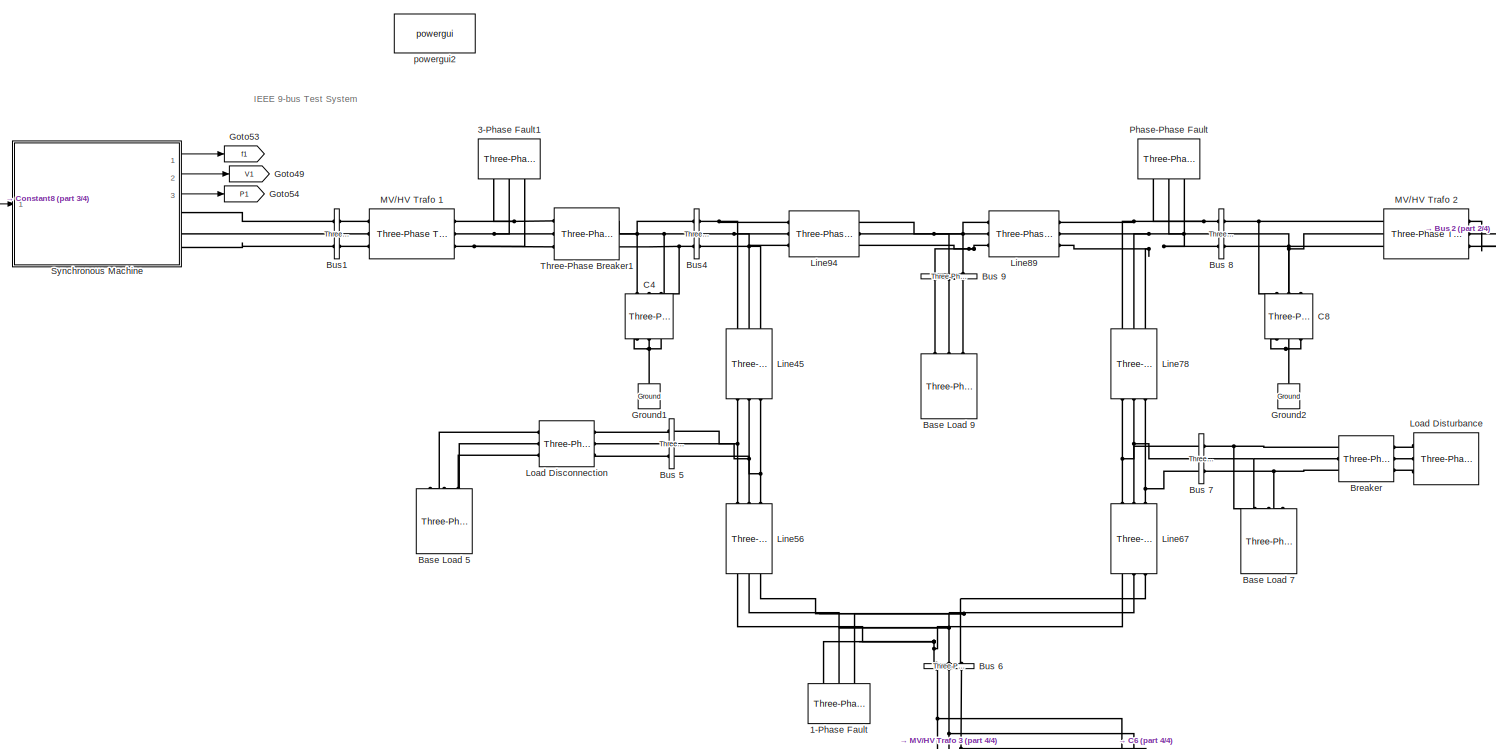
[diagram: root canvas - part 1/4, top left region]
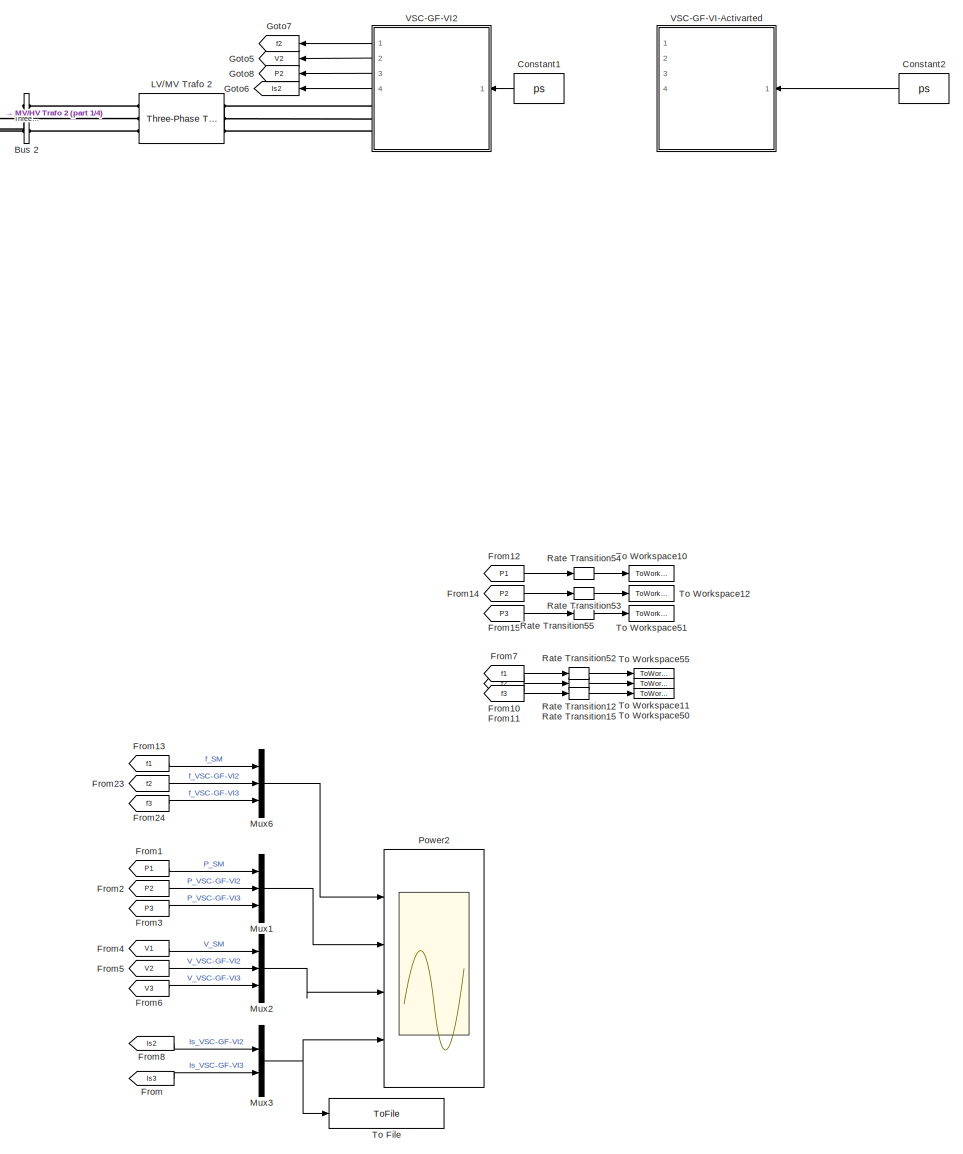
[diagram: root canvas - part 2/4, right side, full height]
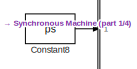
[diagram: root canvas - part 3/4, top left region]
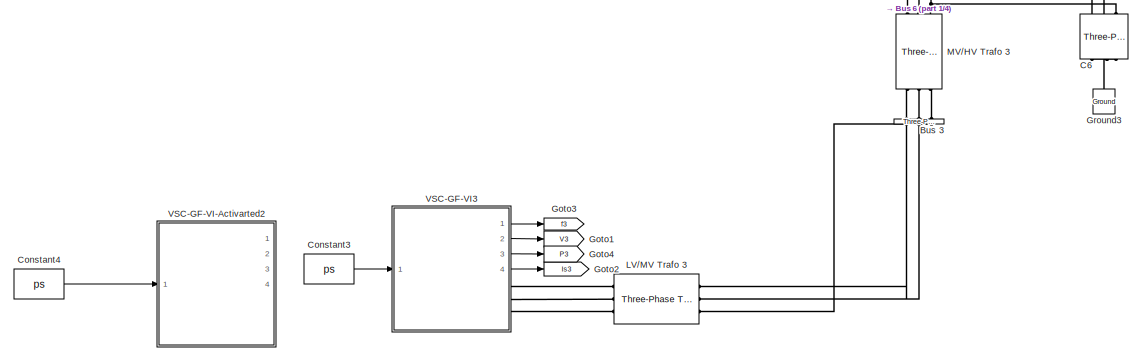
[diagram: root canvas - part 4/4, bottom left region]
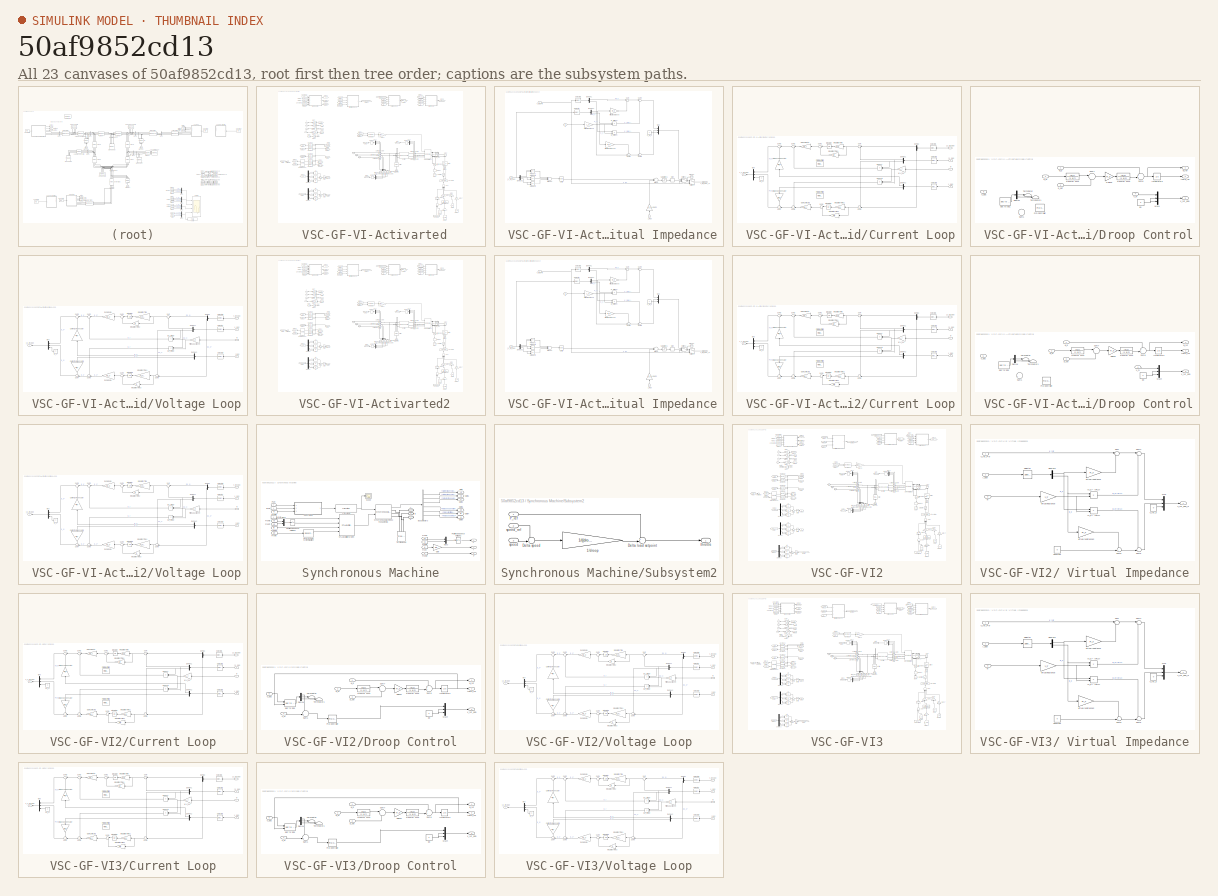
[diagram: thumbnail index - all 23 canvases of the model, root first then tree order]
MODEL slx_50af9852cd13
KIND model
CONFIG AbsTol = auto
CONFIG EnableMultiTasking = off
CONFIG FixedStep = auto
CONFIG MaxStep = auto
CONFIG MinStep = auto
CONFIG RelTol = 1e-3
CONFIG SampleTimeConstraint = Unconstrained
CONFIG Solver = VariableStepAuto
CONFIG SolverName = VariableStepAuto
CONFIG StartTime = 0.0
CONFIG StopTime = Tend
BLOCK [SubSystem]  VSC-GF-VI-Activarted
  Ports = [1, 4, 0, 0, 0, 0, 3]
  RequestExecContextInheritance = off
BLOCK [SubSystem]  VSC-GF-VI-Activarted/ Virtual Impedance
  Ports = [4, 1]
  RequestExecContextInheritance = off
BLOCK [Clock]  VSC-GF-VI-Activarted/ Virtual Impedance/Clock4
  Decimation = 5
BLOCK [Demux]  VSC-GF-VI-Activarted/ Virtual Impedance/Demux1
  DisplayOption = bar
  Outputs = 2
  Ports = [1, 2]
BLOCK [Demux]  VSC-GF-VI-Activarted/ Virtual Impedance/Demux2
  DisplayOption = bar
  Outputs = 3
  Ports = [1, 3]
BLOCK [Demux]  VSC-GF-VI-Activarted/ Virtual Impedance/Demux4
  DisplayOption = bar
  Outputs = 2
  Ports = [1, 2]
BLOCK [Gain]  VSC-GF-VI-Activarted/ Virtual Impedance/Gain3
  Gain = I_b_LV
  OutDataTypeStr = Inherit: Inherit via internal rule
  ParamDataTypeStr = Inherit: Inherit via internal rule
  SaturateOnIntegerOverflow = off
BLOCK [Product]  VSC-GF-VI-Activarted/ Virtual Impedance/Io_d * (w*Lv) 
  InputSameDT = off
  OutDataTypeStr = Inherit: Inherit via internal rule
  Ports = [2, 1]
  SaturateOnIntegerOverflow = off
BLOCK [Product]  VSC-GF-VI-Activarted/ Virtual Impedance/Io_q * (w*Lv) 
  InputSameDT = off
  OutDataTypeStr = Inherit: Inherit via internal rule
  Ports = [2, 1]
  SaturateOnIntegerOverflow = off
BLOCK [Sum]  VSC-GF-VI-Activarted/ Virtual Impedance/Minus
  InputSameDT = off
  Inputs = +-
  OutDataTypeStr = Inherit: Inherit via internal rule
  Ports = [2, 1]
  SaturateOnIntegerOverflow = off
BLOCK [Sum]  VSC-GF-VI-Activarted/ Virtual Impedance/Minus4
  InputSameDT = off
  Inputs = +++
  OutDataTypeStr = Inherit: Inherit via internal rule
  Ports = [3, 1]
  SaturateOnIntegerOverflow = off
BLOCK [Mux]  VSC-GF-VI-Activarted/ Virtual Impedance/Mux
  DisplayOption = bar
  Inputs = 3
  Ports = [3, 1]
BLOCK [Product]  VSC-GF-VI-Activarted/ Virtual Impedance/Product
  InputSameDT = off
  OutDataTypeStr = Inherit: Inherit via internal rule
  Ports = [2, 1]
  SaturateOnIntegerOverflow = off
BLOCK [Product]  VSC-GF-VI-Activarted/ Virtual Impedance/Product1
  InputSameDT = off
  OutDataTypeStr = Inherit: Inherit via internal rule
  Ports = [2, 1]
  SaturateOnIntegerOverflow = off
BLOCK [Product]  VSC-GF-VI-Activarted/ Virtual Impedance/Product7
  InputSameDT = off
  OutDataTypeStr = Inherit: Inherit via internal rule
  Ports = [2, 1]
  SaturateOnIntegerOverflow = off
BLOCK [Saturate]  VSC-GF-VI-Activarted/ Virtual Impedance/Saturation1
  InputPortMap = u0
  LowerLimit = 0
  Ports = [1, 1]
  UpperLimit = inf
BLOCK [Selector]  VSC-GF-VI-Activarted/ Virtual Impedance/Selector
  IndexOptions = Index vector (dialog)
  Indices = [1 2]
  InputPortWidth = 3
  OutputSizes = 1
  Ports = [1, 1]
BLOCK [Selector]  VSC-GF-VI-Activarted/ Virtual Impedance/Selector1
  IndexOptions = Index vector (dialog)
  Indices = [1 2]
  InputPortWidth = 3
  OutputSizes = 1
  Ports = [1, 1]
BLOCK [Signum]  VSC-GF-VI-Activarted/ Virtual Impedance/Sign
BLOCK [Sqrt]  VSC-GF-VI-Activarted/ Virtual Impedance/Sqrt1
BLOCK [Sum]  VSC-GF-VI-Activarted/ Virtual Impedance/Sum
  IconShape = round
  InputSameDT = off
  Inputs = |+-
  OutDataTypeStr = Inherit: Inherit via internal rule
  Ports = [2, 1]
  SaturateOnIntegerOverflow = off
BLOCK [Sum]  VSC-GF-VI-Activarted/ Virtual Impedance/Sum4
  IconShape = round
  InputSameDT = off
  Inputs = |++
  OutDataTypeStr = Inherit: Inherit via internal rule
  Ports = [2, 1]
  SaturateOnIntegerOverflow = off
BLOCK [Sum]  VSC-GF-VI-Activarted/ Virtual Impedance/Sum5
  IconShape = round
  InputSameDT = off
  Inputs = -+|
  OutDataTypeStr = Inherit: Inherit via internal rule
  Ports = [2, 1]
  SaturateOnIntegerOverflow = off
BLOCK [Sum]  VSC-GF-VI-Activarted/ Virtual Impedance/Sum6
  IconShape = round
  InputSameDT = off
  Inputs = -+|
  OutDataTypeStr = Inherit: Inherit via internal rule
  Ports = [2, 1]
  SaturateOnIntegerOverflow = off
BLOCK [Switch]  VSC-GF-VI-Activarted/ Virtual Impedance/Switch1
  Criteria = u2 > Threshold
  InputSameDT = off
  SaturateOnIntegerOverflow = off
BLOCK [Switch]  VSC-GF-VI-Activarted/ Virtual Impedance/Switch4
  Criteria = u2 > Threshold
  InputSameDT = off
  SaturateOnIntegerOverflow = off
  Threshold = 12
BLOCK [Constant]  VSC-GF-VI-Activarted/ Virtual Impedance/V_ref_0
  Value = 0
BLOCK [Inport]  VSC-GF-VI-Activarted/ Virtual Impedance/V_ref_P-w 
  IconDisplay = Port number
BLOCK [Outport]  VSC-GF-VI-Activarted/ Virtual Impedance/V_ref_dq0_VI
  IconDisplay = Port number
BLOCK [Gain]  VSC-GF-VI-Activarted/ Virtual Impedance/Virtual indutance
  Gain = L_v
  OutDataTypeStr = Inherit: Inherit via internal rule
  ParamDataTypeStr = Inherit: Inherit via internal rule
  SaturateOnIntegerOverflow = off
BLOCK [Gain]  VSC-GF-VI-Activarted/ Virtual Impedance/Virtual resistance
  Gain = R_v
  OutDataTypeStr = Inherit: Inherit via internal rule
  ParamDataTypeStr = Inherit: Inherit via internal rule
  SaturateOnIntegerOverflow = off
BLOCK [Gain]  VSC-GF-VI-Activarted/ Virtual Impedance/Virtual resistance2 
  Gain = R_v
  OutDataTypeStr = Inherit: Inherit via internal rule
  ParamDataTypeStr = Inherit: Inherit via internal rule
  SaturateOnIntegerOverflow = off
BLOCK [Inport]  VSC-GF-VI-Activarted/ Virtual Impedance/i_max
  IconDisplay = Port number
  Port = 4
BLOCK [Inport]  VSC-GF-VI-Activarted/ Virtual Impedance/i_s_ref_dq0
  IconDisplay = Port number
  Port = 3
BLOCK [Inport]  VSC-GF-VI-Activarted/ Virtual Impedance/w
  IconDisplay = Port number
  Port = 2
BLOCK [PMIOPort]  VSC-GF-VI-Activarted/A
  Port = 3
  Side = Right
BLOCK [Sum]  VSC-GF-VI-Activarted/Add4
  InputSameDT = off
  Inputs = ++++
  OutDataTypeStr = Inherit: Inherit via internal rule
  Ports = [4, 1]
  SaturateOnIntegerOverflow = off
BLOCK [Sum]  VSC-GF-VI-Activarted/Add6
  InputSameDT = off
  Inputs = +-
  OutDataTypeStr = Inherit: Inherit via internal rule
  Ports = [2, 1]
  SaturateOnIntegerOverflow = off
BLOCK [PMIOPort]  VSC-GF-VI-Activarted/B
  Port = 2
  Side = Right
BLOCK [PMIOPort]  VSC-GF-VI-Activarted/C
  Side = Right
BLOCK [Reference]  VSC-GF-VI-Activarted/C Filter  REF=powerlib/Elements/Three-Phase
Parallel RLC Branch
  AttributesFormatString = \n
  Ports = [0, 0, 0, 0, 0, 3, 3]
  SourceBlock = powerlib/Elements/Three-Phase\nParallel RLC Branch
  SourceProductBaseCode = PS
  SourceProductName = Simscape Electrical
  SourceType = Three-Phase Parallel RLC Branch
BLOCK [Reference]  VSC-GF-VI-Activarted/C_dc1  REF=powerlib/Elements/Series RLC Branch
  Ports = [0, 0, 0, 0, 0, 1, 1]
  SourceBlock = powerlib/Elements/Series RLC Branch
  SourceProductBaseCode = PS
  SourceProductName = Simscape Electrical
  SourceType = Series RLC Branch
BLOCK [Clock]  VSC-GF-VI-Activarted/Clock
BLOCK [Constant]  VSC-GF-VI-Activarted/Constant1
  Value = Vdc_n
BLOCK [Constant]  VSC-GF-VI-Activarted/Constant11
  Value = w_ref
BLOCK [Constant]  VSC-GF-VI-Activarted/Constant4
  Value = I_threshold
BLOCK [Constant]  VSC-GF-VI-Activarted/Constant9
  Value = V_m
BLOCK [SubSystem]  VSC-GF-VI-Activarted/Current Loop
  Ports = [4, 1]
  RequestExecContextInheritance = off
BLOCK [Demux]  VSC-GF-VI-Activarted/Current Loop/Demux
  DisplayOption = bar
  Outputs = 2
  Ports = [1, 2]
BLOCK [Demux]  VSC-GF-VI-Activarted/Current Loop/Demux1
  DisplayOption = bar
  Outputs = 2
  Ports = [1, 2]
BLOCK [Demux]  VSC-GF-VI-Activarted/Current Loop/Demux2
  DisplayOption = bar
  Outputs = 2
  Ports = [1, 2]
BLOCK [Reference]  VSC-GF-VI-Activarted/Current Loop/First-Order Filter2  REF=powerlib_meascontrol/Filters/First-Order
Filter
  Commented = on
  Ports = [1, 1]
  SourceBlock = powerlib_meascontrol/Filters/First-Order\nFilter
  SourceProductBaseCode = PS
  SourceProductName = Simscape Electrical
  SourceType = First-Order Filter
BLOCK [Reference]  VSC-GF-VI-Activarted/Current Loop/First-Order Filter3  REF=powerlib_meascontrol/Filters/First-Order
Filter
  Commented = on
  Ports = [1, 1]
  SourceBlock = powerlib_meascontrol/Filters/First-Order\nFilter
  SourceProductBaseCode = PS
  SourceProductName = Simscape Electrical
  SourceType = First-Order Filter
BLOCK [Gain]  VSC-GF-VI-Activarted/Current Loop/Gain Corrector
  Gain = Kp_i
  OutDataTypeStr = Inherit: Inherit via internal rule
  ParamDataTypeStr = Inherit: Inherit via internal rule
  SaturateOnIntegerOverflow = off
BLOCK [Gain]  VSC-GF-VI-Activarted/Current Loop/Gain Corrector1
  Gain = Kp_i
  OutDataTypeStr = Inherit: Inherit via internal rule
  ParamDataTypeStr = Inherit: Inherit via internal rule
  SaturateOnIntegerOverflow = off
BLOCK [Gain]  VSC-GF-VI-Activarted/Current Loop/Integration Time
  Gain = Ki_i / Kp_i
  OutDataTypeStr = Inherit: Inherit via internal rule
  ParamDataTypeStr = Inherit: Inherit via internal rule
  SaturateOnIntegerOverflow = off
BLOCK [Gain]  VSC-GF-VI-Activarted/Current Loop/Integration Time 1
  Gain = Ki_i / Kp_i
  OutDataTypeStr = Inherit: Inherit via internal rule
  ParamDataTypeStr = Inherit: Inherit via internal rule
  SaturateOnIntegerOverflow = off
BLOCK [Gain]  VSC-GF-VI-Activarted/Current Loop/Integration Time1
  Gain = 1/n
  OutDataTypeStr = Inherit: Inherit via internal rule
  ParamDataTypeStr = Inherit: Inherit via internal rule
  SaturateOnIntegerOverflow = off
BLOCK [Gain]  VSC-GF-VI-Activarted/Current Loop/Integration Time2
  Gain = 1/n
  OutDataTypeStr = Inherit: Inherit via internal rule
  ParamDataTypeStr = Inherit: Inherit via internal rule
  SaturateOnIntegerOverflow = off
BLOCK [Integrator]  VSC-GF-VI-Activarted/Current Loop/Integrator
  InitialCondition = 0.0001
  Ports = [1, 1]
BLOCK [Integrator]  VSC-GF-VI-Activarted/Current Loop/Integrator 1
  Ports = [1, 1]
BLOCK [Mux]  VSC-GF-VI-Activarted/Current Loop/Mux
  DisplayOption = bar
  Inputs = 3
  Ports = [3, 1]
BLOCK [Product]  VSC-GF-VI-Activarted/Current Loop/Product
  InputSameDT = off
  OutDataTypeStr = Inherit: Inherit via internal rule
  Ports = [2, 1]
  SaturateOnIntegerOverflow = off
BLOCK [Product]  VSC-GF-VI-Activarted/Current Loop/Product1
  InputSameDT = off
  OutDataTypeStr = Inherit: Inherit via internal rule
  Ports = [2, 1]
  SaturateOnIntegerOverflow = off
BLOCK [Selector]  VSC-GF-VI-Activarted/Current Loop/Selector1
  IndexOptions = Index vector (dialog)
  Indices = [1 2]
  InputPortWidth = 3
  OutputSizes = 1
  Ports = [1, 1]
BLOCK [Selector]  VSC-GF-VI-Activarted/Current Loop/Selector2
  IndexOptions = Index vector (dialog)
  Indices = [1 2]
  InputPortWidth = 3
  OutputSizes = 1
  Ports = [1, 1]
BLOCK [Selector]  VSC-GF-VI-Activarted/Current Loop/Selector3
  IndexOptions = Index vector (dialog)
  Indices = [1 2]
  InputPortWidth = 3
  OutputSizes = 1
  Ports = [1, 1]
BLOCK [Sum]  VSC-GF-VI-Activarted/Current Loop/Sum
  IconShape = round
  InputSameDT = off
  Inputs = |+-
  OutDataTypeStr = Inherit: Inherit via internal rule
  Ports = [2, 1]
  SaturateOnIntegerOverflow = off
BLOCK [Sum]  VSC-GF-VI-Activarted/Current Loop/Sum1
  IconShape = round
  InputSameDT = off
  Inputs = |++
  OutDataTypeStr = Inherit: Inherit via internal rule
  Ports = [2, 1]
  SaturateOnIntegerOverflow = off
BLOCK [Sum]  VSC-GF-VI-Activarted/Current Loop/Sum2
  IconShape = round
  InputSameDT = off
  Inputs = |+-
  OutDataTypeStr = Inherit: Inherit via internal rule
  Ports = [2, 1]
  SaturateOnIntegerOverflow = off
BLOCK [Sum]  VSC-GF-VI-Activarted/Current Loop/Sum3
  IconShape = round
  InputSameDT = off
  Inputs = |++
  OutDataTypeStr = Inherit: Inherit via internal rule
  Ports = [2, 1]
  SaturateOnIntegerOverflow = off
BLOCK [Sum]  VSC-GF-VI-Activarted/Current Loop/Sum4
  IconShape = round
  InputSameDT = off
  Inputs = |++
  OutDataTypeStr = Inherit: Inherit via internal rule
  Ports = [2, 1]
  SaturateOnIntegerOverflow = off
BLOCK [Sum]  VSC-GF-VI-Activarted/Current Loop/Sum5
  IconShape = round
  InputSameDT = off
  Inputs = ++|
  OutDataTypeStr = Inherit: Inherit via internal rule
  Ports = [2, 1]
  SaturateOnIntegerOverflow = off
BLOCK [Sum]  VSC-GF-VI-Activarted/Current Loop/Sum6
  IconShape = round
  InputSameDT = off
  Inputs = -+|
  OutDataTypeStr = Inherit: Inherit via internal rule
  Ports = [2, 1]
  SaturateOnIntegerOverflow = off
BLOCK [Sum]  VSC-GF-VI-Activarted/Current Loop/Sum7
  IconShape = round
  InputSameDT = off
  Inputs = ++|
  OutDataTypeStr = Inherit: Inherit via internal rule
  Ports = [2, 1]
  SaturateOnIntegerOverflow = off
BLOCK [Constant]  VSC-GF-VI-Activarted/Current Loop/Vm_0*
  Value = 0
BLOCK [Gain]  VSC-GF-VI-Activarted/Current Loop/Voltage Compensator 1
  Gain = Kff_v
  OutDataTypeStr = Inherit: Inherit via internal rule
  ParamDataTypeStr = Inherit: Inherit via internal rule
  SaturateOnIntegerOverflow = off
BLOCK [Gain]  VSC-GF-VI-Activarted/Current Loop/Voltage compensator
  Gain = Kff_v
  OutDataTypeStr = Inherit: Inherit via internal rule
  ParamDataTypeStr = Inherit: Inherit via internal rule
  SaturateOnIntegerOverflow = off
BLOCK [Inport]  VSC-GF-VI-Activarted/Current Loop/i_s_dq0
  IconDisplay = Port number
  Port = 3
BLOCK [Inport]  VSC-GF-VI-Activarted/Current Loop/i_s_ref_dq0
  IconDisplay = Port number
BLOCK [Inport]  VSC-GF-VI-Activarted/Current Loop/v_dq0
  IconDisplay = Port number
  Port = 2
BLOCK [Outport]  VSC-GF-VI-Activarted/Current Loop/v_s_ref_dq0
  IconDisplay = Port number
  VectorParamsAs1DForOutWhenUnconnected = off
BLOCK [Inport]  VSC-GF-VI-Activarted/Current Loop/w
  IconDisplay = Port number
  Port = 4
BLOCK [Gain]  VSC-GF-VI-Activarted/Current Loop/w*Lf_pu
  Gain = L_f
  OutDataTypeStr = Inherit: Inherit via internal rule
  ParamDataTypeStr = Inherit: Inherit via internal rule
  SaturateOnIntegerOverflow = off
BLOCK [Reference]  VSC-GF-VI-Activarted/Current Measurement1  REF=powerlib/Measurements/Current Measurement
  Ports = [0, 1, 0, 0, 0, 1, 1]
  SourceBlock = powerlib/Measurements/Current Measurement
  SourceProductBaseCode = PS
  SourceProductName = Simscape Electrical
  SourceType = Current Measurement
  UserDataPersistent = on
BLOCK [Reference]  VSC-GF-VI-Activarted/Current Measurement2  REF=powerlib/Measurements/Current Measurement
  Ports = [0, 1, 0, 0, 0, 1, 1]
  SourceBlock = powerlib/Measurements/Current Measurement
  SourceProductBaseCode = PS
  SourceProductName = Simscape Electrical
  SourceType = Current Measurement
  UserDataPersistent = on
BLOCK [Reference]  VSC-GF-VI-Activarted/Current Measurement3  REF=powerlib/Measurements/Current Measurement
  Ports = [0, 1, 0, 0, 0, 1, 1]
  SourceBlock = powerlib/Measurements/Current Measurement
  SourceProductBaseCode = PS
  SourceProductName = Simscape Electrical
  SourceType = Current Measurement
  UserDataPersistent = on
BLOCK [Reference]  VSC-GF-VI-Activarted/Current Measurement4  REF=powerlib/Measurements/Current Measurement
  Ports = [0, 1, 0, 0, 0, 1, 1]
  SourceBlock = powerlib/Measurements/Current Measurement
  SourceProductBaseCode = PS
  SourceProductName = Simscape Electrical
  SourceType = Current Measurement
  UserDataPersistent = on
BLOCK [Reference]  VSC-GF-VI-Activarted/Current Measurement5  REF=powerlib/Measurements/Current Measurement
  Ports = [0, 1, 0, 0, 0, 1, 1]
  SourceBlock = powerlib/Measurements/Current Measurement
  SourceProductBaseCode = PS
  SourceProductName = Simscape Electrical
  SourceType = Current Measurement
  UserDataPersistent = on
BLOCK [Reference]  VSC-GF-VI-Activarted/Current Measurement6  REF=powerlib/Measurements/Current Measurement
  Ports = [0, 1, 0, 0, 0, 1, 1]
  SourceBlock = powerlib/Measurements/Current Measurement
  SourceProductBaseCode = PS
  SourceProductName = Simscape Electrical
  SourceType = Current Measurement
  UserDataPersistent = on
BLOCK [Demux]  VSC-GF-VI-Activarted/Demux1
  DisplayOption = bar
  Outputs = 3
  Ports = [1, 3]
BLOCK [Demux]  VSC-GF-VI-Activarted/Demux2
  DisplayOption = bar
  Outputs = 3
  Ports = [1, 3]
BLOCK [SubSystem]  VSC-GF-VI-Activarted/Droop Control
  Ports = [5, 3]
  RequestExecContextInheritance = off
BLOCK [Demux]  VSC-GF-VI-Activarted/Droop Control/Demux
  DisplayOption = bar
  Outputs = 3
  Ports = [1, 3]
BLOCK [Gain]  VSC-GF-VI-Activarted/Droop Control/Gain20
  Gain = m_p
  OutDataTypeStr = Inherit: Inherit via internal rule
  ParamDataTypeStr = Inherit: Inherit via internal rule
  SaturateOnIntegerOverflow = off
BLOCK [Integrator]  VSC-GF-VI-Activarted/Droop Control/Integrator3
  Ports = [1, 1]
BLOCK [Mux]  VSC-GF-VI-Activarted/Droop Control/Mux4
  DisplayOption = bar
  Inputs = 3
  Ports = [3, 1]
BLOCK [Reference]  VSC-GF-VI-Activarted/Droop Control/PID Controller  REF=simulink/Continuous/PID Controller
  Ports = [1, 1]
  SourceBlock = simulink/Continuous/PID Controller
  SourceProductBaseCode = SL
  SourceProductName = Simulink
  SourceType = PID 1dof
BLOCK [Sum]  VSC-GF-VI-Activarted/Droop Control/Sum1
  IconShape = round
  InputSameDT = off
  Inputs = -+|
  OutDataTypeStr = Inherit: Inherit via internal rule
  Ports = [2, 1]
  SaturateOnIntegerOverflow = off
BLOCK [Sum]  VSC-GF-VI-Activarted/Droop Control/Sum7
  IconShape = round
  InputSameDT = off
  Inputs = |-+
  OutDataTypeStr = Inherit: Inherit via internal rule
  Ports = [2, 1]
  SaturateOnIntegerOverflow = off
BLOCK [Sum]  VSC-GF-VI-Activarted/Droop Control/Sum8
  IconShape = round
  InputSameDT = off
  Inputs = ++|
  OutDataTypeStr = Inherit: Inherit via internal rule
  Ports = [2, 1]
  SaturateOnIntegerOverflow = off
BLOCK [Terminator]  VSC-GF-VI-Activarted/Droop Control/Terminator
BLOCK [Terminator]  VSC-GF-VI-Activarted/Droop Control/Terminator1
BLOCK [TransferFcn]  VSC-GF-VI-Activarted/Droop Control/Transfer Fcn1
  Denominator = [1 w_f]
  Numerator = [w_f]
BLOCK [TransferFcn]  VSC-GF-VI-Activarted/Droop Control/Transfer Fcn2
  Denominator = [1 w_c]
  Numerator = [w_c]
BLOCK [Inport]  VSC-GF-VI-Activarted/Droop Control/V_abc
  IconDisplay = Port number
  Port = 5
BLOCK [Reference]  VSC-GF-VI-Activarted/Droop Control/abc to dq1  REF=powerlib_meascontrol/Transformations/abc to dq0
  Ports = [2, 1]
  SourceBlock = powerlib_meascontrol/Transformations/abc to dq0
  SourceProductBaseCode = PS
  SourceProductName = Simscape Electrical
  SourceType = abc to dq0 Transformation
BLOCK [Inport]  VSC-GF-VI-Activarted/Droop Control/p_m
  IconDisplay = Port number
  Port = 2
BLOCK [Inport]  VSC-GF-VI-Activarted/Droop Control/p_set
  IconDisplay = Port number
  Port = 3
BLOCK [Constant]  VSC-GF-VI-Activarted/Droop Control/q0
  Value = 0
BLOCK [Outport]  VSC-GF-VI-Activarted/Droop Control/theta_ref
  IconDisplay = Port number
  Port = 2
  VectorParamsAs1DForOutWhenUnconnected = off
BLOCK [Inport]  VSC-GF-VI-Activarted/Droop Control/v_m
  IconDisplay = Port number
  Port = 4
BLOCK [Outport]  VSC-GF-VI-Activarted/Droop Control/v_ref_dq0
  IconDisplay = Port number
  Port = 3
  VectorParamsAs1DForOutWhenUnconnected = off
BLOCK [Inport]  VSC-GF-VI-Activarted/Droop Control/w_b
  IconDisplay = Port number
BLOCK [Outport]  VSC-GF-VI-Activarted/Droop Control/w_ref
  IconDisplay = Port number
  VectorParamsAs1DForOutWhenUnconnected = off
BLOCK [From]  VSC-GF-VI-Activarted/From
  GotoTag = V
BLOCK [From]  VSC-GF-VI-Activarted/From1
  GotoTag = w
BLOCK [From]  VSC-GF-VI-Activarted/From10
  GotoTag = Is
BLOCK [From]  VSC-GF-VI-Activarted/From11
  GotoTag = P_abc
BLOCK [From]  VSC-GF-VI-Activarted/From12
  GotoTag = I_dq0_s_ref
BLOCK [From]  VSC-GF-VI-Activarted/From15
  GotoTag = I_dq0
BLOCK [From]  VSC-GF-VI-Activarted/From16
  GotoTag = w
BLOCK [From]  VSC-GF-VI-Activarted/From17
  GotoTag = V_ref_dq0_VI
BLOCK [From]  VSC-GF-VI-Activarted/From19
  GotoTag = Iabc_pcc
BLOCK [From]  VSC-GF-VI-Activarted/From2
  GotoTag = Iabc_s
BLOCK [From]  VSC-GF-VI-Activarted/From20
  GotoTag = V_dq0
BLOCK [From]  VSC-GF-VI-Activarted/From22
  GotoTag = Vabc_pcc
BLOCK [From]  VSC-GF-VI-Activarted/From3
  GotoTag = Q_abc
BLOCK [From]  VSC-GF-VI-Activarted/From31
  GotoTag = V_dq0_s_ref
BLOCK [From]  VSC-GF-VI-Activarted/From32
  GotoTag = theta
BLOCK [From]  VSC-GF-VI-Activarted/From4
  GotoTag = Vabc_pcc
BLOCK [From]  VSC-GF-VI-Activarted/From41
  GotoTag = I_dq0
BLOCK [From]  VSC-GF-VI-Activarted/From43
  GotoTag = w
BLOCK [From]  VSC-GF-VI-Activarted/From44
  GotoTag = V_dq0
BLOCK [From]  VSC-GF-VI-Activarted/From45
  GotoTag = w
BLOCK [From]  VSC-GF-VI-Activarted/From46
  GotoTag = V_dq0
BLOCK [From]  VSC-GF-VI-Activarted/From47
  GotoTag = I_dq0_s
BLOCK [From]  VSC-GF-VI-Activarted/From5
  GotoTag = P_ref
BLOCK [From]  VSC-GF-VI-Activarted/From52
  GotoTag = Vabc_pcc
BLOCK [From]  VSC-GF-VI-Activarted/From53
  GotoTag = P_ref
BLOCK [From]  VSC-GF-VI-Activarted/From55
  GotoTag = P_abc
BLOCK [From]  VSC-GF-VI-Activarted/From6
  GotoTag = Iabc_pcc
BLOCK [From]  VSC-GF-VI-Activarted/From61
  GotoTag = P_abc
BLOCK [From]  VSC-GF-VI-Activarted/From62
  GotoTag = v_dc
BLOCK [From]  VSC-GF-VI-Activarted/From63
  GotoTag = v_dc
BLOCK [From]  VSC-GF-VI-Activarted/From7
  GotoTag = v_ref_dq0
BLOCK [From]  VSC-GF-VI-Activarted/From8
  GotoTag = I_dq0_s_ref
BLOCK [From]  VSC-GF-VI-Activarted/From9
  GotoTag = theta
BLOCK [Reference]  VSC-GF-VI-Activarted/G_dc1  REF=powerlib/Elements/Series RLC Branch
  Ports = [0, 0, 0, 0, 0, 1, 1]
  SourceBlock = powerlib/Elements/Series RLC Branch
  SourceProductBaseCode = PS
  SourceProductName = Simscape Electrical
  SourceType = Series RLC Branch
BLOCK [Gain]  VSC-GF-VI-Activarted/Gain1
  Gain = 1/I_b_LV
  OutDataTypeStr = Inherit: Inherit via internal rule
  ParamDataTypeStr = Inherit: Inherit via internal rule
  SaturateOnIntegerOverflow = off
BLOCK [Gain]  VSC-GF-VI-Activarted/Gain12
  Gain = 1/(2*pi)
  OutDataTypeStr = Inherit: Inherit via internal rule
  ParamDataTypeStr = Inherit: Inherit via internal rule
  SaturateOnIntegerOverflow = off
BLOCK [Gain]  VSC-GF-VI-Activarted/Gain13
  Gain = K_p
  OutDataTypeStr = Inherit: Inherit via internal rule
  ParamDataTypeStr = Inherit: Inherit via internal rule
  SaturateOnIntegerOverflow = off
BLOCK [Gain]  VSC-GF-VI-Activarted/Gain16
  Gain = k_dc
  OutDataTypeStr = Inherit: Inherit via internal rule
  ParamDataTypeStr = Inherit: Inherit via internal rule
  SaturateOnIntegerOverflow = off
BLOCK [Gain]  VSC-GF-VI-Activarted/Gain17
  Gain = K_r
  OutDataTypeStr = Inherit: Inherit via internal rule
  ParamDataTypeStr = Inherit: Inherit via internal rule
  SaturateOnIntegerOverflow = off
BLOCK [Gain]  VSC-GF-VI-Activarted/Gain19
  Gain = 2/(Vdc_n)
  OutDataTypeStr = Inherit: Inherit via internal rule
  ParamDataTypeStr = Inherit: Inherit via internal rule
  SaturateOnIntegerOverflow = off
BLOCK [Gain]  VSC-GF-VI-Activarted/Gain2
  Gain = S_b
  OutDataTypeStr = Inherit: Inherit via internal rule
  ParamDataTypeStr = Inherit: Inherit via internal rule
  SaturateOnIntegerOverflow = off
BLOCK [Gain]  VSC-GF-VI-Activarted/Gain4
  Gain = 1/V_m
  OutDataTypeStr = Inherit: Inherit via internal rule
  ParamDataTypeStr = Inherit: Inherit via internal rule
  SaturateOnIntegerOverflow = off
BLOCK [Gain]  VSC-GF-VI-Activarted/Gain5
  Gain = K_p
  OutDataTypeStr = Inherit: Inherit via internal rule
  ParamDataTypeStr = Inherit: Inherit via internal rule
  SaturateOnIntegerOverflow = off
BLOCK [Gain]  VSC-GF-VI-Activarted/Gain6
  Gain = -1
  OutDataTypeStr = Inherit: Inherit via internal rule
  ParamDataTypeStr = Inherit: Inherit via internal rule
  SaturateOnIntegerOverflow = off
BLOCK [Gain]  VSC-GF-VI-Activarted/Gain7
  Gain = 1/S_b
  OutDataTypeStr = Inherit: Inherit via internal rule
  ParamDataTypeStr = Inherit: Inherit via internal rule
  SaturateOnIntegerOverflow = off
BLOCK [Goto]  VSC-GF-VI-Activarted/Goto
  GotoTag = Iabc_s
BLOCK [Goto]  VSC-GF-VI-Activarted/Goto1
  GotoTag = Is
BLOCK [Goto]  VSC-GF-VI-Activarted/Goto10
  GotoTag = V_ref_dq0_VI
BLOCK [Goto]  VSC-GF-VI-Activarted/Goto11
  GotoTag = I_dq0_s
BLOCK [Goto]  VSC-GF-VI-Activarted/Goto12
  GotoTag = Q_abc
BLOCK [Goto]  VSC-GF-VI-Activarted/Goto16
  GotoTag = V_dq0
BLOCK [Goto]  VSC-GF-VI-Activarted/Goto2
  GotoTag = Iabc_pcc
BLOCK [Goto]  VSC-GF-VI-Activarted/Goto20
  GotoTag = V
BLOCK [Goto]  VSC-GF-VI-Activarted/Goto28
  GotoTag = V_dq0_s_ref
BLOCK [Goto]  VSC-GF-VI-Activarted/Goto3
  GotoTag = Vabc_pcc
BLOCK [Goto]  VSC-GF-VI-Activarted/Goto4
  GotoTag = v_dc
BLOCK [Goto]  VSC-GF-VI-Activarted/Goto5
  GotoTag = I_dq0_s_ref
BLOCK [Goto]  VSC-GF-VI-Activarted/Goto6
  GotoTag = I_dq0
BLOCK [Goto]  VSC-GF-VI-Activarted/Goto63
  GotoTag = v_ref_dq0
BLOCK [Goto]  VSC-GF-VI-Activarted/Goto64
  GotoTag = theta
BLOCK [Goto]  VSC-GF-VI-Activarted/Goto65
  GotoTag = w
BLOCK [Goto]  VSC-GF-VI-Activarted/Goto7
  GotoTag = P_ref
BLOCK [Goto]  VSC-GF-VI-Activarted/Goto8
  GotoTag = P_abc
BLOCK [Reference]  VSC-GF-VI-Activarted/Ground1  REF=powerlib/Elements/Ground
  Ports = [0, 0, 0, 0, 0, 1]
  SourceBlock = powerlib/Elements/Ground
  SourceProductBaseCode = PS
  SourceProductName = Simscape Electrical
  SourceType = Ground
BLOCK [Reference]  VSC-GF-VI-Activarted/Ground2  REF=powerlib/Elements/Ground
  Ports = [0, 0, 0, 0, 0, 1]
  SourceBlock = powerlib/Elements/Ground
  SourceProductBaseCode = PS
  SourceProductName = Simscape Electrical
  SourceType = Ground
BLOCK [Outport]  VSC-GF-VI-Activarted/I_s
  IconDisplay = Port number
  Port = 4
  VectorParamsAs1DForOutWhenUnconnected = off
BLOCK [Reference]  VSC-GF-VI-Activarted/LTI System3  REF=cstblocks/LTI System
  Ports = [1, 1]
  SourceBlock = cstblocks/LTI System
  SourceProductBaseCode = CT
  SourceProductName = Control System Toolbox
  SourceType = LTI Block
BLOCK [Memory]  VSC-GF-VI-Activarted/Memory1
BLOCK [Memory]  VSC-GF-VI-Activarted/Memory2
BLOCK [Memory]  VSC-GF-VI-Activarted/Memory3
BLOCK [Memory]  VSC-GF-VI-Activarted/Memory4
BLOCK [Mux]  VSC-GF-VI-Activarted/Mux2
  DisplayOption = bar
  Inputs = 3
  Ports = [3, 1]
BLOCK [Mux]  VSC-GF-VI-Activarted/Mux3
  DisplayOption = bar
  Inputs = 3
  Ports = [3, 1]
BLOCK [Mux]  VSC-GF-VI-Activarted/Mux4
  DisplayOption = bar
  Inputs = 3
  Ports = [3, 1]
BLOCK [Outport]  VSC-GF-VI-Activarted/P
  IconDisplay = Port number
  Port = 3
  VectorParamsAs1DForOutWhenUnconnected = off
BLOCK [Reference]  VSC-GF-VI-Activarted/Power (dq0, Instantaneous)  REF=powerlib_meascontrol/Measurements/Power
(dq0, Instantaneous)
  Ports = [2, 2]
  SourceBlock = powerlib_meascontrol/Measurements/Power\n(dq0, Instantaneous)
  SourceProductBaseCode = PS
  SourceProductName = Simscape Electrical
  SourceType = Power (dq0, Instantaneous)
BLOCK [Inport]  VSC-GF-VI-Activarted/Pset
  IconDisplay = Port number
BLOCK [Reference]  VSC-GF-VI-Activarted/RL Filter  REF=powerlib/Elements/Three-Phase
Series RLC Branch
  AttributesFormatString = \n
  Ports = [0, 0, 0, 0, 0, 3, 3]
  SourceBlock = powerlib/Elements/Three-Phase\nSeries RLC Branch
  SourceProductBaseCode = PS
  SourceProductName = Simscape Electrical
  SourceType = Three-Phase Series RLC Branch
BLOCK [Saturate]  VSC-GF-VI-Activarted/Saturation
  InputPortMap = u0
  LowerLimit = i_ll
  Ports = [1, 1]
  UpperLimit = i_ul
BLOCK [Sqrt]  VSC-GF-VI-Activarted/Sqrt1
BLOCK [Sqrt]  VSC-GF-VI-Activarted/Sqrt2
BLOCK [Sum]  VSC-GF-VI-Activarted/Sum1
  IconShape = round
  Inputs = +++
  Ports = [3, 1]
BLOCK [Sum]  VSC-GF-VI-Activarted/Sum2
  IconShape = round
  Inputs = +++
  Ports = [3, 1]
BLOCK [Switch]  VSC-GF-VI-Activarted/Switch
  Criteria = u2 > Threshold
  InputSameDT = off
  SaturateOnIntegerOverflow = off
  Threshold = T_en
BLOCK [Terminator]  VSC-GF-VI-Activarted/Terminator
BLOCK [TransferFcn]  VSC-GF-VI-Activarted/Transfer Fcn2
  Denominator = [1 w_f]
  Numerator = [w_f]
BLOCK [Reference]  VSC-GF-VI-Activarted/Universal Bridge  REF=powerlib/Power
Electronics/Universal Bridge
  Ports = [1, 0, 0, 0, 0, 3, 2]
  SourceBlock = powerlib/Power\nElectronics/Universal Bridge
  SourceProductBaseCode = PS
  SourceProductName = Simscape Electrical
  SourceType = Universal Bridge
BLOCK [Outport]  VSC-GF-VI-Activarted/V
  IconDisplay = Port number
  Port = 2
  VectorParamsAs1DForOutWhenUnconnected = off
BLOCK [SubSystem]  VSC-GF-VI-Activarted/Voltage Loop
  Ports = [4, 1]
  RequestExecContextInheritance = off
BLOCK [Gain]  VSC-GF-VI-Activarted/Voltage Loop/Current Compensator
  Gain = Kff_i
  OutDataTypeStr = Inherit: Inherit via internal rule
  ParamDataTypeStr = Inherit: Inherit via internal rule
  SaturateOnIntegerOverflow = off
BLOCK [Gain]  VSC-GF-VI-Activarted/Voltage Loop/Current Compensator1
  Gain = Kff_i
  OutDataTypeStr = Inherit: Inherit via internal rule
  ParamDataTypeStr = Inherit: Inherit via internal rule
  SaturateOnIntegerOverflow = off
BLOCK [Gain]  VSC-GF-VI-Activarted/Voltage Loop/Damping (d)
  Gain = Kp_v
  OutDataTypeStr = Inherit: Inherit via internal rule
  ParamDataTypeStr = Inherit: Inherit via internal rule
  SaturateOnIntegerOverflow = off
BLOCK [Gain]  VSC-GF-VI-Activarted/Voltage Loop/Damping (q)
  Gain = Kp_v
  OutDataTypeStr = Inherit: Inherit via internal rule
  ParamDataTypeStr = Inherit: Inherit via internal rule
  SaturateOnIntegerOverflow = off
BLOCK [Demux]  VSC-GF-VI-Activarted/Voltage Loop/Demux
  DisplayOption = bar
  Outputs = 2
  Ports = [1, 2]
BLOCK [Demux]  VSC-GF-VI-Activarted/Voltage Loop/Demux1
  DisplayOption = bar
  Outputs = 2
  Ports = [1, 2]
BLOCK [Demux]  VSC-GF-VI-Activarted/Voltage Loop/Demux2
  DisplayOption = bar
  Outputs = 2
  Ports = [1, 2]
BLOCK [Product]  VSC-GF-VI-Activarted/Voltage Loop/Eg_d * (wCf)
  InputSameDT = off
  OutDataTypeStr = Inherit: Inherit via internal rule
  Ports = [2, 1]
  SaturateOnIntegerOverflow = off
BLOCK [Product]  VSC-GF-VI-Activarted/Voltage Loop/Eg_q * (wCf) 
  InputSameDT = off
  OutDataTypeStr = Inherit: Inherit via internal rule
  Ports = [2, 1]
  SaturateOnIntegerOverflow = off
BLOCK [Gain]  VSC-GF-VI-Activarted/Voltage Loop/Filter capacitance
  Gain = C_f
  OutDataTypeStr = Inherit: Inherit via internal rule
  ParamDataTypeStr = Inherit: Inherit via internal rule
  SaturateOnIntegerOverflow = off
BLOCK [Gain]  VSC-GF-VI-Activarted/Voltage Loop/Integration Time
  Gain = Ki_v / Kp_v
  OutDataTypeStr = Inherit: Inherit via internal rule
  ParamDataTypeStr = Inherit: Inherit via internal rule
  SaturateOnIntegerOverflow = off
BLOCK [Gain]  VSC-GF-VI-Activarted/Voltage Loop/Integration Time1
  Gain = Ki_v / Kp_v
  OutDataTypeStr = Inherit: Inherit via internal rule
  ParamDataTypeStr = Inherit: Inherit via internal rule
  SaturateOnIntegerOverflow = off
BLOCK [Gain]  VSC-GF-VI-Activarted/Voltage Loop/Integration Time2
  Gain = n
  OutDataTypeStr = Inherit: Inherit via internal rule
  ParamDataTypeStr = Inherit: Inherit via internal rule
  SaturateOnIntegerOverflow = off
BLOCK [Gain]  VSC-GF-VI-Activarted/Voltage Loop/Integration Time3
  Gain = n
  OutDataTypeStr = Inherit: Inherit via internal rule
  ParamDataTypeStr = Inherit: Inherit via internal rule
  SaturateOnIntegerOverflow = off
BLOCK [Integrator]  VSC-GF-VI-Activarted/Voltage Loop/Integrator
  Ports = [1, 1]
BLOCK [Integrator]  VSC-GF-VI-Activarted/Voltage Loop/Integrator1
  Ports = [1, 1]
BLOCK [Constant]  VSC-GF-VI-Activarted/Voltage Loop/Is_0*
  Value = 0
BLOCK [Mux]  VSC-GF-VI-Activarted/Voltage Loop/Mux
  DisplayOption = bar
  Inputs = 3
  Ports = [3, 1]
BLOCK [Selector]  VSC-GF-VI-Activarted/Voltage Loop/Selector
  IndexOptions = Index vector (dialog)
  Indices = [1 2]
  InputPortWidth = 3
  OutputSizes = 1
  Ports = [1, 1]
BLOCK [Selector]  VSC-GF-VI-Activarted/Voltage Loop/Selector1
  IndexOptions = Index vector (dialog)
  Indices = [1 2]
  InputPortWidth = 3
  OutputSizes = 1
  Ports = [1, 1]
BLOCK [Selector]  VSC-GF-VI-Activarted/Voltage Loop/Selector2
  IndexOptions = Index vector (dialog)
  Indices = [1 2]
  InputPortWidth = 3
  OutputSizes = 1
  Ports = [1, 1]
BLOCK [Sum]  VSC-GF-VI-Activarted/Voltage Loop/Sum
  IconShape = round
  InputSameDT = off
  Inputs = |+-
  OutDataTypeStr = Inherit: Inherit via internal rule
  Ports = [2, 1]
  SaturateOnIntegerOverflow = off
BLOCK [Sum]  VSC-GF-VI-Activarted/Voltage Loop/Sum1
  IconShape = round
  InputSameDT = off
  Inputs = |++
  OutDataTypeStr = Inherit: Inherit via internal rule
  Ports = [2, 1]
  SaturateOnIntegerOverflow = off
BLOCK [Sum]  VSC-GF-VI-Activarted/Voltage Loop/Sum2
  IconShape = round
  InputSameDT = off
  Inputs = |+-
  OutDataTypeStr = Inherit: Inherit via internal rule
  Ports = [2, 1]
  SaturateOnIntegerOverflow = off
BLOCK [Sum]  VSC-GF-VI-Activarted/Voltage Loop/Sum3
  IconShape = round
  InputSameDT = off
  Inputs = |++
  OutDataTypeStr = Inherit: Inherit via internal rule
  Ports = [2, 1]
  SaturateOnIntegerOverflow = off
BLOCK [Sum]  VSC-GF-VI-Activarted/Voltage Loop/Sum4
  IconShape = round
  InputSameDT = off
  Inputs = |++
  OutDataTypeStr = Inherit: Inherit via internal rule
  Ports = [2, 1]
  SaturateOnIntegerOverflow = off
BLOCK [Sum]  VSC-GF-VI-Activarted/Voltage Loop/Sum5
  IconShape = round
  InputSameDT = off
  Inputs = ++|
  OutDataTypeStr = Inherit: Inherit via internal rule
  Ports = [2, 1]
  SaturateOnIntegerOverflow = off
BLOCK [Sum]  VSC-GF-VI-Activarted/Voltage Loop/Sum6
  IconShape = round
  InputSameDT = off
  Inputs = -+|
  OutDataTypeStr = Inherit: Inherit via internal rule
  Ports = [2, 1]
  SaturateOnIntegerOverflow = off
BLOCK [Sum]  VSC-GF-VI-Activarted/Voltage Loop/Sum7
  IconShape = round
  InputSameDT = off
  Inputs = ++|
  OutDataTypeStr = Inherit: Inherit via internal rule
  Ports = [2, 1]
  SaturateOnIntegerOverflow = off
BLOCK [Inport]  VSC-GF-VI-Activarted/Voltage Loop/i_dq0
  IconDisplay = Port number
  Port = 3
BLOCK [Outport]  VSC-GF-VI-Activarted/Voltage Loop/i_s_ref_dq0
  IconDisplay = Port number
  VectorParamsAs1DForOutWhenUnconnected = off
BLOCK [Inport]  VSC-GF-VI-Activarted/Voltage Loop/v_dq0
  IconDisplay = Port number
  Port = 2
BLOCK [Inport]  VSC-GF-VI-Activarted/Voltage Loop/v_ref_dq0
  IconDisplay = Port number
BLOCK [Inport]  VSC-GF-VI-Activarted/Voltage Loop/w
  IconDisplay = Port number
  Port = 4
BLOCK [Reference]  VSC-GF-VI-Activarted/Voltage Measurement  REF=powerlib/Measurements/Voltage Measurement
  Ports = [0, 1, 0, 0, 0, 2]
  SourceBlock = powerlib/Measurements/Voltage Measurement
  SourceProductBaseCode = PS
  SourceProductName = Simscape Electrical
  SourceType = Voltage Measurement
  UserDataPersistent = on
BLOCK [Reference]  VSC-GF-VI-Activarted/Voltage Measurement4  REF=powerlib/Measurements/Voltage Measurement
  Ports = [0, 1, 0, 0, 0, 2]
  SourceBlock = powerlib/Measurements/Voltage Measurement
  SourceProductBaseCode = PS
  SourceProductName = Simscape Electrical
  SourceType = Voltage Measurement
  UserDataPersistent = on
BLOCK [Reference]  VSC-GF-VI-Activarted/Voltage Measurement5  REF=powerlib/Measurements/Voltage Measurement
  Ports = [0, 1, 0, 0, 0, 2]
  SourceBlock = powerlib/Measurements/Voltage Measurement
  SourceProductBaseCode = PS
  SourceProductName = Simscape Electrical
  SourceType = Voltage Measurement
  UserDataPersistent = on
BLOCK [Reference]  VSC-GF-VI-Activarted/Voltage Measurement6  REF=powerlib/Measurements/Voltage Measurement
  Ports = [0, 1, 0, 0, 0, 2]
  SourceBlock = powerlib/Measurements/Voltage Measurement
  SourceProductBaseCode = PS
  SourceProductName = Simscape Electrical
  SourceType = Voltage Measurement
  UserDataPersistent = on
BLOCK [Reference]  VSC-GF-VI-Activarted/abc to dq1  REF=powerlib_meascontrol/Transformations/abc to dq0
  Ports = [2, 1]
  SourceBlock = powerlib_meascontrol/Transformations/abc to dq0
  SourceProductBaseCode = PS
  SourceProductName = Simscape Electrical
  SourceType = abc to dq0 Transformation
BLOCK [Reference]  VSC-GF-VI-Activarted/abc to dq2  REF=powerlib_meascontrol/Transformations/abc to dq0
  Ports = [2, 1]
  SourceBlock = powerlib_meascontrol/Transformations/abc to dq0
  SourceProductBaseCode = PS
  SourceProductName = Simscape Electrical
  SourceType = abc to dq0 Transformation
BLOCK [Reference]  VSC-GF-VI-Activarted/abc to dq3  REF=powerlib_meascontrol/Transformations/abc to dq0
  Ports = [2, 1]
  SourceBlock = powerlib_meascontrol/Transformations/abc to dq0
  SourceProductBaseCode = PS
  SourceProductName = Simscape Electrical
  SourceType = abc to dq0 Transformation
BLOCK [Reference]  VSC-GF-VI-Activarted/abc to dq4  REF=powerlib_meascontrol/Transformations/abc to dq0
  Ports = [2, 1]
  SourceBlock = powerlib_meascontrol/Transformations/abc to dq0
  SourceProductBaseCode = PS
  SourceProductName = Simscape Electrical
  SourceType = abc to dq0 Transformation
BLOCK [Reference]  VSC-GF-VI-Activarted/abc to dq6  REF=powerlib_meascontrol/Transformations/abc to dq0
  Ports = [2, 1]
  SourceBlock = powerlib_meascontrol/Transformations/abc to dq0
  SourceProductBaseCode = PS
  SourceProductName = Simscape Electrical
  SourceType = abc to dq0 Transformation
BLOCK [Reference]  VSC-GF-VI-Activarted/dq0 to abc  REF=powerlib_meascontrol/Transformations/dq0 to abc
  Ports = [2, 1]
  SourceBlock = powerlib_meascontrol/Transformations/dq0 to abc
  SourceProductBaseCode = PS
  SourceProductName = Simscape Electrical
  SourceType = dq0 to abc Transformation
BLOCK [Product]  VSC-GF-VI-Activarted/d²1
  Ports = [2, 1]
BLOCK [Product]  VSC-GF-VI-Activarted/d²2
  Ports = [2, 1]
BLOCK [Outport]  VSC-GF-VI-Activarted/f
  IconDisplay = Port number
  VectorParamsAs1DForOutWhenUnconnected = off
BLOCK [Reference]  VSC-GF-VI-Activarted/i_dc1  REF=powerlib/Electrical
Sources/Controlled Current Source
  Ports = [1, 0, 0, 0, 0, 1, 1]
  SourceBlock = powerlib/Electrical\nSources/Controlled Current Source
  SourceProductBaseCode = PS
  SourceProductName = Simscape Electrical
  SourceType = Controlled Current Source
BLOCK [Product]  VSC-GF-VI-Activarted/q²1
  Ports = [2, 1]
BLOCK [Product]  VSC-GF-VI-Activarted/q²2
  Ports = [2, 1]
BLOCK [Product]  VSC-GF-VI-Activarted/q²4
  Ports = [2, 1]
BLOCK [Product]  VSC-GF-VI-Activarted/q²5
  Ports = [2, 1]
BLOCK [SubSystem]  VSC-GF-VI-Activarted2
  Ports = [1, 4, 0, 0, 0, 0, 3]
  RequestExecContextInheritance = off
BLOCK [SubSystem]  VSC-GF-VI-Activarted2/ Virtual Impedance
  Ports = [4, 1]
  RequestExecContextInheritance = off
BLOCK [Clock]  VSC-GF-VI-Activarted2/ Virtual Impedance/Clock4
  Decimation = 5
BLOCK [Demux]  VSC-GF-VI-Activarted2/ Virtual Impedance/Demux1
  DisplayOption = bar
  Outputs = 2
  Ports = [1, 2]
BLOCK [Demux]  VSC-GF-VI-Activarted2/ Virtual Impedance/Demux2
  DisplayOption = bar
  Outputs = 3
  Ports = [1, 3]
BLOCK [Demux]  VSC-GF-VI-Activarted2/ Virtual Impedance/Demux4
  DisplayOption = bar
  Outputs = 2
  Ports = [1, 2]
BLOCK [Gain]  VSC-GF-VI-Activarted2/ Virtual Impedance/Gain3
  Gain = I_b_LV
  OutDataTypeStr = Inherit: Inherit via internal rule
  ParamDataTypeStr = Inherit: Inherit via internal rule
  SaturateOnIntegerOverflow = off
BLOCK [Product]  VSC-GF-VI-Activarted2/ Virtual Impedance/Io_d * (w*Lv) 
  InputSameDT = off
  OutDataTypeStr = Inherit: Inherit via internal rule
  Ports = [2, 1]
  SaturateOnIntegerOverflow = off
BLOCK [Product]  VSC-GF-VI-Activarted2/ Virtual Impedance/Io_q * (w*Lv) 
  InputSameDT = off
  OutDataTypeStr = Inherit: Inherit via internal rule
  Ports = [2, 1]
  SaturateOnIntegerOverflow = off
BLOCK [Sum]  VSC-GF-VI-Activarted2/ Virtual Impedance/Minus
  InputSameDT = off
  Inputs = +-
  OutDataTypeStr = Inherit: Inherit via internal rule
  Ports = [2, 1]
  SaturateOnIntegerOverflow = off
BLOCK [Sum]  VSC-GF-VI-Activarted2/ Virtual Impedance/Minus4
  InputSameDT = off
  Inputs = +++
  OutDataTypeStr = Inherit: Inherit via internal rule
  Ports = [3, 1]
  SaturateOnIntegerOverflow = off
BLOCK [Mux]  VSC-GF-VI-Activarted2/ Virtual Impedance/Mux
  DisplayOption = bar
  Inputs = 3
  Ports = [3, 1]
BLOCK [Product]  VSC-GF-VI-Activarted2/ Virtual Impedance/Product
  InputSameDT = off
  OutDataTypeStr = Inherit: Inherit via internal rule
  Ports = [2, 1]
  SaturateOnIntegerOverflow = off
BLOCK [Product]  VSC-GF-VI-Activarted2/ Virtual Impedance/Product1
  InputSameDT = off
  OutDataTypeStr = Inherit: Inherit via internal rule
  Ports = [2, 1]
  SaturateOnIntegerOverflow = off
BLOCK [Product]  VSC-GF-VI-Activarted2/ Virtual Impedance/Product7
  InputSameDT = off
  OutDataTypeStr = Inherit: Inherit via internal rule
  Ports = [2, 1]
  SaturateOnIntegerOverflow = off
BLOCK [Saturate]  VSC-GF-VI-Activarted2/ Virtual Impedance/Saturation1
  InputPortMap = u0
  LowerLimit = 0
  Ports = [1, 1]
  UpperLimit = inf
BLOCK [Selector]  VSC-GF-VI-Activarted2/ Virtual Impedance/Selector
  IndexOptions = Index vector (dialog)
  Indices = [1 2]
  InputPortWidth = 3
  OutputSizes = 1
  Ports = [1, 1]
BLOCK [Selector]  VSC-GF-VI-Activarted2/ Virtual Impedance/Selector1
  IndexOptions = Index vector (dialog)
  Indices = [1 2]
  InputPortWidth = 3
  OutputSizes = 1
  Ports = [1, 1]
BLOCK [Signum]  VSC-GF-VI-Activarted2/ Virtual Impedance/Sign
BLOCK [Sqrt]  VSC-GF-VI-Activarted2/ Virtual Impedance/Sqrt1
BLOCK [Sum]  VSC-GF-VI-Activarted2/ Virtual Impedance/Sum
  IconShape = round
  InputSameDT = off
  Inputs = |+-
  OutDataTypeStr = Inherit: Inherit via internal rule
  Ports = [2, 1]
  SaturateOnIntegerOverflow = off
BLOCK [Sum]  VSC-GF-VI-Activarted2/ Virtual Impedance/Sum4
  IconShape = round
  InputSameDT = off
  Inputs = |++
  OutDataTypeStr = Inherit: Inherit via internal rule
  Ports = [2, 1]
  SaturateOnIntegerOverflow = off
BLOCK [Sum]  VSC-GF-VI-Activarted2/ Virtual Impedance/Sum5
  IconShape = round
  InputSameDT = off
  Inputs = -+|
  OutDataTypeStr = Inherit: Inherit via internal rule
  Ports = [2, 1]
  SaturateOnIntegerOverflow = off
BLOCK [Sum]  VSC-GF-VI-Activarted2/ Virtual Impedance/Sum6
  IconShape = round
  InputSameDT = off
  Inputs = -+|
  OutDataTypeStr = Inherit: Inherit via internal rule
  Ports = [2, 1]
  SaturateOnIntegerOverflow = off
BLOCK [Switch]  VSC-GF-VI-Activarted2/ Virtual Impedance/Switch1
  Criteria = u2 > Threshold
  InputSameDT = off
  SaturateOnIntegerOverflow = off
BLOCK [Switch]  VSC-GF-VI-Activarted2/ Virtual Impedance/Switch4
  Criteria = u2 > Threshold
  InputSameDT = off
  SaturateOnIntegerOverflow = off
  Threshold = 12
BLOCK [Constant]  VSC-GF-VI-Activarted2/ Virtual Impedance/V_ref_0
  Value = 0
BLOCK [Inport]  VSC-GF-VI-Activarted2/ Virtual Impedance/V_ref_P-w 
  IconDisplay = Port number
BLOCK [Outport]  VSC-GF-VI-Activarted2/ Virtual Impedance/V_ref_dq0_VI
  IconDisplay = Port number
BLOCK [Gain]  VSC-GF-VI-Activarted2/ Virtual Impedance/Virtual indutance
  Gain = L_v
  OutDataTypeStr = Inherit: Inherit via internal rule
  ParamDataTypeStr = Inherit: Inherit via internal rule
  SaturateOnIntegerOverflow = off
BLOCK [Gain]  VSC-GF-VI-Activarted2/ Virtual Impedance/Virtual resistance
  Gain = R_v
  OutDataTypeStr = Inherit: Inherit via internal rule
  ParamDataTypeStr = Inherit: Inherit via internal rule
  SaturateOnIntegerOverflow = off
BLOCK [Gain]  VSC-GF-VI-Activarted2/ Virtual Impedance/Virtual resistance2 
  Gain = R_v
  OutDataTypeStr = Inherit: Inherit via internal rule
  ParamDataTypeStr = Inherit: Inherit via internal rule
  SaturateOnIntegerOverflow = off
BLOCK [Inport]  VSC-GF-VI-Activarted2/ Virtual Impedance/i_max
  IconDisplay = Port number
  Port = 4
BLOCK [Inport]  VSC-GF-VI-Activarted2/ Virtual Impedance/i_s_ref_dq0
  IconDisplay = Port number
  Port = 3
BLOCK [Inport]  VSC-GF-VI-Activarted2/ Virtual Impedance/w
  IconDisplay = Port number
  Port = 2
BLOCK [PMIOPort]  VSC-GF-VI-Activarted2/A
  Port = 3
  Side = Right
BLOCK [Sum]  VSC-GF-VI-Activarted2/Add4
  InputSameDT = off
  Inputs = ++++
  OutDataTypeStr = Inherit: Inherit via internal rule
  Ports = [4, 1]
  SaturateOnIntegerOverflow = off
BLOCK [Sum]  VSC-GF-VI-Activarted2/Add6
  InputSameDT = off
  Inputs = +-
  OutDataTypeStr = Inherit: Inherit via internal rule
  Ports = [2, 1]
  SaturateOnIntegerOverflow = off
BLOCK [PMIOPort]  VSC-GF-VI-Activarted2/B
  Port = 2
  Side = Right
BLOCK [PMIOPort]  VSC-GF-VI-Activarted2/C
  Side = Right
BLOCK [Reference]  VSC-GF-VI-Activarted2/C Filter  REF=powerlib/Elements/Three-Phase
Parallel RLC Branch
  AttributesFormatString = \n
  Ports = [0, 0, 0, 0, 0, 3, 3]
  SourceBlock = powerlib/Elements/Three-Phase\nParallel RLC Branch
  SourceProductBaseCode = PS
  SourceProductName = Simscape Electrical
  SourceType = Three-Phase Parallel RLC Branch
BLOCK [Reference]  VSC-GF-VI-Activarted2/C_dc1  REF=powerlib/Elements/Series RLC Branch
  Ports = [0, 0, 0, 0, 0, 1, 1]
  SourceBlock = powerlib/Elements/Series RLC Branch
  SourceProductBaseCode = PS
  SourceProductName = Simscape Electrical
  SourceType = Series RLC Branch
BLOCK [Clock]  VSC-GF-VI-Activarted2/Clock
BLOCK [Constant]  VSC-GF-VI-Activarted2/Constant1
  Value = Vdc_n
BLOCK [Constant]  VSC-GF-VI-Activarted2/Constant11
  Value = w_ref
BLOCK [Constant]  VSC-GF-VI-Activarted2/Constant4
  Value = I_threshold
BLOCK [Constant]  VSC-GF-VI-Activarted2/Constant9
  Value = V_m
BLOCK [SubSystem]  VSC-GF-VI-Activarted2/Current Loop
  Ports = [4, 1]
  RequestExecContextInheritance = off
BLOCK [Demux]  VSC-GF-VI-Activarted2/Current Loop/Demux
  DisplayOption = bar
  Outputs = 2
  Ports = [1, 2]
BLOCK [Demux]  VSC-GF-VI-Activarted2/Current Loop/Demux1
  DisplayOption = bar
  Outputs = 2
  Ports = [1, 2]
BLOCK [Demux]  VSC-GF-VI-Activarted2/Current Loop/Demux2
  DisplayOption = bar
  Outputs = 2
  Ports = [1, 2]
BLOCK [Reference]  VSC-GF-VI-Activarted2/Current Loop/First-Order Filter2  REF=powerlib_meascontrol/Filters/First-Order
Filter
  Commented = on
  Ports = [1, 1]
  SourceBlock = powerlib_meascontrol/Filters/First-Order\nFilter
  SourceProductBaseCode = PS
  SourceProductName = Simscape Electrical
  SourceType = First-Order Filter
BLOCK [Reference]  VSC-GF-VI-Activarted2/Current Loop/First-Order Filter3  REF=powerlib_meascontrol/Filters/First-Order
Filter
  Commented = on
  Ports = [1, 1]
  SourceBlock = powerlib_meascontrol/Filters/First-Order\nFilter
  SourceProductBaseCode = PS
  SourceProductName = Simscape Electrical
  SourceType = First-Order Filter
BLOCK [Gain]  VSC-GF-VI-Activarted2/Current Loop/Gain Corrector
  Gain = Kp_i
  OutDataTypeStr = Inherit: Inherit via internal rule
  ParamDataTypeStr = Inherit: Inherit via internal rule
  SaturateOnIntegerOverflow = off
BLOCK [Gain]  VSC-GF-VI-Activarted2/Current Loop/Gain Corrector1
  Gain = Kp_i
  OutDataTypeStr = Inherit: Inherit via internal rule
  ParamDataTypeStr = Inherit: Inherit via internal rule
  SaturateOnIntegerOverflow = off
BLOCK [Gain]  VSC-GF-VI-Activarted2/Current Loop/Integration Time
  Gain = Ki_i / Kp_i
  OutDataTypeStr = Inherit: Inherit via internal rule
  ParamDataTypeStr = Inherit: Inherit via internal rule
  SaturateOnIntegerOverflow = off
BLOCK [Gain]  VSC-GF-VI-Activarted2/Current Loop/Integration Time 1
  Gain = Ki_i / Kp_i
  OutDataTypeStr = Inherit: Inherit via internal rule
  ParamDataTypeStr = Inherit: Inherit via internal rule
  SaturateOnIntegerOverflow = off
BLOCK [Gain]  VSC-GF-VI-Activarted2/Current Loop/Integration Time1
  Gain = 1/n
  OutDataTypeStr = Inherit: Inherit via internal rule
  ParamDataTypeStr = Inherit: Inherit via internal rule
  SaturateOnIntegerOverflow = off
BLOCK [Gain]  VSC-GF-VI-Activarted2/Current Loop/Integration Time2
  Gain = 1/n
  OutDataTypeStr = Inherit: Inherit via internal rule
  ParamDataTypeStr = Inherit: Inherit via internal rule
  SaturateOnIntegerOverflow = off
BLOCK [Integrator]  VSC-GF-VI-Activarted2/Current Loop/Integrator
  InitialCondition = 0.0001
  Ports = [1, 1]
BLOCK [Integrator]  VSC-GF-VI-Activarted2/Current Loop/Integrator 1
  Ports = [1, 1]
BLOCK [Mux]  VSC-GF-VI-Activarted2/Current Loop/Mux
  DisplayOption = bar
  Inputs = 3
  Ports = [3, 1]
BLOCK [Product]  VSC-GF-VI-Activarted2/Current Loop/Product
  InputSameDT = off
  OutDataTypeStr = Inherit: Inherit via internal rule
  Ports = [2, 1]
  SaturateOnIntegerOverflow = off
BLOCK [Product]  VSC-GF-VI-Activarted2/Current Loop/Product1
  InputSameDT = off
  OutDataTypeStr = Inherit: Inherit via internal rule
  Ports = [2, 1]
  SaturateOnIntegerOverflow = off
BLOCK [Selector]  VSC-GF-VI-Activarted2/Current Loop/Selector1
  IndexOptions = Index vector (dialog)
  Indices = [1 2]
  InputPortWidth = 3
  OutputSizes = 1
  Ports = [1, 1]
BLOCK [Selector]  VSC-GF-VI-Activarted2/Current Loop/Selector2
  IndexOptions = Index vector (dialog)
  Indices = [1 2]
  InputPortWidth = 3
  OutputSizes = 1
  Ports = [1, 1]
BLOCK [Selector]  VSC-GF-VI-Activarted2/Current Loop/Selector3
  IndexOptions = Index vector (dialog)
  Indices = [1 2]
  InputPortWidth = 3
  OutputSizes = 1
  Ports = [1, 1]
BLOCK [Sum]  VSC-GF-VI-Activarted2/Current Loop/Sum
  IconShape = round
  InputSameDT = off
  Inputs = |+-
  OutDataTypeStr = Inherit: Inherit via internal rule
  Ports = [2, 1]
  SaturateOnIntegerOverflow = off
BLOCK [Sum]  VSC-GF-VI-Activarted2/Current Loop/Sum1
  IconShape = round
  InputSameDT = off
  Inputs = |++
  OutDataTypeStr = Inherit: Inherit via internal rule
  Ports = [2, 1]
  SaturateOnIntegerOverflow = off
BLOCK [Sum]  VSC-GF-VI-Activarted2/Current Loop/Sum2
  IconShape = round
  InputSameDT = off
  Inputs = |+-
  OutDataTypeStr = Inherit: Inherit via internal rule
  Ports = [2, 1]
  SaturateOnIntegerOverflow = off
BLOCK [Sum]  VSC-GF-VI-Activarted2/Current Loop/Sum3
  IconShape = round
  InputSameDT = off
  Inputs = |++
  OutDataTypeStr = Inherit: Inherit via internal rule
  Ports = [2, 1]
  SaturateOnIntegerOverflow = off
BLOCK [Sum]  VSC-GF-VI-Activarted2/Current Loop/Sum4
  IconShape = round
  InputSameDT = off
  Inputs = |++
  OutDataTypeStr = Inherit: Inherit via internal rule
  Ports = [2, 1]
  SaturateOnIntegerOverflow = off
BLOCK [Sum]  VSC-GF-VI-Activarted2/Current Loop/Sum5
  IconShape = round
  InputSameDT = off
  Inputs = ++|
  OutDataTypeStr = Inherit: Inherit via internal rule
  Ports = [2, 1]
  SaturateOnIntegerOverflow = off
BLOCK [Sum]  VSC-GF-VI-Activarted2/Current Loop/Sum6
  IconShape = round
  InputSameDT = off
  Inputs = -+|
  OutDataTypeStr = Inherit: Inherit via internal rule
  Ports = [2, 1]
  SaturateOnIntegerOverflow = off
BLOCK [Sum]  VSC-GF-VI-Activarted2/Current Loop/Sum7
  IconShape = round
  InputSameDT = off
  Inputs = ++|
  OutDataTypeStr = Inherit: Inherit via internal rule
  Ports = [2, 1]
  SaturateOnIntegerOverflow = off
BLOCK [Constant]  VSC-GF-VI-Activarted2/Current Loop/Vm_0*
  Value = 0
BLOCK [Gain]  VSC-GF-VI-Activarted2/Current Loop/Voltage Compensator 1
  Gain = Kff_v
  OutDataTypeStr = Inherit: Inherit via internal rule
  ParamDataTypeStr = Inherit: Inherit via internal rule
  SaturateOnIntegerOverflow = off
BLOCK [Gain]  VSC-GF-VI-Activarted2/Current Loop/Voltage compensator
  Gain = Kff_v
  OutDataTypeStr = Inherit: Inherit via internal rule
  ParamDataTypeStr = Inherit: Inherit via internal rule
  SaturateOnIntegerOverflow = off
BLOCK [Inport]  VSC-GF-VI-Activarted2/Current Loop/i_s_dq0
  IconDisplay = Port number
  Port = 3
BLOCK [Inport]  VSC-GF-VI-Activarted2/Current Loop/i_s_ref_dq0
  IconDisplay = Port number
BLOCK [Inport]  VSC-GF-VI-Activarted2/Current Loop/v_dq0
  IconDisplay = Port number
  Port = 2
BLOCK [Outport]  VSC-GF-VI-Activarted2/Current Loop/v_s_ref_dq0
  IconDisplay = Port number
  VectorParamsAs1DForOutWhenUnconnected = off
BLOCK [Inport]  VSC-GF-VI-Activarted2/Current Loop/w
  IconDisplay = Port number
  Port = 4
BLOCK [Gain]  VSC-GF-VI-Activarted2/Current Loop/w*Lf_pu
  Gain = L_f
  OutDataTypeStr = Inherit: Inherit via internal rule
  ParamDataTypeStr = Inherit: Inherit via internal rule
  SaturateOnIntegerOverflow = off
BLOCK [Reference]  VSC-GF-VI-Activarted2/Current Measurement1  REF=powerlib/Measurements/Current Measurement
  Ports = [0, 1, 0, 0, 0, 1, 1]
  SourceBlock = powerlib/Measurements/Current Measurement
  SourceProductBaseCode = PS
  SourceProductName = Simscape Electrical
  SourceType = Current Measurement
  UserDataPersistent = on
BLOCK [Reference]  VSC-GF-VI-Activarted2/Current Measurement2  REF=powerlib/Measurements/Current Measurement
  Ports = [0, 1, 0, 0, 0, 1, 1]
  SourceBlock = powerlib/Measurements/Current Measurement
  SourceProductBaseCode = PS
  SourceProductName = Simscape Electrical
  SourceType = Current Measurement
  UserDataPersistent = on
BLOCK [Reference]  VSC-GF-VI-Activarted2/Current Measurement3  REF=powerlib/Measurements/Current Measurement
  Ports = [0, 1, 0, 0, 0, 1, 1]
  SourceBlock = powerlib/Measurements/Current Measurement
  SourceProductBaseCode = PS
  SourceProductName = Simscape Electrical
  SourceType = Current Measurement
  UserDataPersistent = on
BLOCK [Reference]  VSC-GF-VI-Activarted2/Current Measurement4  REF=powerlib/Measurements/Current Measurement
  Ports = [0, 1, 0, 0, 0, 1, 1]
  SourceBlock = powerlib/Measurements/Current Measurement
  SourceProductBaseCode = PS
  SourceProductName = Simscape Electrical
  SourceType = Current Measurement
  UserDataPersistent = on
BLOCK [Reference]  VSC-GF-VI-Activarted2/Current Measurement5  REF=powerlib/Measurements/Current Measurement
  Ports = [0, 1, 0, 0, 0, 1, 1]
  SourceBlock = powerlib/Measurements/Current Measurement
  SourceProductBaseCode = PS
  SourceProductName = Simscape Electrical
  SourceType = Current Measurement
  UserDataPersistent = on
BLOCK [Reference]  VSC-GF-VI-Activarted2/Current Measurement6  REF=powerlib/Measurements/Current Measurement
  Ports = [0, 1, 0, 0, 0, 1, 1]
  SourceBlock = powerlib/Measurements/Current Measurement
  SourceProductBaseCode = PS
  SourceProductName = Simscape Electrical
  SourceType = Current Measurement
  UserDataPersistent = on
BLOCK [Demux]  VSC-GF-VI-Activarted2/Demux1
  DisplayOption = bar
  Outputs = 3
  Ports = [1, 3]
BLOCK [Demux]  VSC-GF-VI-Activarted2/Demux2
  DisplayOption = bar
  Outputs = 3
  Ports = [1, 3]
BLOCK [SubSystem]  VSC-GF-VI-Activarted2/Droop Control
  Ports = [5, 3]
  RequestExecContextInheritance = off
BLOCK [Demux]  VSC-GF-VI-Activarted2/Droop Control/Demux
  DisplayOption = bar
  Outputs = 3
  Ports = [1, 3]
BLOCK [Gain]  VSC-GF-VI-Activarted2/Droop Control/Gain20
  Gain = m_p
  OutDataTypeStr = Inherit: Inherit via internal rule
  ParamDataTypeStr = Inherit: Inherit via internal rule
  SaturateOnIntegerOverflow = off
BLOCK [Integrator]  VSC-GF-VI-Activarted2/Droop Control/Integrator3
  Ports = [1, 1]
BLOCK [Mux]  VSC-GF-VI-Activarted2/Droop Control/Mux4
  DisplayOption = bar
  Inputs = 3
  Ports = [3, 1]
BLOCK [Reference]  VSC-GF-VI-Activarted2/Droop Control/PID Controller  REF=simulink/Continuous/PID Controller
  Ports = [1, 1]
  SourceBlock = simulink/Continuous/PID Controller
  SourceProductBaseCode = SL
  SourceProductName = Simulink
  SourceType = PID 1dof
BLOCK [Sum]  VSC-GF-VI-Activarted2/Droop Control/Sum1
  IconShape = round
  InputSameDT = off
  Inputs = -+|
  OutDataTypeStr = Inherit: Inherit via internal rule
  Ports = [2, 1]
  SaturateOnIntegerOverflow = off
BLOCK [Sum]  VSC-GF-VI-Activarted2/Droop Control/Sum7
  IconShape = round
  InputSameDT = off
  Inputs = |-+
  OutDataTypeStr = Inherit: Inherit via internal rule
  Ports = [2, 1]
  SaturateOnIntegerOverflow = off
BLOCK [Sum]  VSC-GF-VI-Activarted2/Droop Control/Sum8
  IconShape = round
  InputSameDT = off
  Inputs = ++|
  OutDataTypeStr = Inherit: Inherit via internal rule
  Ports = [2, 1]
  SaturateOnIntegerOverflow = off
BLOCK [Terminator]  VSC-GF-VI-Activarted2/Droop Control/Terminator
BLOCK [Terminator]  VSC-GF-VI-Activarted2/Droop Control/Terminator1
BLOCK [TransferFcn]  VSC-GF-VI-Activarted2/Droop Control/Transfer Fcn1
  Denominator = [1 w_f]
  Numerator = [w_f]
BLOCK [TransferFcn]  VSC-GF-VI-Activarted2/Droop Control/Transfer Fcn2
  Denominator = [1 w_c]
  Numerator = [w_c]
BLOCK [Inport]  VSC-GF-VI-Activarted2/Droop Control/V_abc
  IconDisplay = Port number
  Port = 5
BLOCK [Reference]  VSC-GF-VI-Activarted2/Droop Control/abc to dq1  REF=powerlib_meascontrol/Transformations/abc to dq0
  Ports = [2, 1]
  SourceBlock = powerlib_meascontrol/Transformations/abc to dq0
  SourceProductBaseCode = PS
  SourceProductName = Simscape Electrical
  SourceType = abc to dq0 Transformation
BLOCK [Inport]  VSC-GF-VI-Activarted2/Droop Control/p_m
  IconDisplay = Port number
  Port = 2
BLOCK [Inport]  VSC-GF-VI-Activarted2/Droop Control/p_set
  IconDisplay = Port number
  Port = 3
BLOCK [Constant]  VSC-GF-VI-Activarted2/Droop Control/q0
  Value = 0
BLOCK [Outport]  VSC-GF-VI-Activarted2/Droop Control/theta_ref
  IconDisplay = Port number
  Port = 2
  VectorParamsAs1DForOutWhenUnconnected = off
BLOCK [Inport]  VSC-GF-VI-Activarted2/Droop Control/v_m
  IconDisplay = Port number
  Port = 4
BLOCK [Outport]  VSC-GF-VI-Activarted2/Droop Control/v_ref_dq0
  IconDisplay = Port number
  Port = 3
  VectorParamsAs1DForOutWhenUnconnected = off
BLOCK [Inport]  VSC-GF-VI-Activarted2/Droop Control/w_b
  IconDisplay = Port number
BLOCK [Outport]  VSC-GF-VI-Activarted2/Droop Control/w_ref
  IconDisplay = Port number
  VectorParamsAs1DForOutWhenUnconnected = off
BLOCK [From]  VSC-GF-VI-Activarted2/From
  GotoTag = V
BLOCK [From]  VSC-GF-VI-Activarted2/From1
  GotoTag = w
BLOCK [From]  VSC-GF-VI-Activarted2/From10
  GotoTag = Is
BLOCK [From]  VSC-GF-VI-Activarted2/From11
  GotoTag = P_abc
BLOCK [From]  VSC-GF-VI-Activarted2/From12
  GotoTag = I_dq0_s_ref
BLOCK [From]  VSC-GF-VI-Activarted2/From15
  GotoTag = I_dq0
BLOCK [From]  VSC-GF-VI-Activarted2/From16
  GotoTag = w
BLOCK [From]  VSC-GF-VI-Activarted2/From17
  GotoTag = V_ref_dq0_VI
BLOCK [From]  VSC-GF-VI-Activarted2/From19
  GotoTag = Iabc_pcc
BLOCK [From]  VSC-GF-VI-Activarted2/From2
  GotoTag = Iabc_s
BLOCK [From]  VSC-GF-VI-Activarted2/From20
  GotoTag = V_dq0
BLOCK [From]  VSC-GF-VI-Activarted2/From22
  GotoTag = Vabc_pcc
BLOCK [From]  VSC-GF-VI-Activarted2/From3
  GotoTag = Q_abc
BLOCK [From]  VSC-GF-VI-Activarted2/From31
  GotoTag = V_dq0_s_ref
BLOCK [From]  VSC-GF-VI-Activarted2/From32
  GotoTag = theta
BLOCK [From]  VSC-GF-VI-Activarted2/From4
  GotoTag = Vabc_pcc
BLOCK [From]  VSC-GF-VI-Activarted2/From41
  GotoTag = I_dq0
BLOCK [From]  VSC-GF-VI-Activarted2/From43
  GotoTag = w
BLOCK [From]  VSC-GF-VI-Activarted2/From44
  GotoTag = V_dq0
BLOCK [From]  VSC-GF-VI-Activarted2/From45
  GotoTag = w
BLOCK [From]  VSC-GF-VI-Activarted2/From46
  GotoTag = V_dq0
BLOCK [From]  VSC-GF-VI-Activarted2/From47
  GotoTag = I_dq0_s
BLOCK [From]  VSC-GF-VI-Activarted2/From5
  GotoTag = P_ref
BLOCK [From]  VSC-GF-VI-Activarted2/From52
  GotoTag = Vabc_pcc
BLOCK [From]  VSC-GF-VI-Activarted2/From53
  GotoTag = P_ref
BLOCK [From]  VSC-GF-VI-Activarted2/From55
  GotoTag = P_abc
BLOCK [From]  VSC-GF-VI-Activarted2/From6
  GotoTag = Iabc_pcc
BLOCK [From]  VSC-GF-VI-Activarted2/From61
  GotoTag = P_abc
BLOCK [From]  VSC-GF-VI-Activarted2/From62
  GotoTag = v_dc
BLOCK [From]  VSC-GF-VI-Activarted2/From63
  GotoTag = v_dc
BLOCK [From]  VSC-GF-VI-Activarted2/From7
  GotoTag = v_ref_dq0
BLOCK [From]  VSC-GF-VI-Activarted2/From8
  GotoTag = I_dq0_s_ref
BLOCK [From]  VSC-GF-VI-Activarted2/From9
  GotoTag = theta
BLOCK [Reference]  VSC-GF-VI-Activarted2/G_dc1  REF=powerlib/Elements/Series RLC Branch
  Ports = [0, 0, 0, 0, 0, 1, 1]
  SourceBlock = powerlib/Elements/Series RLC Branch
  SourceProductBaseCode = PS
  SourceProductName = Simscape Electrical
  SourceType = Series RLC Branch
BLOCK [Gain]  VSC-GF-VI-Activarted2/Gain1
  Gain = 1/I_b_LV
  OutDataTypeStr = Inherit: Inherit via internal rule
  ParamDataTypeStr = Inherit: Inherit via internal rule
  SaturateOnIntegerOverflow = off
BLOCK [Gain]  VSC-GF-VI-Activarted2/Gain12
  Gain = 1/(2*pi)
  OutDataTypeStr = Inherit: Inherit via internal rule
  ParamDataTypeStr = Inherit: Inherit via internal rule
  SaturateOnIntegerOverflow = off
BLOCK [Gain]  VSC-GF-VI-Activarted2/Gain13
  Gain = K_p
  OutDataTypeStr = Inherit: Inherit via internal rule
  ParamDataTypeStr = Inherit: Inherit via internal rule
  SaturateOnIntegerOverflow = off
BLOCK [Gain]  VSC-GF-VI-Activarted2/Gain16
  Gain = k_dc
  OutDataTypeStr = Inherit: Inherit via internal rule
  ParamDataTypeStr = Inherit: Inherit via internal rule
  SaturateOnIntegerOverflow = off
BLOCK [Gain]  VSC-GF-VI-Activarted2/Gain17
  Gain = K_r
  OutDataTypeStr = Inherit: Inherit via internal rule
  ParamDataTypeStr = Inherit: Inherit via internal rule
  SaturateOnIntegerOverflow = off
BLOCK [Gain]  VSC-GF-VI-Activarted2/Gain19
  Gain = 2/(Vdc_n)
  OutDataTypeStr = Inherit: Inherit via internal rule
  ParamDataTypeStr = Inherit: Inherit via internal rule
  SaturateOnIntegerOverflow = off
BLOCK [Gain]  VSC-GF-VI-Activarted2/Gain2
  Gain = S_b
  OutDataTypeStr = Inherit: Inherit via internal rule
  ParamDataTypeStr = Inherit: Inherit via internal rule
  SaturateOnIntegerOverflow = off
BLOCK [Gain]  VSC-GF-VI-Activarted2/Gain4
  Gain = 1/V_m
  OutDataTypeStr = Inherit: Inherit via internal rule
  ParamDataTypeStr = Inherit: Inherit via internal rule
  SaturateOnIntegerOverflow = off
BLOCK [Gain]  VSC-GF-VI-Activarted2/Gain5
  Gain = K_p
  OutDataTypeStr = Inherit: Inherit via internal rule
  ParamDataTypeStr = Inherit: Inherit via internal rule
  SaturateOnIntegerOverflow = off
BLOCK [Gain]  VSC-GF-VI-Activarted2/Gain6
  Gain = -1
  OutDataTypeStr = Inherit: Inherit via internal rule
  ParamDataTypeStr = Inherit: Inherit via internal rule
  SaturateOnIntegerOverflow = off
BLOCK [Gain]  VSC-GF-VI-Activarted2/Gain7
  Gain = 1/S_b
  OutDataTypeStr = Inherit: Inherit via internal rule
  ParamDataTypeStr = Inherit: Inherit via internal rule
  SaturateOnIntegerOverflow = off
BLOCK [Goto]  VSC-GF-VI-Activarted2/Goto
  GotoTag = Iabc_s
BLOCK [Goto]  VSC-GF-VI-Activarted2/Goto1
  GotoTag = Is
BLOCK [Goto]  VSC-GF-VI-Activarted2/Goto10
  GotoTag = V_ref_dq0_VI
BLOCK [Goto]  VSC-GF-VI-Activarted2/Goto11
  GotoTag = I_dq0_s
BLOCK [Goto]  VSC-GF-VI-Activarted2/Goto12
  GotoTag = Q_abc
BLOCK [Goto]  VSC-GF-VI-Activarted2/Goto16
  GotoTag = V_dq0
BLOCK [Goto]  VSC-GF-VI-Activarted2/Goto2
  GotoTag = Iabc_pcc
BLOCK [Goto]  VSC-GF-VI-Activarted2/Goto20
  GotoTag = V
BLOCK [Goto]  VSC-GF-VI-Activarted2/Goto28
  GotoTag = V_dq0_s_ref
BLOCK [Goto]  VSC-GF-VI-Activarted2/Goto3
  GotoTag = Vabc_pcc
BLOCK [Goto]  VSC-GF-VI-Activarted2/Goto4
  GotoTag = v_dc
BLOCK [Goto]  VSC-GF-VI-Activarted2/Goto5
  GotoTag = I_dq0_s_ref
BLOCK [Goto]  VSC-GF-VI-Activarted2/Goto6
  GotoTag = I_dq0
BLOCK [Goto]  VSC-GF-VI-Activarted2/Goto63
  GotoTag = v_ref_dq0
BLOCK [Goto]  VSC-GF-VI-Activarted2/Goto64
  GotoTag = theta
BLOCK [Goto]  VSC-GF-VI-Activarted2/Goto65
  GotoTag = w
BLOCK [Goto]  VSC-GF-VI-Activarted2/Goto7
  GotoTag = P_ref
BLOCK [Goto]  VSC-GF-VI-Activarted2/Goto8
  GotoTag = P_abc
BLOCK [Reference]  VSC-GF-VI-Activarted2/Ground1  REF=powerlib/Elements/Ground
  Ports = [0, 0, 0, 0, 0, 1]
  SourceBlock = powerlib/Elements/Ground
  SourceProductBaseCode = PS
  SourceProductName = Simscape Electrical
  SourceType = Ground
BLOCK [Reference]  VSC-GF-VI-Activarted2/Ground2  REF=powerlib/Elements/Ground
  Ports = [0, 0, 0, 0, 0, 1]
  SourceBlock = powerlib/Elements/Ground
  SourceProductBaseCode = PS
  SourceProductName = Simscape Electrical
  SourceType = Ground
BLOCK [Outport]  VSC-GF-VI-Activarted2/I_s
  IconDisplay = Port number
  Port = 4
  VectorParamsAs1DForOutWhenUnconnected = off
BLOCK [Reference]  VSC-GF-VI-Activarted2/LTI System3  REF=cstblocks/LTI System
  Ports = [1, 1]
  SourceBlock = cstblocks/LTI System
  SourceProductBaseCode = CT
  SourceProductName = Control System Toolbox
  SourceType = LTI Block
BLOCK [Memory]  VSC-GF-VI-Activarted2/Memory1
BLOCK [Memory]  VSC-GF-VI-Activarted2/Memory2
BLOCK [Memory]  VSC-GF-VI-Activarted2/Memory3
BLOCK [Memory]  VSC-GF-VI-Activarted2/Memory4
BLOCK [Mux]  VSC-GF-VI-Activarted2/Mux2
  DisplayOption = bar
  Inputs = 3
  Ports = [3, 1]
BLOCK [Mux]  VSC-GF-VI-Activarted2/Mux3
  DisplayOption = bar
  Inputs = 3
  Ports = [3, 1]
BLOCK [Mux]  VSC-GF-VI-Activarted2/Mux4
  DisplayOption = bar
  Inputs = 3
  Ports = [3, 1]
BLOCK [Outport]  VSC-GF-VI-Activarted2/P
  IconDisplay = Port number
  Port = 3
  VectorParamsAs1DForOutWhenUnconnected = off
BLOCK [Reference]  VSC-GF-VI-Activarted2/Power (dq0, Instantaneous)  REF=powerlib_meascontrol/Measurements/Power
(dq0, Instantaneous)
  Ports = [2, 2]
  SourceBlock = powerlib_meascontrol/Measurements/Power\n(dq0, Instantaneous)
  SourceProductBaseCode = PS
  SourceProductName = Simscape Electrical
  SourceType = Power (dq0, Instantaneous)
BLOCK [Inport]  VSC-GF-VI-Activarted2/Pset
  IconDisplay = Port number
BLOCK [Reference]  VSC-GF-VI-Activarted2/RL Filter  REF=powerlib/Elements/Three-Phase
Series RLC Branch
  AttributesFormatString = \n
  Ports = [0, 0, 0, 0, 0, 3, 3]
  SourceBlock = powerlib/Elements/Three-Phase\nSeries RLC Branch
  SourceProductBaseCode = PS
  SourceProductName = Simscape Electrical
  SourceType = Three-Phase Series RLC Branch
BLOCK [Saturate]  VSC-GF-VI-Activarted2/Saturation
  InputPortMap = u0
  LowerLimit = i_ll
  Ports = [1, 1]
  UpperLimit = i_ul
BLOCK [Sqrt]  VSC-GF-VI-Activarted2/Sqrt1
BLOCK [Sqrt]  VSC-GF-VI-Activarted2/Sqrt2
BLOCK [Sum]  VSC-GF-VI-Activarted2/Sum1
  IconShape = round
  Inputs = +++
  Ports = [3, 1]
BLOCK [Sum]  VSC-GF-VI-Activarted2/Sum2
  IconShape = round
  Inputs = +++
  Ports = [3, 1]
BLOCK [Switch]  VSC-GF-VI-Activarted2/Switch
  Criteria = u2 > Threshold
  InputSameDT = off
  SaturateOnIntegerOverflow = off
  Threshold = T_en
BLOCK [Terminator]  VSC-GF-VI-Activarted2/Terminator
BLOCK [TransferFcn]  VSC-GF-VI-Activarted2/Transfer Fcn2
  Denominator = [1 w_f]
  Numerator = [w_f]
BLOCK [Reference]  VSC-GF-VI-Activarted2/Universal Bridge  REF=powerlib/Power
Electronics/Universal Bridge
  Ports = [1, 0, 0, 0, 0, 3, 2]
  SourceBlock = powerlib/Power\nElectronics/Universal Bridge
  SourceProductBaseCode = PS
  SourceProductName = Simscape Electrical
  SourceType = Universal Bridge
BLOCK [Outport]  VSC-GF-VI-Activarted2/V
  IconDisplay = Port number
  Port = 2
  VectorParamsAs1DForOutWhenUnconnected = off
BLOCK [SubSystem]  VSC-GF-VI-Activarted2/Voltage Loop
  Ports = [4, 1]
  RequestExecContextInheritance = off
BLOCK [Gain]  VSC-GF-VI-Activarted2/Voltage Loop/Current Compensator
  Gain = Kff_i
  OutDataTypeStr = Inherit: Inherit via internal rule
  ParamDataTypeStr = Inherit: Inherit via internal rule
  SaturateOnIntegerOverflow = off
BLOCK [Gain]  VSC-GF-VI-Activarted2/Voltage Loop/Current Compensator1
  Gain = Kff_i
  OutDataTypeStr = Inherit: Inherit via internal rule
  ParamDataTypeStr = Inherit: Inherit via internal rule
  SaturateOnIntegerOverflow = off
BLOCK [Gain]  VSC-GF-VI-Activarted2/Voltage Loop/Damping (d)
  Gain = Kp_v
  OutDataTypeStr = Inherit: Inherit via internal rule
  ParamDataTypeStr = Inherit: Inherit via internal rule
  SaturateOnIntegerOverflow = off
BLOCK [Gain]  VSC-GF-VI-Activarted2/Voltage Loop/Damping (q)
  Gain = Kp_v
  OutDataTypeStr = Inherit: Inherit via internal rule
  ParamDataTypeStr = Inherit: Inherit via internal rule
  SaturateOnIntegerOverflow = off
BLOCK [Demux]  VSC-GF-VI-Activarted2/Voltage Loop/Demux
  DisplayOption = bar
  Outputs = 2
  Ports = [1, 2]
BLOCK [Demux]  VSC-GF-VI-Activarted2/Voltage Loop/Demux1
  DisplayOption = bar
  Outputs = 2
  Ports = [1, 2]
BLOCK [Demux]  VSC-GF-VI-Activarted2/Voltage Loop/Demux2
  DisplayOption = bar
  Outputs = 2
  Ports = [1, 2]
BLOCK [Product]  VSC-GF-VI-Activarted2/Voltage Loop/Eg_d * (wCf)
  InputSameDT = off
  OutDataTypeStr = Inherit: Inherit via internal rule
  Ports = [2, 1]
  SaturateOnIntegerOverflow = off
BLOCK [Product]  VSC-GF-VI-Activarted2/Voltage Loop/Eg_q * (wCf) 
  InputSameDT = off
  OutDataTypeStr = Inherit: Inherit via internal rule
  Ports = [2, 1]
  SaturateOnIntegerOverflow = off
BLOCK [Gain]  VSC-GF-VI-Activarted2/Voltage Loop/Filter capacitance
  Gain = C_f
  OutDataTypeStr = Inherit: Inherit via internal rule
  ParamDataTypeStr = Inherit: Inherit via internal rule
  SaturateOnIntegerOverflow = off
BLOCK [Gain]  VSC-GF-VI-Activarted2/Voltage Loop/Integration Time
  Gain = Ki_v / Kp_v
  OutDataTypeStr = Inherit: Inherit via internal rule
  ParamDataTypeStr = Inherit: Inherit via internal rule
  SaturateOnIntegerOverflow = off
BLOCK [Gain]  VSC-GF-VI-Activarted2/Voltage Loop/Integration Time1
  Gain = Ki_v / Kp_v
  OutDataTypeStr = Inherit: Inherit via internal rule
  ParamDataTypeStr = Inherit: Inherit via internal rule
  SaturateOnIntegerOverflow = off
BLOCK [Gain]  VSC-GF-VI-Activarted2/Voltage Loop/Integration Time2
  Gain = n
  OutDataTypeStr = Inherit: Inherit via internal rule
  ParamDataTypeStr = Inherit: Inherit via internal rule
  SaturateOnIntegerOverflow = off
BLOCK [Gain]  VSC-GF-VI-Activarted2/Voltage Loop/Integration Time3
  Gain = n
  OutDataTypeStr = Inherit: Inherit via internal rule
  ParamDataTypeStr = Inherit: Inherit via internal rule
  SaturateOnIntegerOverflow = off
BLOCK [Integrator]  VSC-GF-VI-Activarted2/Voltage Loop/Integrator
  Ports = [1, 1]
BLOCK [Integrator]  VSC-GF-VI-Activarted2/Voltage Loop/Integrator1
  Ports = [1, 1]
BLOCK [Constant]  VSC-GF-VI-Activarted2/Voltage Loop/Is_0*
  Value = 0
BLOCK [Mux]  VSC-GF-VI-Activarted2/Voltage Loop/Mux
  DisplayOption = bar
  Inputs = 3
  Ports = [3, 1]
BLOCK [Selector]  VSC-GF-VI-Activarted2/Voltage Loop/Selector
  IndexOptions = Index vector (dialog)
  Indices = [1 2]
  InputPortWidth = 3
  OutputSizes = 1
  Ports = [1, 1]
BLOCK [Selector]  VSC-GF-VI-Activarted2/Voltage Loop/Selector1
  IndexOptions = Index vector (dialog)
  Indices = [1 2]
  InputPortWidth = 3
  OutputSizes = 1
  Ports = [1, 1]
BLOCK [Selector]  VSC-GF-VI-Activarted2/Voltage Loop/Selector2
  IndexOptions = Index vector (dialog)
  Indices = [1 2]
  InputPortWidth = 3
  OutputSizes = 1
  Ports = [1, 1]
BLOCK [Sum]  VSC-GF-VI-Activarted2/Voltage Loop/Sum
  IconShape = round
  InputSameDT = off
  Inputs = |+-
  OutDataTypeStr = Inherit: Inherit via internal rule
  Ports = [2, 1]
  SaturateOnIntegerOverflow = off
BLOCK [Sum]  VSC-GF-VI-Activarted2/Voltage Loop/Sum1
  IconShape = round
  InputSameDT = off
  Inputs = |++
  OutDataTypeStr = Inherit: Inherit via internal rule
  Ports = [2, 1]
  SaturateOnIntegerOverflow = off
BLOCK [Sum]  VSC-GF-VI-Activarted2/Voltage Loop/Sum2
  IconShape = round
  InputSameDT = off
  Inputs = |+-
  OutDataTypeStr = Inherit: Inherit via internal rule
  Ports = [2, 1]
  SaturateOnIntegerOverflow = off
BLOCK [Sum]  VSC-GF-VI-Activarted2/Voltage Loop/Sum3
  IconShape = round
  InputSameDT = off
  Inputs = |++
  OutDataTypeStr = Inherit: Inherit via internal rule
  Ports = [2, 1]
  SaturateOnIntegerOverflow = off
BLOCK [Sum]  VSC-GF-VI-Activarted2/Voltage Loop/Sum4
  IconShape = round
  InputSameDT = off
  Inputs = |++
  OutDataTypeStr = Inherit: Inherit via internal rule
  Ports = [2, 1]
  SaturateOnIntegerOverflow = off
BLOCK [Sum]  VSC-GF-VI-Activarted2/Voltage Loop/Sum5
  IconShape = round
  InputSameDT = off
  Inputs = ++|
  OutDataTypeStr = Inherit: Inherit via internal rule
  Ports = [2, 1]
  SaturateOnIntegerOverflow = off
BLOCK [Sum]  VSC-GF-VI-Activarted2/Voltage Loop/Sum6
  IconShape = round
  InputSameDT = off
  Inputs = -+|
  OutDataTypeStr = Inherit: Inherit via internal rule
  Ports = [2, 1]
  SaturateOnIntegerOverflow = off
BLOCK [Sum]  VSC-GF-VI-Activarted2/Voltage Loop/Sum7
  IconShape = round
  InputSameDT = off
  Inputs = ++|
  OutDataTypeStr = Inherit: Inherit via internal rule
  Ports = [2, 1]
  SaturateOnIntegerOverflow = off
BLOCK [Inport]  VSC-GF-VI-Activarted2/Voltage Loop/i_dq0
  IconDisplay = Port number
  Port = 3
BLOCK [Outport]  VSC-GF-VI-Activarted2/Voltage Loop/i_s_ref_dq0
  IconDisplay = Port number
  VectorParamsAs1DForOutWhenUnconnected = off
BLOCK [Inport]  VSC-GF-VI-Activarted2/Voltage Loop/v_dq0
  IconDisplay = Port number
  Port = 2
BLOCK [Inport]  VSC-GF-VI-Activarted2/Voltage Loop/v_ref_dq0
  IconDisplay = Port number
BLOCK [Inport]  VSC-GF-VI-Activarted2/Voltage Loop/w
  IconDisplay = Port number
  Port = 4
BLOCK [Reference]  VSC-GF-VI-Activarted2/Voltage Measurement  REF=powerlib/Measurements/Voltage Measurement
  Ports = [0, 1, 0, 0, 0, 2]
  SourceBlock = powerlib/Measurements/Voltage Measurement
  SourceProductBaseCode = PS
  SourceProductName = Simscape Electrical
  SourceType = Voltage Measurement
  UserDataPersistent = on
BLOCK [Reference]  VSC-GF-VI-Activarted2/Voltage Measurement4  REF=powerlib/Measurements/Voltage Measurement
  Ports = [0, 1, 0, 0, 0, 2]
  SourceBlock = powerlib/Measurements/Voltage Measurement
  SourceProductBaseCode = PS
  SourceProductName = Simscape Electrical
  SourceType = Voltage Measurement
  UserDataPersistent = on
BLOCK [Reference]  VSC-GF-VI-Activarted2/Voltage Measurement5  REF=powerlib/Measurements/Voltage Measurement
  Ports = [0, 1, 0, 0, 0, 2]
  SourceBlock = powerlib/Measurements/Voltage Measurement
  SourceProductBaseCode = PS
  SourceProductName = Simscape Electrical
  SourceType = Voltage Measurement
  UserDataPersistent = on
BLOCK [Reference]  VSC-GF-VI-Activarted2/Voltage Measurement6  REF=powerlib/Measurements/Voltage Measurement
  Ports = [0, 1, 0, 0, 0, 2]
  SourceBlock = powerlib/Measurements/Voltage Measurement
  SourceProductBaseCode = PS
  SourceProductName = Simscape Electrical
  SourceType = Voltage Measurement
  UserDataPersistent = on
BLOCK [Reference]  VSC-GF-VI-Activarted2/abc to dq1  REF=powerlib_meascontrol/Transformations/abc to dq0
  Ports = [2, 1]
  SourceBlock = powerlib_meascontrol/Transformations/abc to dq0
  SourceProductBaseCode = PS
  SourceProductName = Simscape Electrical
  SourceType = abc to dq0 Transformation
BLOCK [Reference]  VSC-GF-VI-Activarted2/abc to dq2  REF=powerlib_meascontrol/Transformations/abc to dq0
  Ports = [2, 1]
  SourceBlock = powerlib_meascontrol/Transformations/abc to dq0
  SourceProductBaseCode = PS
  SourceProductName = Simscape Electrical
  SourceType = abc to dq0 Transformation
BLOCK [Reference]  VSC-GF-VI-Activarted2/abc to dq3  REF=powerlib_meascontrol/Transformations/abc to dq0
  Ports = [2, 1]
  SourceBlock = powerlib_meascontrol/Transformations/abc to dq0
  SourceProductBaseCode = PS
  SourceProductName = Simscape Electrical
  SourceType = abc to dq0 Transformation
BLOCK [Reference]  VSC-GF-VI-Activarted2/abc to dq4  REF=powerlib_meascontrol/Transformations/abc to dq0
  Ports = [2, 1]
  SourceBlock = powerlib_meascontrol/Transformations/abc to dq0
  SourceProductBaseCode = PS
  SourceProductName = Simscape Electrical
  SourceType = abc to dq0 Transformation
BLOCK [Reference]  VSC-GF-VI-Activarted2/abc to dq6  REF=powerlib_meascontrol/Transformations/abc to dq0
  Ports = [2, 1]
  SourceBlock = powerlib_meascontrol/Transformations/abc to dq0
  SourceProductBaseCode = PS
  SourceProductName = Simscape Electrical
  SourceType = abc to dq0 Transformation
BLOCK [Reference]  VSC-GF-VI-Activarted2/dq0 to abc  REF=powerlib_meascontrol/Transformations/dq0 to abc
  Ports = [2, 1]
  SourceBlock = powerlib_meascontrol/Transformations/dq0 to abc
  SourceProductBaseCode = PS
  SourceProductName = Simscape Electrical
  SourceType = dq0 to abc Transformation
BLOCK [Product]  VSC-GF-VI-Activarted2/d²1
  Ports = [2, 1]
BLOCK [Product]  VSC-GF-VI-Activarted2/d²2
  Ports = [2, 1]
BLOCK [Outport]  VSC-GF-VI-Activarted2/f
  IconDisplay = Port number
  VectorParamsAs1DForOutWhenUnconnected = off
BLOCK [Reference]  VSC-GF-VI-Activarted2/i_dc1  REF=powerlib/Electrical
Sources/Controlled Current Source
  Ports = [1, 0, 0, 0, 0, 1, 1]
  SourceBlock = powerlib/Electrical\nSources/Controlled Current Source
  SourceProductBaseCode = PS
  SourceProductName = Simscape Electrical
  SourceType = Controlled Current Source
BLOCK [Product]  VSC-GF-VI-Activarted2/q²1
  Ports = [2, 1]
BLOCK [Product]  VSC-GF-VI-Activarted2/q²2
  Ports = [2, 1]
BLOCK [Product]  VSC-GF-VI-Activarted2/q²4
  Ports = [2, 1]
BLOCK [Product]  VSC-GF-VI-Activarted2/q²5
  Ports = [2, 1]
BLOCK [Reference] 1-Phase Fault  REF=powerlib/Elements/Three-Phase Fault
  Ports = [0, 0, 0, 0, 0, 3]
  SourceBlock = powerlib/Elements/Three-Phase Fault
  SourceProductBaseCode = PS
  SourceProductName = Simscape Electrical
  SourceType = Three-Phase Fault
BLOCK [Reference] 3-Phase Fault1  REF=powerlib/Elements/Three-Phase Fault
  Ports = [0, 0, 0, 0, 0, 3]
  SourceBlock = powerlib/Elements/Three-Phase Fault
  SourceProductBaseCode = PS
  SourceProductName = Simscape Electrical
  SourceType = Three-Phase Fault
BLOCK [Reference] Base Load 5  REF=powerlib/Elements/Three-Phase
Parallel RLC Load
  AttributesFormatString = \n
  Ports = [0, 0, 0, 0, 0, 3]
  SourceBlock = powerlib/Elements/Three-Phase\nParallel RLC Load
  SourceProductBaseCode = PS
  SourceProductName = Simscape Electrical
  SourceType = Three-Phase Parallel RLC Load
BLOCK [Reference] Base Load 7  REF=powerlib/Elements/Three-Phase
Parallel RLC Load
  AttributesFormatString = \n
  Ports = [0, 0, 0, 0, 0, 3]
  SourceBlock = powerlib/Elements/Three-Phase\nParallel RLC Load
  SourceProductBaseCode = PS
  SourceProductName = Simscape Electrical
  SourceType = Three-Phase Parallel RLC Load
BLOCK [Reference] Base Load 9   REF=powerlib/Elements/Three-Phase
Parallel RLC Load
  AttributesFormatString = \n
  Ports = [0, 0, 0, 0, 0, 3]
  SourceBlock = powerlib/Elements/Three-Phase\nParallel RLC Load
  SourceProductBaseCode = PS
  SourceProductName = Simscape Electrical
  SourceType = Three-Phase Parallel RLC Load
BLOCK [Reference] Breaker  REF=powerlib/Elements/Three-Phase Breaker
  Ports = [0, 0, 0, 0, 0, 3, 3]
  SourceBlock = powerlib/Elements/Three-Phase Breaker
  SourceProductBaseCode = PS
  SourceProductName = Simscape Electrical
  SourceType = Three-Phase Breaker
BLOCK [Reference] Bus 2  REF=powerlib/Measurements/Three-Phase
V-I Measurement
  Ports = [0, 0, 0, 0, 0, 3, 3]
  SourceBlock = powerlib/Measurements/Three-Phase\nV-I Measurement
  SourceProductBaseCode = PS
  SourceProductName = Simscape Electrical
  SourceType = Three-Phase VI Measurement
BLOCK [Reference] Bus 3  REF=powerlib/Measurements/Three-Phase
V-I Measurement
  Ports = [0, 0, 0, 0, 0, 3, 3]
  SourceBlock = powerlib/Measurements/Three-Phase\nV-I Measurement
  SourceProductBaseCode = PS
  SourceProductName = Simscape Electrical
  SourceType = Three-Phase VI Measurement
BLOCK [Reference] Bus 5  REF=powerlib/Measurements/Three-Phase
V-I Measurement
  Ports = [0, 0, 0, 0, 0, 3, 3]
  SourceBlock = powerlib/Measurements/Three-Phase\nV-I Measurement
  SourceProductBaseCode = PS
  SourceProductName = Simscape Electrical
  SourceType = Three-Phase VI Measurement
BLOCK [Reference] Bus 6  REF=powerlib/Measurements/Three-Phase
V-I Measurement
  Ports = [0, 0, 0, 0, 0, 3, 3]
  SourceBlock = powerlib/Measurements/Three-Phase\nV-I Measurement
  SourceProductBaseCode = PS
  SourceProductName = Simscape Electrical
  SourceType = Three-Phase VI Measurement
BLOCK [Reference] Bus 7  REF=powerlib/Measurements/Three-Phase
V-I Measurement
  Ports = [0, 0, 0, 0, 0, 3, 3]
  SourceBlock = powerlib/Measurements/Three-Phase\nV-I Measurement
  SourceProductBaseCode = PS
  SourceProductName = Simscape Electrical
  SourceType = Three-Phase VI Measurement
BLOCK [Reference] Bus 8  REF=powerlib/Measurements/Three-Phase
V-I Measurement
  Ports = [0, 0, 0, 0, 0, 3, 3]
  SourceBlock = powerlib/Measurements/Three-Phase\nV-I Measurement
  SourceProductBaseCode = PS
  SourceProductName = Simscape Electrical
  SourceType = Three-Phase VI Measurement
BLOCK [Reference] Bus 9  REF=powerlib/Measurements/Three-Phase
V-I Measurement
  Ports = [0, 0, 0, 0, 0, 3, 3]
  SourceBlock = powerlib/Measurements/Three-Phase\nV-I Measurement
  SourceProductBaseCode = PS
  SourceProductName = Simscape Electrical
  SourceType = Three-Phase VI Measurement
BLOCK [Reference] Bus1  REF=powerlib/Measurements/Three-Phase
V-I Measurement
  Ports = [0, 0, 0, 0, 0, 3, 3]
  SourceBlock = powerlib/Measurements/Three-Phase\nV-I Measurement
  SourceProductBaseCode = PS
  SourceProductName = Simscape Electrical
  SourceType = Three-Phase VI Measurement
BLOCK [Reference] Bus4  REF=powerlib/Measurements/Three-Phase
V-I Measurement
  Ports = [0, 0, 0, 0, 0, 3, 3]
  SourceBlock = powerlib/Measurements/Three-Phase\nV-I Measurement
  SourceProductBaseCode = PS
  SourceProductName = Simscape Electrical
  SourceType = Three-Phase VI Measurement
BLOCK [Reference] C4  REF=powerlib/Elements/Three-Phase
Parallel RLC Branch
  AttributesFormatString = \n
  Ports = [0, 0, 0, 0, 0, 3, 3]
  SourceBlock = powerlib/Elements/Three-Phase\nParallel RLC Branch
  SourceProductBaseCode = PS
  SourceProductName = Simscape Electrical
  SourceType = Three-Phase Parallel RLC Branch
BLOCK [Reference] C6  REF=powerlib/Elements/Three-Phase
Parallel RLC Branch
  AttributesFormatString = \n
  Ports = [0, 0, 0, 0, 0, 3, 3]
  SourceBlock = powerlib/Elements/Three-Phase\nParallel RLC Branch
  SourceProductBaseCode = PS
  SourceProductName = Simscape Electrical
  SourceType = Three-Phase Parallel RLC Branch
BLOCK [Reference] C8  REF=powerlib/Elements/Three-Phase
Parallel RLC Branch
  AttributesFormatString = \n
  Ports = [0, 0, 0, 0, 0, 3, 3]
  SourceBlock = powerlib/Elements/Three-Phase\nParallel RLC Branch
  SourceProductBaseCode = PS
  SourceProductName = Simscape Electrical
  SourceType = Three-Phase Parallel RLC Branch
BLOCK [Constant] Constant1
  Value = ps
BLOCK [Constant] Constant2
  Value = ps
BLOCK [Constant] Constant3
  Value = ps
BLOCK [Constant] Constant4
  Value = ps
BLOCK [Constant] Constant8
  Value = ps
BLOCK [From] From
  GotoTag = Is3
BLOCK [From] From1
  GotoTag = P1
BLOCK [From] From10
  GotoTag = f2
BLOCK [From] From11
  GotoTag = f3
BLOCK [From] From12
  GotoTag = P1
BLOCK [From] From13
  GotoTag = f1
BLOCK [From] From14
  GotoTag = P2
BLOCK [From] From15
  GotoTag = P3
BLOCK [From] From2
  GotoTag = P2
BLOCK [From] From23
  GotoTag = f2
BLOCK [From] From24
  GotoTag = f3
BLOCK [From] From3
  GotoTag = P3
BLOCK [From] From4
  GotoTag = V1
BLOCK [From] From5
  GotoTag = V2
BLOCK [From] From6
  GotoTag = V3
BLOCK [From] From7
  GotoTag = f1
BLOCK [From] From8
  GotoTag = Is2
BLOCK [Goto] Goto1
  GotoTag = V3
BLOCK [Goto] Goto2
  GotoTag = Is3
BLOCK [Goto] Goto3
  GotoTag = f3
BLOCK [Goto] Goto4
  GotoTag = P3
BLOCK [Goto] Goto49
  GotoTag = V1
BLOCK [Goto] Goto5
  GotoTag = V2
BLOCK [Goto] Goto53
  GotoTag = f1
BLOCK [Goto] Goto54
  GotoTag = P1
BLOCK [Goto] Goto6
  GotoTag = Is2
BLOCK [Goto] Goto7
  GotoTag = f2
BLOCK [Goto] Goto8
  GotoTag = P2
BLOCK [Reference] Ground1  REF=powerlib/Elements/Ground
  Ports = [0, 0, 0, 0, 0, 1]
  SourceBlock = powerlib/Elements/Ground
  SourceProductBaseCode = PS
  SourceProductName = Simscape Electrical
  SourceType = Ground
BLOCK [Reference] Ground2  REF=powerlib/Elements/Ground
  Ports = [0, 0, 0, 0, 0, 1]
  SourceBlock = powerlib/Elements/Ground
  SourceProductBaseCode = PS
  SourceProductName = Simscape Electrical
  SourceType = Ground
BLOCK [Reference] Ground3  REF=powerlib/Elements/Ground
  Ports = [0, 0, 0, 0, 0, 1]
  SourceBlock = powerlib/Elements/Ground
  SourceProductBaseCode = PS
  SourceProductName = Simscape Electrical
  SourceType = Ground
BLOCK [Reference] LV//MV Trafo 2  REF=powerlib/Elements/Three-Phase
Transformer
(Two Windings)
  AttributesFormatString = \n
  Ports = [0, 0, 0, 0, 0, 3, 3]
  SourceBlock = powerlib/Elements/Three-Phase\nTransformer\n(Two Windings)
  SourceProductBaseCode = PS
  SourceProductName = Simscape Electrical
  SourceType = Three-Phase Transformer (Two Windings)
BLOCK [Reference] LV//MV Trafo 3  REF=powerlib/Elements/Three-Phase
Transformer
(Two Windings)
  AttributesFormatString = \n
  Ports = [0, 0, 0, 0, 0, 3, 3]
  SourceBlock = powerlib/Elements/Three-Phase\nTransformer\n(Two Windings)
  SourceProductBaseCode = PS
  SourceProductName = Simscape Electrical
  SourceType = Three-Phase Transformer (Two Windings)
BLOCK [Reference] Line45  REF=powerlib/Elements/Three-Phase
Series RLC Branch
  AttributesFormatString = \n
  Ports = [0, 0, 0, 0, 0, 3, 3]
  SourceBlock = powerlib/Elements/Three-Phase\nSeries RLC Branch
  SourceProductBaseCode = PS
  SourceProductName = Simscape Electrical
  SourceType = Three-Phase Series RLC Branch
BLOCK [Reference] Line56  REF=powerlib/Elements/Three-Phase
Series RLC Branch
  AttributesFormatString = \n
  Ports = [0, 0, 0, 0, 0, 3, 3]
  SourceBlock = powerlib/Elements/Three-Phase\nSeries RLC Branch
  SourceProductBaseCode = PS
  SourceProductName = Simscape Electrical
  SourceType = Three-Phase Series RLC Branch
BLOCK [Reference] Line67  REF=powerlib/Elements/Three-Phase
Series RLC Branch
  AttributesFormatString = \n
  Ports = [0, 0, 0, 0, 0, 3, 3]
  SourceBlock = powerlib/Elements/Three-Phase\nSeries RLC Branch
  SourceProductBaseCode = PS
  SourceProductName = Simscape Electrical
  SourceType = Three-Phase Series RLC Branch
BLOCK [Reference] Line78  REF=powerlib/Elements/Three-Phase
Series RLC Branch
  AttributesFormatString = \n
  Ports = [0, 0, 0, 0, 0, 3, 3]
  SourceBlock = powerlib/Elements/Three-Phase\nSeries RLC Branch
  SourceProductBaseCode = PS
  SourceProductName = Simscape Electrical
  SourceType = Three-Phase Series RLC Branch
BLOCK [Reference] Line89  REF=powerlib/Elements/Three-Phase
Series RLC Branch
  AttributesFormatString = \n
  Ports = [0, 0, 0, 0, 0, 3, 3]
  SourceBlock = powerlib/Elements/Three-Phase\nSeries RLC Branch
  SourceProductBaseCode = PS
  SourceProductName = Simscape Electrical
  SourceType = Three-Phase Series RLC Branch
BLOCK [Reference] Line94  REF=powerlib/Elements/Three-Phase
Series RLC Branch
  AttributesFormatString = \n
  Ports = [0, 0, 0, 0, 0, 3, 3]
  SourceBlock = powerlib/Elements/Three-Phase\nSeries RLC Branch
  SourceProductBaseCode = PS
  SourceProductName = Simscape Electrical
  SourceType = Three-Phase Series RLC Branch
BLOCK [Reference] Load Disconnection  REF=powerlib/Elements/Three-Phase Breaker
  Ports = [0, 0, 0, 0, 0, 3, 3]
  SourceBlock = powerlib/Elements/Three-Phase Breaker
  SourceProductBaseCode = PS
  SourceProductName = Simscape Electrical
  SourceType = Three-Phase Breaker
BLOCK [Reference] Load Disturbance  REF=powerlib/Elements/Three-Phase
Parallel RLC Load
  AttributesFormatString = \n
  Ports = [0, 0, 0, 0, 0, 3]
  SourceBlock = powerlib/Elements/Three-Phase\nParallel RLC Load
  SourceProductBaseCode = PS
  SourceProductName = Simscape Electrical
  SourceType = Three-Phase Parallel RLC Load
BLOCK [Reference] MV//HV Trafo 1   REF=powerlib/Elements/Three-Phase
Transformer
(Two Windings)
  AttributesFormatString = \n
  Ports = [0, 0, 0, 0, 0, 3, 3]
  SourceBlock = powerlib/Elements/Three-Phase\nTransformer\n(Two Windings)
  SourceProductBaseCode = PS
  SourceProductName = Simscape Electrical
  SourceType = Three-Phase Transformer (Two Windings)
BLOCK [Reference] MV//HV Trafo 2  REF=powerlib/Elements/Three-Phase
Transformer
(Two Windings)
  AttributesFormatString = \n
  Ports = [0, 0, 0, 0, 0, 3, 3]
  SourceBlock = powerlib/Elements/Three-Phase\nTransformer\n(Two Windings)
  SourceProductBaseCode = PS
  SourceProductName = Simscape Electrical
  SourceType = Three-Phase Transformer (Two Windings)
BLOCK [Reference] MV//HV Trafo 3   REF=powerlib/Elements/Three-Phase
Transformer
(Two Windings)
  AttributesFormatString = \n
  Ports = [0, 0, 0, 0, 0, 3, 3]
  SourceBlock = powerlib/Elements/Three-Phase\nTransformer\n(Two Windings)
  SourceProductBaseCode = PS
  SourceProductName = Simscape Electrical
  SourceType = Three-Phase Transformer (Two Windings)
BLOCK [Mux] Mux1
  DisplayOption = bar
  Inputs = 3
  Ports = [3, 1]
BLOCK [Mux] Mux2
  DisplayOption = bar
  Inputs = 3
  Ports = [3, 1]
BLOCK [Mux] Mux3
  DisplayOption = bar
  Inputs = 2
  Ports = [2, 1]
BLOCK [Mux] Mux6
  DisplayOption = bar
  Inputs = 3
  Ports = [3, 1]
BLOCK [Reference] Phase-Phase Fault  REF=powerlib/Elements/Three-Phase Fault
  Ports = [0, 0, 0, 0, 0, 3]
  SourceBlock = powerlib/Elements/Three-Phase Fault
  SourceProductBaseCode = PS
  SourceProductName = Simscape Electrical
  SourceType = Three-Phase Fault
BLOCK [Scope] Power2
  Floating = off
  NumInputPorts = 4
  Ports = [4]
  ScopeSpecificationString = Simulink.scopes.TimeScopeBlockCfg('CurrentConfiguration', extmgr.ConfigurationSet(extmgr.Configuration('Core','General UI',true),extmgr.Configuration('Core','Source UI',true),extmgr.Configuration('Sources','WiredSimulink',true,'DataLoggingVariableName','Ieee9','DataLogging',true,'DataLoggingSaveFormat','StructureWithTime'),extmgr.Configuration('Visuals','Time Domain',true,'SerializedDisplays',{str...<+3638ch>
BLOCK [RateTransition] Rate Transition12
  OutPortSampleTime = T_ms
BLOCK [RateTransition] Rate Transition15
  OutPortSampleTime = T_ms
BLOCK [RateTransition] Rate Transition52
  OutPortSampleTime = T_ms
BLOCK [RateTransition] Rate Transition53
  OutPortSampleTime = T_ms
BLOCK [RateTransition] Rate Transition54
  OutPortSampleTime = T_ms
BLOCK [RateTransition] Rate Transition55
  OutPortSampleTime = T_ms
BLOCK [SubSystem] Synchronous Machine
  Ports = [1, 3, 0, 0, 0, 0, 3]
  RequestExecContextInheritance = off
BLOCK [PMIOPort] Synchronous Machine/A
  Side = Right
BLOCK [PMIOPort] Synchronous Machine/B
  Port = 2
  Side = Right
BLOCK [BusSelector] Synchronous Machine/Bus Selector3
  OutputAsBus = off
  OutputSignals = dq0 components.Stator voltage  vq (pu),dq0 components.Stator voltage  vd (pu),Output active power   Peo (pu),Mechanical.Rotor speed deviation  dw (pu),dq0 components.Field current  ifd (pu),Mechanical.Rotor speed  wm (pu)
  Ports = [1, 6]
BLOCK [PMIOPort] Synchronous Machine/C
  Port = 3
  Side = Right
BLOCK [From] Synchronous Machine/From
  GotoTag = w
BLOCK [From] Synchronous Machine/From1
  GotoTag = Vq
BLOCK [From] Synchronous Machine/From10
  GotoTag = Ifd
BLOCK [From] Synchronous Machine/From2
  GotoTag = Vd
BLOCK [From] Synchronous Machine/From3
  GotoTag = P
BLOCK [From] Synchronous Machine/From6
  GotoTag = dw
BLOCK [From] Synchronous Machine/From7
  GotoTag = Vq
BLOCK [From] Synchronous Machine/From8
  GotoTag = Vd
BLOCK [From] Synchronous Machine/From9
  GotoTag = w
BLOCK [Gain] Synchronous Machine/Gain
  Gain = 50
  OutDataTypeStr = Inherit: Inherit via internal rule
  ParamDataTypeStr = Inherit: Inherit via internal rule
  SaturateOnIntegerOverflow = off
BLOCK [Reference] Synchronous Machine/Generic Power System Stabilizer  REF=powerlib/Machines/Generic
Power System Stabilizer
  Ports = [1, 1]
  SourceBlock = powerlib/Machines/Generic\nPower System Stabilizer
  SourceProductBaseCode = PS
  SourceProductName = Simscape Electrical
  SourceType = Generic Power System Stabilizer
BLOCK [Goto] Synchronous Machine/Goto
  GotoTag = Vq
BLOCK [Goto] Synchronous Machine/Goto1
  GotoTag = Vd
BLOCK [Goto] Synchronous Machine/Goto2
  GotoTag = P
BLOCK [Goto] Synchronous Machine/Goto5
  GotoTag = w
BLOCK [Goto] Synchronous Machine/Goto6
  GotoTag = dw
BLOCK [Goto] Synchronous Machine/Goto7
  GotoTag = Ifd
BLOCK [Reference] Synchronous Machine/LTI System3  REF=cstblocks/LTI System
  Ports = [1, 1]
  SourceBlock = cstblocks/LTI System
  SourceProductBaseCode = CT
  SourceProductName = Control System Toolbox
  SourceType = LTI Block
BLOCK [Mux] Synchronous Machine/Mux1
  DisplayOption = bar
  Inputs = 2
  Ports = [2, 1]
BLOCK [Mux] Synchronous Machine/Mux3
  DisplayOption = bar
  Inputs = 2
  Ports = [2, 1]
BLOCK [Outport] Synchronous Machine/P
  IconDisplay = Port number
  Port = 3
  VectorParamsAs1DForOutWhenUnconnected = off
BLOCK [Fcn] Synchronous Machine/Positive Sequence Voltage1
  Expr = sqrt(u(1)^2 + u(2)^2)
BLOCK [Fcn] Synchronous Machine/Positive Sequence Voltage2
  Expr = sqrt(u(1)^2 + u(2)^2)
BLOCK [Inport] Synchronous Machine/Pset
  IconDisplay = Port number
BLOCK [Reference] Synchronous Machine/ST1A Excitation System  REF=sps_avr/ST1A
Excitation System
  Ports = [4, 1]
  SourceBlock = sps_avr/ST1A\nExcitation System
  SourceProductBaseCode = PS
  SourceProductName = Simscape Electrical
  SourceType = ST1A Excitation System
BLOCK [Scope] Synchronous Machine/Scope
  Floating = off
  NumInputPorts = 1
  Ports = [1]
  ScopeSpecificationString = Simulink.scopes.TimeScopeBlockCfg('CurrentConfiguration', extmgr.ConfigurationSet(extmgr.Configuration('Core','General UI',true),extmgr.Configuration('Core','Source UI',true),extmgr.Configuration('Sources','WiredSimulink',true,'DataLoggingVariableName','ScopeData1'),extmgr.Configuration('Visuals','Time Domain',true,'SerializedDisplays',{struct('MinYLimReal','0.72567','MaxYLimReal','0.96894','YLabe...<+1467ch>
BLOCK [SubSystem] Synchronous Machine/Subsystem2
  Ports = [3, 1]
  RequestExecContextInheritance = off
BLOCK [Gain] Synchronous Machine/Subsystem2/1//droop
  Gain = 1/((droop_percentage/100))
  OutDataTypeStr = Inherit: Inherit via internal rule
  ParamDataTypeStr = Inherit: Inherit via internal rule
  SaturateOnIntegerOverflow = off
BLOCK [Sum] Synchronous Machine/Subsystem2/Delta load setpoint
  IconShape = round
  InputSameDT = off
  Inputs = +-|
  OutDataTypeStr = Inherit: Inherit via internal rule
  Ports = [2, 1]
  SaturateOnIntegerOverflow = off
BLOCK [Sum] Synchronous Machine/Subsystem2/Delta speed
  IconShape = round
  InputSameDT = off
  Inputs = -+|
  OutDataTypeStr = Inherit: Inherit via internal rule
  Ports = [2, 1]
  SaturateOnIntegerOverflow = off
BLOCK [Inport] Synchronous Machine/Subsystem2/P_ref
  IconDisplay = Port number
BLOCK [Inport] Synchronous Machine/Subsystem2/speed
  IconDisplay = Port number
  Port = 3
BLOCK [Inport] Synchronous Machine/Subsystem2/speed_ref
  IconDisplay = Port number
  Port = 2
BLOCK [Outport] Synchronous Machine/Subsystem2/throttle
  IconDisplay = Port number
  VectorParamsAs1DForOutWhenUnconnected = off
BLOCK [Reference] Synchronous Machine/Synchronous Machine pu Fundamental  REF=powerlib/Machines/Synchronous Machine
pu Fundamental
  Ports = [2, 1, 0, 0, 0, 0, 3]
  SourceBlock = powerlib/Machines/Synchronous Machine\npu Fundamental
  SourceProductBaseCode = PS
  SourceProductName = Simscape Electrical
  SourceType = Synchronous Machine
BLOCK [Reference] Synchronous Machine/Terminal Load  REF=powerlib/Elements/Three-Phase
Parallel RLC Load
  AttributesFormatString = \n
  Ports = [0, 0, 0, 0, 0, 3]
  SourceBlock = powerlib/Elements/Three-Phase\nParallel RLC Load
  SourceProductBaseCode = PS
  SourceProductName = Simscape Electrical
  SourceType = Three-Phase Parallel RLC Load
BLOCK [Outport] Synchronous Machine/V
  IconDisplay = Port number
  Port = 2
  VectorParamsAs1DForOutWhenUnconnected = off
BLOCK [Outport] Synchronous Machine/f
  IconDisplay = Port number
  VectorParamsAs1DForOutWhenUnconnected = off
BLOCK [Constant] Synchronous Machine/wref6
BLOCK [Constant] Synchronous Machine/wref7
BLOCK [Reference] Three-Phase Breaker1  REF=powerlib/Elements/Three-Phase Breaker
  Ports = [0, 0, 0, 0, 0, 3, 3]
  SourceBlock = powerlib/Elements/Three-Phase Breaker
  SourceProductBaseCode = PS
  SourceProductName = Simscape Electrical
  SourceType = Three-Phase Breaker
BLOCK [ToFile] To File
  Filename = IEEE9_2VSC.mat
  MatrixName = Is_VSC
  Ports = [1]
BLOCK [ToWorkspace] To Workspace10
  FixptAsFi = on
  MaxDataPoints = inf
  Ports = [1]
  SampleTime = -1
  VariableName = droop_P1
BLOCK [ToWorkspace] To Workspace11
  FixptAsFi = on
  MaxDataPoints = inf
  Ports = [1]
  SampleTime = -1
  VariableName = droop_f2
BLOCK [ToWorkspace] To Workspace12
  FixptAsFi = on
  MaxDataPoints = inf
  Ports = [1]
  SampleTime = -1
  VariableName = droop_P2
BLOCK [ToWorkspace] To Workspace50
  FixptAsFi = on
  MaxDataPoints = inf
  Ports = [1]
  SampleTime = -1
  VariableName = droop_f3
BLOCK [ToWorkspace] To Workspace51
  FixptAsFi = on
  MaxDataPoints = inf
  Ports = [1]
  SampleTime = -1
  VariableName = droop_P3
BLOCK [ToWorkspace] To Workspace55
  FixptAsFi = on
  MaxDataPoints = inf
  Ports = [1]
  SampleTime = -1
  VariableName = droop_f1
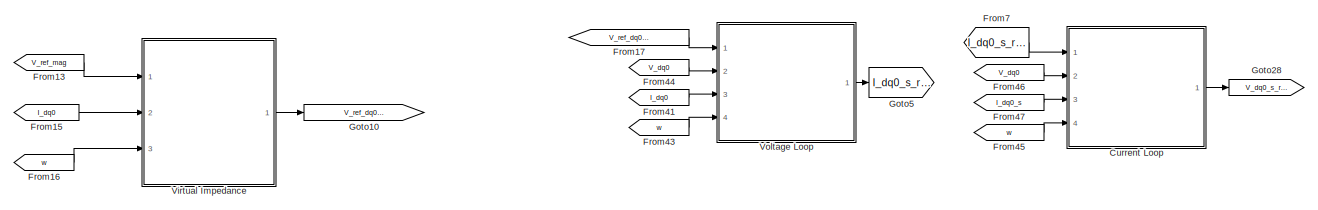
[diagram: VSC-GF-VI2 - part 1/4, top center region]
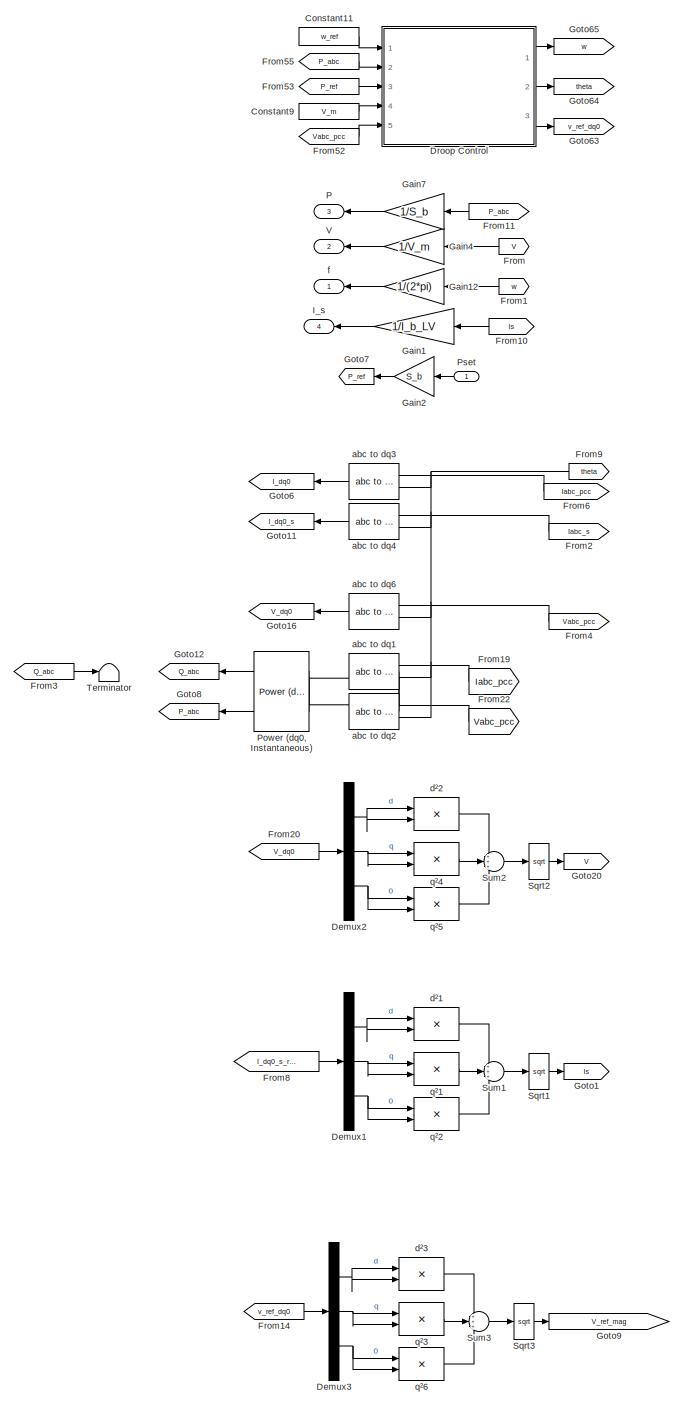
[diagram: VSC-GF-VI2 - part 2/4, left side, full height]
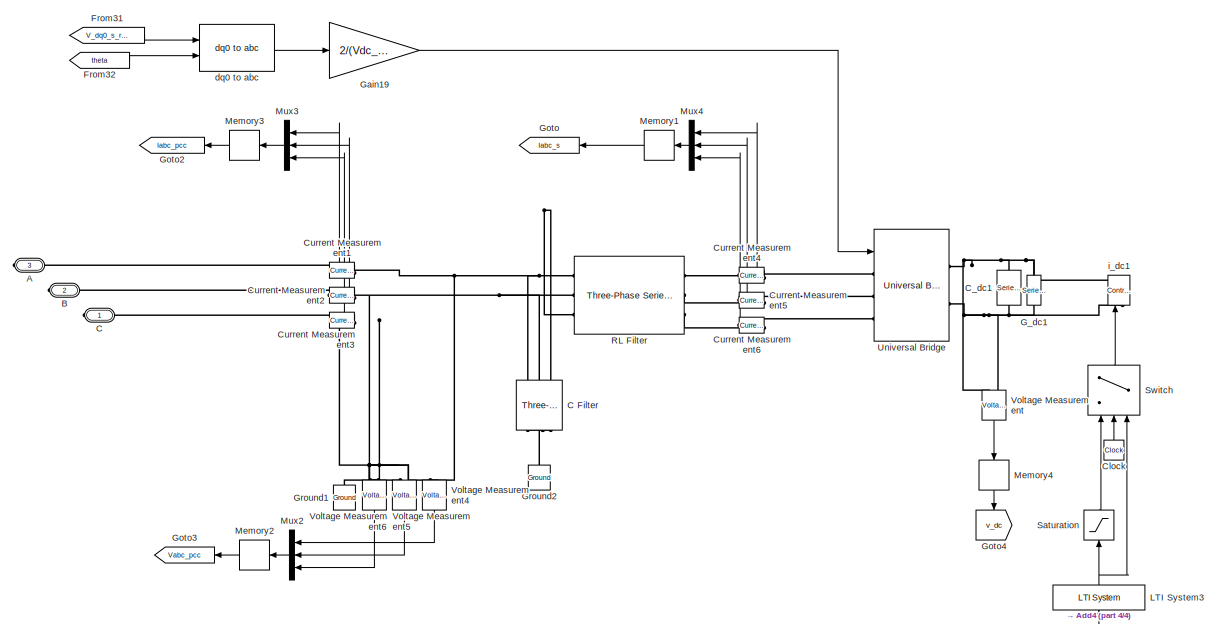
[diagram: VSC-GF-VI2 - part 3/4, middle right region]
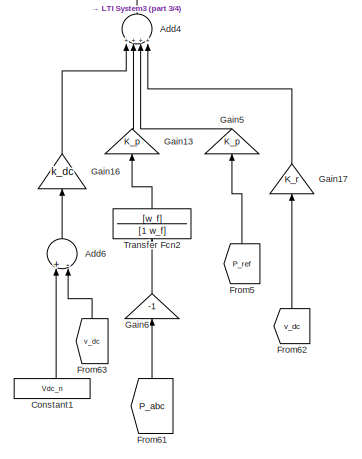
[diagram: VSC-GF-VI2 - part 4/4, bottom right region]
BLOCK [SubSystem] VSC-GF-VI2
  Ports = [1, 4, 0, 0, 0, 0, 3]
  RequestExecContextInheritance = off
BLOCK [SubSystem] VSC-GF-VI2/ Virtual Impedance
  Ports = [3, 1]
  RequestExecContextInheritance = off
BLOCK [Constant] VSC-GF-VI2/ Virtual Impedance/Constant
  Value = 0
BLOCK [Demux] VSC-GF-VI2/ Virtual Impedance/Demux4
  DisplayOption = bar
  Outputs = 2
  Ports = [1, 2]
BLOCK [Inport] VSC-GF-VI2/ Virtual Impedance/I_dq0
  IconDisplay = Port number
  Port = 2
BLOCK [Product] VSC-GF-VI2/ Virtual Impedance/Io_d * (w*Lv) 
  InputSameDT = off
  OutDataTypeStr = Inherit: Inherit via internal rule
  Ports = [2, 1]
  SaturateOnIntegerOverflow = off
BLOCK [Product] VSC-GF-VI2/ Virtual Impedance/Io_q * (w*Lv) 
  InputSameDT = off
  OutDataTypeStr = Inherit: Inherit via internal rule
  Ports = [2, 1]
  SaturateOnIntegerOverflow = off
BLOCK [Mux] VSC-GF-VI2/ Virtual Impedance/Mux
  DisplayOption = bar
  Inputs = 3
  Ports = [3, 1]
BLOCK [Selector] VSC-GF-VI2/ Virtual Impedance/Selector
  IndexOptions = Index vector (dialog)
  Indices = [1 2]
  InputPortWidth = 3
  OutputSizes = 1
  Ports = [1, 1]
BLOCK [Sum] VSC-GF-VI2/ Virtual Impedance/Sum
  IconShape = round
  InputSameDT = off
  Inputs = |+-
  OutDataTypeStr = Inherit: Inherit via internal rule
  Ports = [2, 1]
  SaturateOnIntegerOverflow = off
BLOCK [Sum] VSC-GF-VI2/ Virtual Impedance/Sum4
  IconShape = round
  InputSameDT = off
  Inputs = |++
  OutDataTypeStr = Inherit: Inherit via internal rule
  Ports = [2, 1]
  SaturateOnIntegerOverflow = off
BLOCK [Sum] VSC-GF-VI2/ Virtual Impedance/Sum5
  IconShape = round
  InputSameDT = off
  Inputs = -+|
  OutDataTypeStr = Inherit: Inherit via internal rule
  Ports = [2, 1]
  SaturateOnIntegerOverflow = off
BLOCK [Sum] VSC-GF-VI2/ Virtual Impedance/Sum6
  IconShape = round
  InputSameDT = off
  Inputs = -+|
  OutDataTypeStr = Inherit: Inherit via internal rule
  Ports = [2, 1]
  SaturateOnIntegerOverflow = off
BLOCK [Constant] VSC-GF-VI2/ Virtual Impedance/V_ref_0
  Value = 0
BLOCK [Inport] VSC-GF-VI2/ Virtual Impedance/V_ref_P-w 
  IconDisplay = Port number
BLOCK [Outport] VSC-GF-VI2/ Virtual Impedance/V_ref_dq0_VI
  IconDisplay = Port number
BLOCK [Gain] VSC-GF-VI2/ Virtual Impedance/Virtual indutance
  Gain = L_v
  OutDataTypeStr = Inherit: Inherit via internal rule
  ParamDataTypeStr = Inherit: Inherit via internal rule
  SaturateOnIntegerOverflow = off
BLOCK [Gain] VSC-GF-VI2/ Virtual Impedance/Virtual resistance
  Gain = R_v
  OutDataTypeStr = Inherit: Inherit via internal rule
  ParamDataTypeStr = Inherit: Inherit via internal rule
  SaturateOnIntegerOverflow = off
BLOCK [Gain] VSC-GF-VI2/ Virtual Impedance/Virtual resistance2 
  Gain = R_v
  OutDataTypeStr = Inherit: Inherit via internal rule
  ParamDataTypeStr = Inherit: Inherit via internal rule
  SaturateOnIntegerOverflow = off
BLOCK [Inport] VSC-GF-VI2/ Virtual Impedance/w
  IconDisplay = Port number
  Port = 3
BLOCK [PMIOPort] VSC-GF-VI2/A
  Port = 3
  Side = Right
BLOCK [Sum] VSC-GF-VI2/Add4
  InputSameDT = off
  Inputs = ++++
  OutDataTypeStr = Inherit: Inherit via internal rule
  Ports = [4, 1]
  SaturateOnIntegerOverflow = off
BLOCK [Sum] VSC-GF-VI2/Add6
  InputSameDT = off
  Inputs = +-
  OutDataTypeStr = Inherit: Inherit via internal rule
  Ports = [2, 1]
  SaturateOnIntegerOverflow = off
BLOCK [PMIOPort] VSC-GF-VI2/B
  Port = 2
  Side = Right
BLOCK [PMIOPort] VSC-GF-VI2/C
  Side = Right
BLOCK [Reference] VSC-GF-VI2/C Filter  REF=powerlib/Elements/Three-Phase
Parallel RLC Branch
  AttributesFormatString = \n
  Ports = [0, 0, 0, 0, 0, 3, 3]
  SourceBlock = powerlib/Elements/Three-Phase\nParallel RLC Branch
  SourceProductBaseCode = PS
  SourceProductName = Simscape Electrical
  SourceType = Three-Phase Parallel RLC Branch
BLOCK [Reference] VSC-GF-VI2/C_dc1  REF=powerlib/Elements/Series RLC Branch
  Ports = [0, 0, 0, 0, 0, 1, 1]
  SourceBlock = powerlib/Elements/Series RLC Branch
  SourceProductBaseCode = PS
  SourceProductName = Simscape Electrical
  SourceType = Series RLC Branch
BLOCK [Clock] VSC-GF-VI2/Clock
BLOCK [Constant] VSC-GF-VI2/Constant1
  Value = Vdc_n
BLOCK [Constant] VSC-GF-VI2/Constant11
  Value = w_ref
BLOCK [Constant] VSC-GF-VI2/Constant9
  Value = V_m
BLOCK [SubSystem] VSC-GF-VI2/Current Loop
  Ports = [4, 1]
  RequestExecContextInheritance = off
BLOCK [Demux] VSC-GF-VI2/Current Loop/Demux
  DisplayOption = bar
  Outputs = 2
  Ports = [1, 2]
BLOCK [Demux] VSC-GF-VI2/Current Loop/Demux1
  DisplayOption = bar
  Outputs = 2
  Ports = [1, 2]
BLOCK [Demux] VSC-GF-VI2/Current Loop/Demux2
  DisplayOption = bar
  Outputs = 2
  Ports = [1, 2]
BLOCK [Reference] VSC-GF-VI2/Current Loop/First-Order Filter2  REF=powerlib_meascontrol/Filters/First-Order
Filter
  Commented = on
  Ports = [1, 1]
  SourceBlock = powerlib_meascontrol/Filters/First-Order\nFilter
  SourceProductBaseCode = PS
  SourceProductName = Simscape Electrical
  SourceType = First-Order Filter
BLOCK [Reference] VSC-GF-VI2/Current Loop/First-Order Filter3  REF=powerlib_meascontrol/Filters/First-Order
Filter
  Commented = on
  Ports = [1, 1]
  SourceBlock = powerlib_meascontrol/Filters/First-Order\nFilter
  SourceProductBaseCode = PS
  SourceProductName = Simscape Electrical
  SourceType = First-Order Filter
BLOCK [Gain] VSC-GF-VI2/Current Loop/Gain Corrector
  Gain = Kp_i
  OutDataTypeStr = Inherit: Inherit via internal rule
  ParamDataTypeStr = Inherit: Inherit via internal rule
  SaturateOnIntegerOverflow = off
BLOCK [Gain] VSC-GF-VI2/Current Loop/Gain Corrector1
  Gain = Kp_i
  OutDataTypeStr = Inherit: Inherit via internal rule
  ParamDataTypeStr = Inherit: Inherit via internal rule
  SaturateOnIntegerOverflow = off
BLOCK [Gain] VSC-GF-VI2/Current Loop/Integration Time
  Gain = Ki_i / Kp_i
  OutDataTypeStr = Inherit: Inherit via internal rule
  ParamDataTypeStr = Inherit: Inherit via internal rule
  SaturateOnIntegerOverflow = off
BLOCK [Gain] VSC-GF-VI2/Current Loop/Integration Time 1
  Gain = Ki_i / Kp_i
  OutDataTypeStr = Inherit: Inherit via internal rule
  ParamDataTypeStr = Inherit: Inherit via internal rule
  SaturateOnIntegerOverflow = off
BLOCK [Gain] VSC-GF-VI2/Current Loop/Integration Time1
  Gain = 1/n
  OutDataTypeStr = Inherit: Inherit via internal rule
  ParamDataTypeStr = Inherit: Inherit via internal rule
  SaturateOnIntegerOverflow = off
BLOCK [Gain] VSC-GF-VI2/Current Loop/Integration Time2
  Gain = 1/n
  OutDataTypeStr = Inherit: Inherit via internal rule
  ParamDataTypeStr = Inherit: Inherit via internal rule
  SaturateOnIntegerOverflow = off
BLOCK [Integrator] VSC-GF-VI2/Current Loop/Integrator
  InitialCondition = 0.0001
  Ports = [1, 1]
BLOCK [Integrator] VSC-GF-VI2/Current Loop/Integrator 1
  Ports = [1, 1]
BLOCK [Mux] VSC-GF-VI2/Current Loop/Mux
  DisplayOption = bar
  Inputs = 3
  Ports = [3, 1]
BLOCK [Product] VSC-GF-VI2/Current Loop/Product
  InputSameDT = off
  OutDataTypeStr = Inherit: Inherit via internal rule
  Ports = [2, 1]
  SaturateOnIntegerOverflow = off
BLOCK [Product] VSC-GF-VI2/Current Loop/Product1
  InputSameDT = off
  OutDataTypeStr = Inherit: Inherit via internal rule
  Ports = [2, 1]
  SaturateOnIntegerOverflow = off
BLOCK [Selector] VSC-GF-VI2/Current Loop/Selector1
  IndexOptions = Index vector (dialog)
  Indices = [1 2]
  InputPortWidth = 3
  OutputSizes = 1
  Ports = [1, 1]
BLOCK [Selector] VSC-GF-VI2/Current Loop/Selector2
  IndexOptions = Index vector (dialog)
  Indices = [1 2]
  InputPortWidth = 3
  OutputSizes = 1
  Ports = [1, 1]
BLOCK [Selector] VSC-GF-VI2/Current Loop/Selector3
  IndexOptions = Index vector (dialog)
  Indices = [1 2]
  InputPortWidth = 3
  OutputSizes = 1
  Ports = [1, 1]
BLOCK [Sum] VSC-GF-VI2/Current Loop/Sum
  IconShape = round
  InputSameDT = off
  Inputs = |+-
  OutDataTypeStr = Inherit: Inherit via internal rule
  Ports = [2, 1]
  SaturateOnIntegerOverflow = off
BLOCK [Sum] VSC-GF-VI2/Current Loop/Sum1
  IconShape = round
  InputSameDT = off
  Inputs = |++
  OutDataTypeStr = Inherit: Inherit via internal rule
  Ports = [2, 1]
  SaturateOnIntegerOverflow = off
BLOCK [Sum] VSC-GF-VI2/Current Loop/Sum2
  IconShape = round
  InputSameDT = off
  Inputs = |+-
  OutDataTypeStr = Inherit: Inherit via internal rule
  Ports = [2, 1]
  SaturateOnIntegerOverflow = off
BLOCK [Sum] VSC-GF-VI2/Current Loop/Sum3
  IconShape = round
  InputSameDT = off
  Inputs = |++
  OutDataTypeStr = Inherit: Inherit via internal rule
  Ports = [2, 1]
  SaturateOnIntegerOverflow = off
BLOCK [Sum] VSC-GF-VI2/Current Loop/Sum4
  IconShape = round
  InputSameDT = off
  Inputs = |++
  OutDataTypeStr = Inherit: Inherit via internal rule
  Ports = [2, 1]
  SaturateOnIntegerOverflow = off
BLOCK [Sum] VSC-GF-VI2/Current Loop/Sum5
  IconShape = round
  InputSameDT = off
  Inputs = ++|
  OutDataTypeStr = Inherit: Inherit via internal rule
  Ports = [2, 1]
  SaturateOnIntegerOverflow = off
BLOCK [Sum] VSC-GF-VI2/Current Loop/Sum6
  IconShape = round
  InputSameDT = off
  Inputs = -+|
  OutDataTypeStr = Inherit: Inherit via internal rule
  Ports = [2, 1]
  SaturateOnIntegerOverflow = off
BLOCK [Sum] VSC-GF-VI2/Current Loop/Sum7
  IconShape = round
  InputSameDT = off
  Inputs = ++|
  OutDataTypeStr = Inherit: Inherit via internal rule
  Ports = [2, 1]
  SaturateOnIntegerOverflow = off
BLOCK [Constant] VSC-GF-VI2/Current Loop/Vm_0*
  Value = 0
BLOCK [Gain] VSC-GF-VI2/Current Loop/Voltage Compensator 1
  Gain = Kff_v
  OutDataTypeStr = Inherit: Inherit via internal rule
  ParamDataTypeStr = Inherit: Inherit via internal rule
  SaturateOnIntegerOverflow = off
BLOCK [Gain] VSC-GF-VI2/Current Loop/Voltage compensator
  Gain = Kff_v
  OutDataTypeStr = Inherit: Inherit via internal rule
  ParamDataTypeStr = Inherit: Inherit via internal rule
  SaturateOnIntegerOverflow = off
BLOCK [Inport] VSC-GF-VI2/Current Loop/i_s_dq0
  IconDisplay = Port number
  Port = 3
BLOCK [Inport] VSC-GF-VI2/Current Loop/i_s_ref_dq0
  IconDisplay = Port number
BLOCK [Inport] VSC-GF-VI2/Current Loop/v_dq0
  IconDisplay = Port number
  Port = 2
BLOCK [Outport] VSC-GF-VI2/Current Loop/v_s_ref_dq0
  IconDisplay = Port number
  VectorParamsAs1DForOutWhenUnconnected = off
BLOCK [Inport] VSC-GF-VI2/Current Loop/w
  IconDisplay = Port number
  Port = 4
BLOCK [Gain] VSC-GF-VI2/Current Loop/w*Lf_pu
  Gain = L_f
  OutDataTypeStr = Inherit: Inherit via internal rule
  ParamDataTypeStr = Inherit: Inherit via internal rule
  SaturateOnIntegerOverflow = off
BLOCK [Reference] VSC-GF-VI2/Current Measurement1  REF=powerlib/Measurements/Current Measurement
  Ports = [0, 1, 0, 0, 0, 1, 1]
  SourceBlock = powerlib/Measurements/Current Measurement
  SourceProductBaseCode = PS
  SourceProductName = Simscape Electrical
  SourceType = Current Measurement
  UserDataPersistent = on
BLOCK [Reference] VSC-GF-VI2/Current Measurement2  REF=powerlib/Measurements/Current Measurement
  Ports = [0, 1, 0, 0, 0, 1, 1]
  SourceBlock = powerlib/Measurements/Current Measurement
  SourceProductBaseCode = PS
  SourceProductName = Simscape Electrical
  SourceType = Current Measurement
  UserDataPersistent = on
BLOCK [Reference] VSC-GF-VI2/Current Measurement3  REF=powerlib/Measurements/Current Measurement
  Ports = [0, 1, 0, 0, 0, 1, 1]
  SourceBlock = powerlib/Measurements/Current Measurement
  SourceProductBaseCode = PS
  SourceProductName = Simscape Electrical
  SourceType = Current Measurement
  UserDataPersistent = on
BLOCK [Reference] VSC-GF-VI2/Current Measurement4  REF=powerlib/Measurements/Current Measurement
  Ports = [0, 1, 0, 0, 0, 1, 1]
  SourceBlock = powerlib/Measurements/Current Measurement
  SourceProductBaseCode = PS
  SourceProductName = Simscape Electrical
  SourceType = Current Measurement
  UserDataPersistent = on
BLOCK [Reference] VSC-GF-VI2/Current Measurement5  REF=powerlib/Measurements/Current Measurement
  Ports = [0, 1, 0, 0, 0, 1, 1]
  SourceBlock = powerlib/Measurements/Current Measurement
  SourceProductBaseCode = PS
  SourceProductName = Simscape Electrical
  SourceType = Current Measurement
  UserDataPersistent = on
BLOCK [Reference] VSC-GF-VI2/Current Measurement6  REF=powerlib/Measurements/Current Measurement
  Ports = [0, 1, 0, 0, 0, 1, 1]
  SourceBlock = powerlib/Measurements/Current Measurement
  SourceProductBaseCode = PS
  SourceProductName = Simscape Electrical
  SourceType = Current Measurement
  UserDataPersistent = on
BLOCK [Demux] VSC-GF-VI2/Demux1
  DisplayOption = bar
  Outputs = 3
  Ports = [1, 3]
BLOCK [Demux] VSC-GF-VI2/Demux2
  DisplayOption = bar
  Outputs = 3
  Ports = [1, 3]
BLOCK [Demux] VSC-GF-VI2/Demux3
  DisplayOption = bar
  Outputs = 3
  Ports = [1, 3]
BLOCK [SubSystem] VSC-GF-VI2/Droop Control
  Ports = [5, 3]
  RequestExecContextInheritance = off
BLOCK [Demux] VSC-GF-VI2/Droop Control/Demux
  DisplayOption = bar
  Outputs = 3
  Ports = [1, 3]
BLOCK [Gain] VSC-GF-VI2/Droop Control/Gain20
  Gain = m_p
  OutDataTypeStr = Inherit: Inherit via internal rule
  ParamDataTypeStr = Inherit: Inherit via internal rule
  SaturateOnIntegerOverflow = off
BLOCK [Integrator] VSC-GF-VI2/Droop Control/Integrator3
  Ports = [1, 1]
BLOCK [Mux] VSC-GF-VI2/Droop Control/Mux4
  DisplayOption = bar
  Inputs = 3
  Ports = [3, 1]
BLOCK [Reference] VSC-GF-VI2/Droop Control/PID Controller  REF=simulink/Continuous/PID Controller
  Ports = [1, 1]
  SourceBlock = simulink/Continuous/PID Controller
  SourceProductBaseCode = SL
  SourceProductName = Simulink
  SourceType = PID 1dof
BLOCK [Sum] VSC-GF-VI2/Droop Control/Sum1
  IconShape = round
  InputSameDT = off
  Inputs = -+|
  OutDataTypeStr = Inherit: Inherit via internal rule
  Ports = [2, 1]
  SaturateOnIntegerOverflow = off
BLOCK [Sum] VSC-GF-VI2/Droop Control/Sum7
  IconShape = round
  InputSameDT = off
  Inputs = |-+
  OutDataTypeStr = Inherit: Inherit via internal rule
  Ports = [2, 1]
  SaturateOnIntegerOverflow = off
BLOCK [Sum] VSC-GF-VI2/Droop Control/Sum8
  IconShape = round
  InputSameDT = off
  Inputs = ++|
  OutDataTypeStr = Inherit: Inherit via internal rule
  Ports = [2, 1]
  SaturateOnIntegerOverflow = off
BLOCK [Terminator] VSC-GF-VI2/Droop Control/Terminator
BLOCK [Terminator] VSC-GF-VI2/Droop Control/Terminator1
BLOCK [TransferFcn] VSC-GF-VI2/Droop Control/Transfer Fcn1
  Denominator = [1 w_f]
  Numerator = [w_f]
BLOCK [TransferFcn] VSC-GF-VI2/Droop Control/Transfer Fcn2
  Denominator = [1 w_c]
  Numerator = [w_c]
BLOCK [Inport] VSC-GF-VI2/Droop Control/V_abc
  IconDisplay = Port number
  Port = 5
BLOCK [Reference] VSC-GF-VI2/Droop Control/abc to dq1  REF=powerlib_meascontrol/Transformations/abc to dq0
  Ports = [2, 1]
  SourceBlock = powerlib_meascontrol/Transformations/abc to dq0
  SourceProductBaseCode = PS
  SourceProductName = Simscape Electrical
  SourceType = abc to dq0 Transformation
BLOCK [Inport] VSC-GF-VI2/Droop Control/p_m
  IconDisplay = Port number
  Port = 2
BLOCK [Inport] VSC-GF-VI2/Droop Control/p_set
  IconDisplay = Port number
  Port = 3
BLOCK [Constant] VSC-GF-VI2/Droop Control/q0
  Value = 0
BLOCK [Outport] VSC-GF-VI2/Droop Control/theta_ref
  IconDisplay = Port number
  Port = 2
  VectorParamsAs1DForOutWhenUnconnected = off
BLOCK [Inport] VSC-GF-VI2/Droop Control/v_m
  IconDisplay = Port number
  Port = 4
BLOCK [Outport] VSC-GF-VI2/Droop Control/v_ref_dq0
  IconDisplay = Port number
  Port = 3
  VectorParamsAs1DForOutWhenUnconnected = off
BLOCK [Inport] VSC-GF-VI2/Droop Control/w_b
  IconDisplay = Port number
BLOCK [Outport] VSC-GF-VI2/Droop Control/w_ref
  IconDisplay = Port number
  VectorParamsAs1DForOutWhenUnconnected = off
BLOCK [From] VSC-GF-VI2/From
  GotoTag = V
BLOCK [From] VSC-GF-VI2/From1
  GotoTag = w
BLOCK [From] VSC-GF-VI2/From10
  GotoTag = Is
BLOCK [From] VSC-GF-VI2/From11
  GotoTag = P_abc
BLOCK [From] VSC-GF-VI2/From13
  GotoTag = V_ref_mag
BLOCK [From] VSC-GF-VI2/From14
  GotoTag = v_ref_dq0
BLOCK [From] VSC-GF-VI2/From15
  GotoTag = I_dq0
BLOCK [From] VSC-GF-VI2/From16
  GotoTag = w
BLOCK [From] VSC-GF-VI2/From17
  GotoTag = V_ref_dq0_VI
BLOCK [From] VSC-GF-VI2/From19
  GotoTag = Iabc_pcc
BLOCK [From] VSC-GF-VI2/From2
  GotoTag = Iabc_s
BLOCK [From] VSC-GF-VI2/From20
  GotoTag = V_dq0
BLOCK [From] VSC-GF-VI2/From22
  GotoTag = Vabc_pcc
BLOCK [From] VSC-GF-VI2/From3
  GotoTag = Q_abc
BLOCK [From] VSC-GF-VI2/From31
  GotoTag = V_dq0_s_ref
BLOCK [From] VSC-GF-VI2/From32
  GotoTag = theta
BLOCK [From] VSC-GF-VI2/From4
  GotoTag = Vabc_pcc
BLOCK [From] VSC-GF-VI2/From41
  GotoTag = I_dq0
BLOCK [From] VSC-GF-VI2/From43
  GotoTag = w
BLOCK [From] VSC-GF-VI2/From44
  GotoTag = V_dq0
BLOCK [From] VSC-GF-VI2/From45
  GotoTag = w
BLOCK [From] VSC-GF-VI2/From46
  GotoTag = V_dq0
BLOCK [From] VSC-GF-VI2/From47
  GotoTag = I_dq0_s
BLOCK [From] VSC-GF-VI2/From5
  GotoTag = P_ref
BLOCK [From] VSC-GF-VI2/From52
  GotoTag = Vabc_pcc
BLOCK [From] VSC-GF-VI2/From53
  GotoTag = P_ref
BLOCK [From] VSC-GF-VI2/From55
  GotoTag = P_abc
BLOCK [From] VSC-GF-VI2/From6
  GotoTag = Iabc_pcc
BLOCK [From] VSC-GF-VI2/From61
  GotoTag = P_abc
BLOCK [From] VSC-GF-VI2/From62
  GotoTag = v_dc
BLOCK [From] VSC-GF-VI2/From63
  GotoTag = v_dc
BLOCK [From] VSC-GF-VI2/From7
  GotoTag = I_dq0_s_ref
BLOCK [From] VSC-GF-VI2/From8
  GotoTag = I_dq0_s_ref
BLOCK [From] VSC-GF-VI2/From9
  GotoTag = theta
BLOCK [Reference] VSC-GF-VI2/G_dc1  REF=powerlib/Elements/Series RLC Branch
  Ports = [0, 0, 0, 0, 0, 1, 1]
  SourceBlock = powerlib/Elements/Series RLC Branch
  SourceProductBaseCode = PS
  SourceProductName = Simscape Electrical
  SourceType = Series RLC Branch
BLOCK [Gain] VSC-GF-VI2/Gain1
  Gain = 1/I_b_LV
  OutDataTypeStr = Inherit: Inherit via internal rule
  ParamDataTypeStr = Inherit: Inherit via internal rule
  SaturateOnIntegerOverflow = off
BLOCK [Gain] VSC-GF-VI2/Gain12
  Gain = 1/(2*pi)
  OutDataTypeStr = Inherit: Inherit via internal rule
  ParamDataTypeStr = Inherit: Inherit via internal rule
  SaturateOnIntegerOverflow = off
BLOCK [Gain] VSC-GF-VI2/Gain13
  Gain = K_p
  OutDataTypeStr = Inherit: Inherit via internal rule
  ParamDataTypeStr = Inherit: Inherit via internal rule
  SaturateOnIntegerOverflow = off
BLOCK [Gain] VSC-GF-VI2/Gain16
  Gain = k_dc
  OutDataTypeStr = Inherit: Inherit via internal rule
  ParamDataTypeStr = Inherit: Inherit via internal rule
  SaturateOnIntegerOverflow = off
BLOCK [Gain] VSC-GF-VI2/Gain17
  Gain = K_r
  OutDataTypeStr = Inherit: Inherit via internal rule
  ParamDataTypeStr = Inherit: Inherit via internal rule
  SaturateOnIntegerOverflow = off
BLOCK [Gain] VSC-GF-VI2/Gain19
  Gain = 2/(Vdc_n)
  OutDataTypeStr = Inherit: Inherit via internal rule
  ParamDataTypeStr = Inherit: Inherit via internal rule
  SaturateOnIntegerOverflow = off
BLOCK [Gain] VSC-GF-VI2/Gain2
  Gain = S_b
  OutDataTypeStr = Inherit: Inherit via internal rule
  ParamDataTypeStr = Inherit: Inherit via internal rule
  SaturateOnIntegerOverflow = off
BLOCK [Gain] VSC-GF-VI2/Gain4
  Gain = 1/V_m
  OutDataTypeStr = Inherit: Inherit via internal rule
  ParamDataTypeStr = Inherit: Inherit via internal rule
  SaturateOnIntegerOverflow = off
BLOCK [Gain] VSC-GF-VI2/Gain5
  Gain = K_p
  OutDataTypeStr = Inherit: Inherit via internal rule
  ParamDataTypeStr = Inherit: Inherit via internal rule
  SaturateOnIntegerOverflow = off
BLOCK [Gain] VSC-GF-VI2/Gain6
  Gain = -1
  OutDataTypeStr = Inherit: Inherit via internal rule
  ParamDataTypeStr = Inherit: Inherit via internal rule
  SaturateOnIntegerOverflow = off
BLOCK [Gain] VSC-GF-VI2/Gain7
  Gain = 1/S_b
  OutDataTypeStr = Inherit: Inherit via internal rule
  ParamDataTypeStr = Inherit: Inherit via internal rule
  SaturateOnIntegerOverflow = off
BLOCK [Goto] VSC-GF-VI2/Goto
  GotoTag = Iabc_s
BLOCK [Goto] VSC-GF-VI2/Goto1
  GotoTag = Is
BLOCK [Goto] VSC-GF-VI2/Goto10
  GotoTag = V_ref_dq0_VI
BLOCK [Goto] VSC-GF-VI2/Goto11
  GotoTag = I_dq0_s
BLOCK [Goto] VSC-GF-VI2/Goto12
  GotoTag = Q_abc
BLOCK [Goto] VSC-GF-VI2/Goto16
  GotoTag = V_dq0
BLOCK [Goto] VSC-GF-VI2/Goto2
  GotoTag = Iabc_pcc
BLOCK [Goto] VSC-GF-VI2/Goto20
  GotoTag = V
BLOCK [Goto] VSC-GF-VI2/Goto28
  GotoTag = V_dq0_s_ref
BLOCK [Goto] VSC-GF-VI2/Goto3
  GotoTag = Vabc_pcc
BLOCK [Goto] VSC-GF-VI2/Goto4
  GotoTag = v_dc
BLOCK [Goto] VSC-GF-VI2/Goto5
  GotoTag = I_dq0_s_ref
BLOCK [Goto] VSC-GF-VI2/Goto6
  GotoTag = I_dq0
BLOCK [Goto] VSC-GF-VI2/Goto63
  GotoTag = v_ref_dq0
BLOCK [Goto] VSC-GF-VI2/Goto64
  GotoTag = theta
BLOCK [Goto] VSC-GF-VI2/Goto65
  GotoTag = w
BLOCK [Goto] VSC-GF-VI2/Goto7
  GotoTag = P_ref
BLOCK [Goto] VSC-GF-VI2/Goto8
  GotoTag = P_abc
BLOCK [Goto] VSC-GF-VI2/Goto9
  GotoTag = V_ref_mag
BLOCK [Reference] VSC-GF-VI2/Ground1  REF=powerlib/Elements/Ground
  Ports = [0, 0, 0, 0, 0, 1]
  SourceBlock = powerlib/Elements/Ground
  SourceProductBaseCode = PS
  SourceProductName = Simscape Electrical
  SourceType = Ground
BLOCK [Reference] VSC-GF-VI2/Ground2  REF=powerlib/Elements/Ground
  Ports = [0, 0, 0, 0, 0, 1]
  SourceBlock = powerlib/Elements/Ground
  SourceProductBaseCode = PS
  SourceProductName = Simscape Electrical
  SourceType = Ground
BLOCK [Outport] VSC-GF-VI2/I_s
  IconDisplay = Port number
  Port = 4
  VectorParamsAs1DForOutWhenUnconnected = off
BLOCK [Reference] VSC-GF-VI2/LTI System3  REF=cstblocks/LTI System
  Ports = [1, 1]
  SourceBlock = cstblocks/LTI System
  SourceProductBaseCode = CT
  SourceProductName = Control System Toolbox
  SourceType = LTI Block
BLOCK [Memory] VSC-GF-VI2/Memory1
BLOCK [Memory] VSC-GF-VI2/Memory2
BLOCK [Memory] VSC-GF-VI2/Memory3
BLOCK [Memory] VSC-GF-VI2/Memory4
BLOCK [Mux] VSC-GF-VI2/Mux2
  DisplayOption = bar
  Inputs = 3
  Ports = [3, 1]
BLOCK [Mux] VSC-GF-VI2/Mux3
  DisplayOption = bar
  Inputs = 3
  Ports = [3, 1]
BLOCK [Mux] VSC-GF-VI2/Mux4
  DisplayOption = bar
  Inputs = 3
  Ports = [3, 1]
BLOCK [Outport] VSC-GF-VI2/P
  IconDisplay = Port number
  Port = 3
  VectorParamsAs1DForOutWhenUnconnected = off
BLOCK [Reference] VSC-GF-VI2/Power (dq0, Instantaneous)  REF=powerlib_meascontrol/Measurements/Power
(dq0, Instantaneous)
  Ports = [2, 2]
  SourceBlock = powerlib_meascontrol/Measurements/Power\n(dq0, Instantaneous)
  SourceProductBaseCode = PS
  SourceProductName = Simscape Electrical
  SourceType = Power (dq0, Instantaneous)
BLOCK [Inport] VSC-GF-VI2/Pset
  IconDisplay = Port number
BLOCK [Reference] VSC-GF-VI2/RL Filter  REF=powerlib/Elements/Three-Phase
Series RLC Branch
  AttributesFormatString = \n
  Ports = [0, 0, 0, 0, 0, 3, 3]
  SourceBlock = powerlib/Elements/Three-Phase\nSeries RLC Branch
  SourceProductBaseCode = PS
  SourceProductName = Simscape Electrical
  SourceType = Three-Phase Series RLC Branch
BLOCK [Saturate] VSC-GF-VI2/Saturation
  InputPortMap = u0
  LowerLimit = i_ll
  Ports = [1, 1]
  UpperLimit = i_ul
BLOCK [Sqrt] VSC-GF-VI2/Sqrt1
BLOCK [Sqrt] VSC-GF-VI2/Sqrt2
BLOCK [Sqrt] VSC-GF-VI2/Sqrt3
BLOCK [Sum] VSC-GF-VI2/Sum1
  IconShape = round
  Inputs = +++
  Ports = [3, 1]
BLOCK [Sum] VSC-GF-VI2/Sum2
  IconShape = round
  Inputs = +++
  Ports = [3, 1]
BLOCK [Sum] VSC-GF-VI2/Sum3
  IconShape = round
  Inputs = +++
  Ports = [3, 1]
BLOCK [Switch] VSC-GF-VI2/Switch
  Criteria = u2 > Threshold
  InputSameDT = off
  SaturateOnIntegerOverflow = off
  Threshold = T_en
BLOCK [Terminator] VSC-GF-VI2/Terminator
BLOCK [TransferFcn] VSC-GF-VI2/Transfer Fcn2
  Denominator = [1 w_f]
  Numerator = [w_f]
BLOCK [Reference] VSC-GF-VI2/Universal Bridge  REF=powerlib/Power
Electronics/Universal Bridge
  Ports = [1, 0, 0, 0, 0, 3, 2]
  SourceBlock = powerlib/Power\nElectronics/Universal Bridge
  SourceProductBaseCode = PS
  SourceProductName = Simscape Electrical
  SourceType = Universal Bridge
BLOCK [Outport] VSC-GF-VI2/V
  IconDisplay = Port number
  Port = 2
  VectorParamsAs1DForOutWhenUnconnected = off
BLOCK [SubSystem] VSC-GF-VI2/Voltage Loop
  Ports = [4, 1]
  RequestExecContextInheritance = off
BLOCK [Gain] VSC-GF-VI2/Voltage Loop/Current Compensator
  Gain = Kff_i
  OutDataTypeStr = Inherit: Inherit via internal rule
  ParamDataTypeStr = Inherit: Inherit via internal rule
  SaturateOnIntegerOverflow = off
BLOCK [Gain] VSC-GF-VI2/Voltage Loop/Current Compensator1
  Gain = Kff_i
  OutDataTypeStr = Inherit: Inherit via internal rule
  ParamDataTypeStr = Inherit: Inherit via internal rule
  SaturateOnIntegerOverflow = off
BLOCK [Gain] VSC-GF-VI2/Voltage Loop/Damping (d)
  Gain = Kp_v
  OutDataTypeStr = Inherit: Inherit via internal rule
  ParamDataTypeStr = Inherit: Inherit via internal rule
  SaturateOnIntegerOverflow = off
BLOCK [Gain] VSC-GF-VI2/Voltage Loop/Damping (q)
  Gain = Kp_v
  OutDataTypeStr = Inherit: Inherit via internal rule
  ParamDataTypeStr = Inherit: Inherit via internal rule
  SaturateOnIntegerOverflow = off
BLOCK [Demux] VSC-GF-VI2/Voltage Loop/Demux
  DisplayOption = bar
  Outputs = 2
  Ports = [1, 2]
BLOCK [Demux] VSC-GF-VI2/Voltage Loop/Demux1
  DisplayOption = bar
  Outputs = 2
  Ports = [1, 2]
BLOCK [Demux] VSC-GF-VI2/Voltage Loop/Demux2
  DisplayOption = bar
  Outputs = 2
  Ports = [1, 2]
BLOCK [Product] VSC-GF-VI2/Voltage Loop/Eg_d * (wCf)
  InputSameDT = off
  OutDataTypeStr = Inherit: Inherit via internal rule
  Ports = [2, 1]
  SaturateOnIntegerOverflow = off
BLOCK [Product] VSC-GF-VI2/Voltage Loop/Eg_q * (wCf) 
  InputSameDT = off
  OutDataTypeStr = Inherit: Inherit via internal rule
  Ports = [2, 1]
  SaturateOnIntegerOverflow = off
BLOCK [Gain] VSC-GF-VI2/Voltage Loop/Filter capacitance
  Gain = C_f
  OutDataTypeStr = Inherit: Inherit via internal rule
  ParamDataTypeStr = Inherit: Inherit via internal rule
  SaturateOnIntegerOverflow = off
BLOCK [Gain] VSC-GF-VI2/Voltage Loop/Integration Time
  Gain = Ki_v / Kp_v
  OutDataTypeStr = Inherit: Inherit via internal rule
  ParamDataTypeStr = Inherit: Inherit via internal rule
  SaturateOnIntegerOverflow = off
BLOCK [Gain] VSC-GF-VI2/Voltage Loop/Integration Time1
  Gain = Ki_v / Kp_v
  OutDataTypeStr = Inherit: Inherit via internal rule
  ParamDataTypeStr = Inherit: Inherit via internal rule
  SaturateOnIntegerOverflow = off
BLOCK [Gain] VSC-GF-VI2/Voltage Loop/Integration Time2
  Gain = n
  OutDataTypeStr = Inherit: Inherit via internal rule
  ParamDataTypeStr = Inherit: Inherit via internal rule
  SaturateOnIntegerOverflow = off
BLOCK [Gain] VSC-GF-VI2/Voltage Loop/Integration Time3
  Gain = n
  OutDataTypeStr = Inherit: Inherit via internal rule
  ParamDataTypeStr = Inherit: Inherit via internal rule
  SaturateOnIntegerOverflow = off
BLOCK [Integrator] VSC-GF-VI2/Voltage Loop/Integrator
  Ports = [1, 1]
BLOCK [Integrator] VSC-GF-VI2/Voltage Loop/Integrator1
  Ports = [1, 1]
BLOCK [Constant] VSC-GF-VI2/Voltage Loop/Is_0*
  Value = 0
BLOCK [Mux] VSC-GF-VI2/Voltage Loop/Mux
  DisplayOption = bar
  Inputs = 3
  Ports = [3, 1]
BLOCK [Selector] VSC-GF-VI2/Voltage Loop/Selector
  IndexOptions = Index vector (dialog)
  Indices = [1 2]
  InputPortWidth = 3
  OutputSizes = 1
  Ports = [1, 1]
BLOCK [Selector] VSC-GF-VI2/Voltage Loop/Selector1
  IndexOptions = Index vector (dialog)
  Indices = [1 2]
  InputPortWidth = 3
  OutputSizes = 1
  Ports = [1, 1]
BLOCK [Selector] VSC-GF-VI2/Voltage Loop/Selector2
  IndexOptions = Index vector (dialog)
  Indices = [1 2]
  InputPortWidth = 3
  OutputSizes = 1
  Ports = [1, 1]
BLOCK [Sum] VSC-GF-VI2/Voltage Loop/Sum
  IconShape = round
  InputSameDT = off
  Inputs = |+-
  OutDataTypeStr = Inherit: Inherit via internal rule
  Ports = [2, 1]
  SaturateOnIntegerOverflow = off
BLOCK [Sum] VSC-GF-VI2/Voltage Loop/Sum1
  IconShape = round
  InputSameDT = off
  Inputs = |++
  OutDataTypeStr = Inherit: Inherit via internal rule
  Ports = [2, 1]
  SaturateOnIntegerOverflow = off
BLOCK [Sum] VSC-GF-VI2/Voltage Loop/Sum2
  IconShape = round
  InputSameDT = off
  Inputs = |+-
  OutDataTypeStr = Inherit: Inherit via internal rule
  Ports = [2, 1]
  SaturateOnIntegerOverflow = off
BLOCK [Sum] VSC-GF-VI2/Voltage Loop/Sum3
  IconShape = round
  InputSameDT = off
  Inputs = |++
  OutDataTypeStr = Inherit: Inherit via internal rule
  Ports = [2, 1]
  SaturateOnIntegerOverflow = off
BLOCK [Sum] VSC-GF-VI2/Voltage Loop/Sum4
  IconShape = round
  InputSameDT = off
  Inputs = |++
  OutDataTypeStr = Inherit: Inherit via internal rule
  Ports = [2, 1]
  SaturateOnIntegerOverflow = off
BLOCK [Sum] VSC-GF-VI2/Voltage Loop/Sum5
  IconShape = round
  InputSameDT = off
  Inputs = ++|
  OutDataTypeStr = Inherit: Inherit via internal rule
  Ports = [2, 1]
  SaturateOnIntegerOverflow = off
BLOCK [Sum] VSC-GF-VI2/Voltage Loop/Sum6
  IconShape = round
  InputSameDT = off
  Inputs = -+|
  OutDataTypeStr = Inherit: Inherit via internal rule
  Ports = [2, 1]
  SaturateOnIntegerOverflow = off
BLOCK [Sum] VSC-GF-VI2/Voltage Loop/Sum7
  IconShape = round
  InputSameDT = off
  Inputs = ++|
  OutDataTypeStr = Inherit: Inherit via internal rule
  Ports = [2, 1]
  SaturateOnIntegerOverflow = off
BLOCK [Inport] VSC-GF-VI2/Voltage Loop/i_dq0
  IconDisplay = Port number
  Port = 3
BLOCK [Outport] VSC-GF-VI2/Voltage Loop/i_s_ref_dq0
  IconDisplay = Port number
  VectorParamsAs1DForOutWhenUnconnected = off
BLOCK [Inport] VSC-GF-VI2/Voltage Loop/v_dq0
  IconDisplay = Port number
  Port = 2
BLOCK [Inport] VSC-GF-VI2/Voltage Loop/v_ref_dq0
  IconDisplay = Port number
BLOCK [Inport] VSC-GF-VI2/Voltage Loop/w
  IconDisplay = Port number
  Port = 4
BLOCK [Reference] VSC-GF-VI2/Voltage Measurement  REF=powerlib/Measurements/Voltage Measurement
  Ports = [0, 1, 0, 0, 0, 2]
  SourceBlock = powerlib/Measurements/Voltage Measurement
  SourceProductBaseCode = PS
  SourceProductName = Simscape Electrical
  SourceType = Voltage Measurement
  UserDataPersistent = on
BLOCK [Reference] VSC-GF-VI2/Voltage Measurement4  REF=powerlib/Measurements/Voltage Measurement
  Ports = [0, 1, 0, 0, 0, 2]
  SourceBlock = powerlib/Measurements/Voltage Measurement
  SourceProductBaseCode = PS
  SourceProductName = Simscape Electrical
  SourceType = Voltage Measurement
  UserDataPersistent = on
BLOCK [Reference] VSC-GF-VI2/Voltage Measurement5  REF=powerlib/Measurements/Voltage Measurement
  Ports = [0, 1, 0, 0, 0, 2]
  SourceBlock = powerlib/Measurements/Voltage Measurement
  SourceProductBaseCode = PS
  SourceProductName = Simscape Electrical
  SourceType = Voltage Measurement
  UserDataPersistent = on
BLOCK [Reference] VSC-GF-VI2/Voltage Measurement6  REF=powerlib/Measurements/Voltage Measurement
  Ports = [0, 1, 0, 0, 0, 2]
  SourceBlock = powerlib/Measurements/Voltage Measurement
  SourceProductBaseCode = PS
  SourceProductName = Simscape Electrical
  SourceType = Voltage Measurement
  UserDataPersistent = on
BLOCK [Reference] VSC-GF-VI2/abc to dq1  REF=powerlib_meascontrol/Transformations/abc to dq0
  Ports = [2, 1]
  SourceBlock = powerlib_meascontrol/Transformations/abc to dq0
  SourceProductBaseCode = PS
  SourceProductName = Simscape Electrical
  SourceType = abc to dq0 Transformation
BLOCK [Reference] VSC-GF-VI2/abc to dq2  REF=powerlib_meascontrol/Transformations/abc to dq0
  Ports = [2, 1]
  SourceBlock = powerlib_meascontrol/Transformations/abc to dq0
  SourceProductBaseCode = PS
  SourceProductName = Simscape Electrical
  SourceType = abc to dq0 Transformation
BLOCK [Reference] VSC-GF-VI2/abc to dq3  REF=powerlib_meascontrol/Transformations/abc to dq0
  Ports = [2, 1]
  SourceBlock = powerlib_meascontrol/Transformations/abc to dq0
  SourceProductBaseCode = PS
  SourceProductName = Simscape Electrical
  SourceType = abc to dq0 Transformation
BLOCK [Reference] VSC-GF-VI2/abc to dq4  REF=powerlib_meascontrol/Transformations/abc to dq0
  Ports = [2, 1]
  SourceBlock = powerlib_meascontrol/Transformations/abc to dq0
  SourceProductBaseCode = PS
  SourceProductName = Simscape Electrical
  SourceType = abc to dq0 Transformation
BLOCK [Reference] VSC-GF-VI2/abc to dq6  REF=powerlib_meascontrol/Transformations/abc to dq0
  Ports = [2, 1]
  SourceBlock = powerlib_meascontrol/Transformations/abc to dq0
  SourceProductBaseCode = PS
  SourceProductName = Simscape Electrical
  SourceType = abc to dq0 Transformation
BLOCK [Reference] VSC-GF-VI2/dq0 to abc  REF=powerlib_meascontrol/Transformations/dq0 to abc
  Ports = [2, 1]
  SourceBlock = powerlib_meascontrol/Transformations/dq0 to abc
  SourceProductBaseCode = PS
  SourceProductName = Simscape Electrical
  SourceType = dq0 to abc Transformation
BLOCK [Product] VSC-GF-VI2/d²1
  Ports = [2, 1]
BLOCK [Product] VSC-GF-VI2/d²2
  Ports = [2, 1]
BLOCK [Product] VSC-GF-VI2/d²3
  Ports = [2, 1]
BLOCK [Outport] VSC-GF-VI2/f
  IconDisplay = Port number
  VectorParamsAs1DForOutWhenUnconnected = off
BLOCK [Reference] VSC-GF-VI2/i_dc1  REF=powerlib/Electrical
Sources/Controlled Current Source
  Ports = [1, 0, 0, 0, 0, 1, 1]
  SourceBlock = powerlib/Electrical\nSources/Controlled Current Source
  SourceProductBaseCode = PS
  SourceProductName = Simscape Electrical
  SourceType = Controlled Current Source
BLOCK [Product] VSC-GF-VI2/q²1
  Ports = [2, 1]
BLOCK [Product] VSC-GF-VI2/q²2
  Ports = [2, 1]
BLOCK [Product] VSC-GF-VI2/q²3
  Ports = [2, 1]
BLOCK [Product] VSC-GF-VI2/q²4
  Ports = [2, 1]
BLOCK [Product] VSC-GF-VI2/q²5
  Ports = [2, 1]
BLOCK [Product] VSC-GF-VI2/q²6
  Ports = [2, 1]
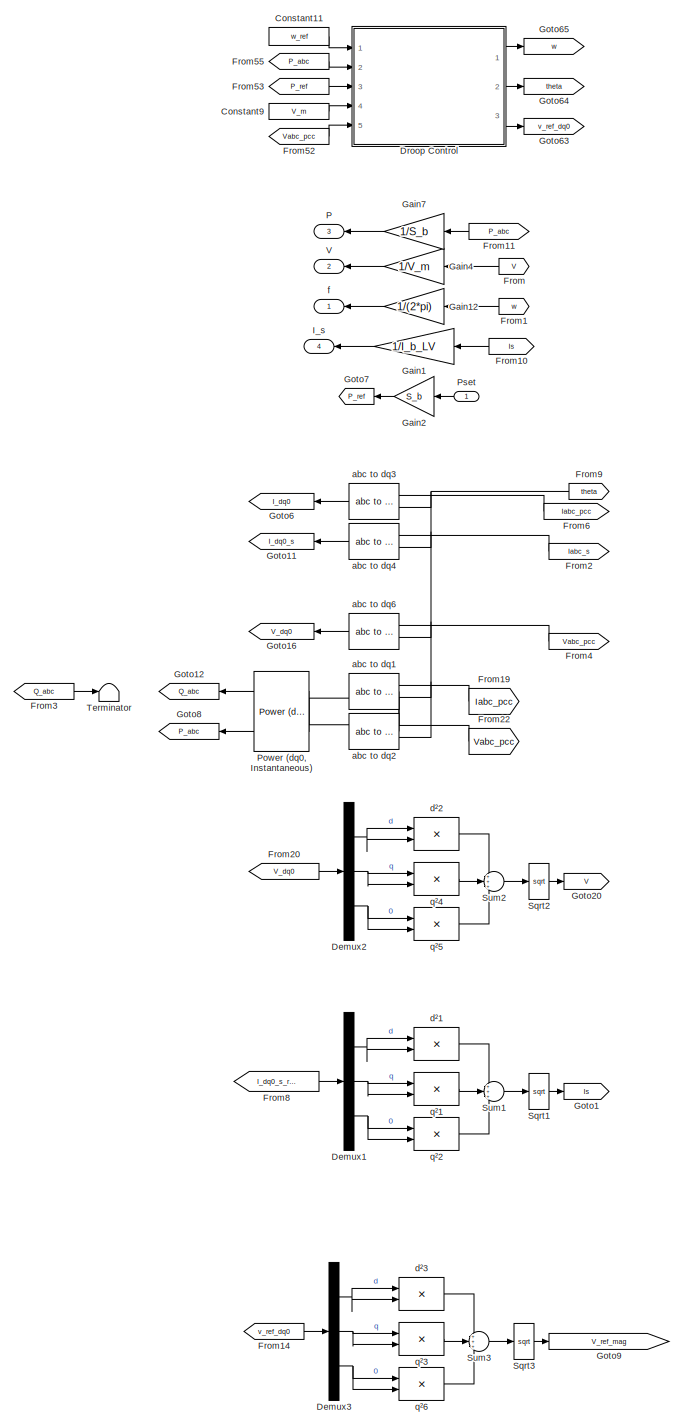
[diagram: VSC-GF-VI3 - part 1/4, left side, full height]
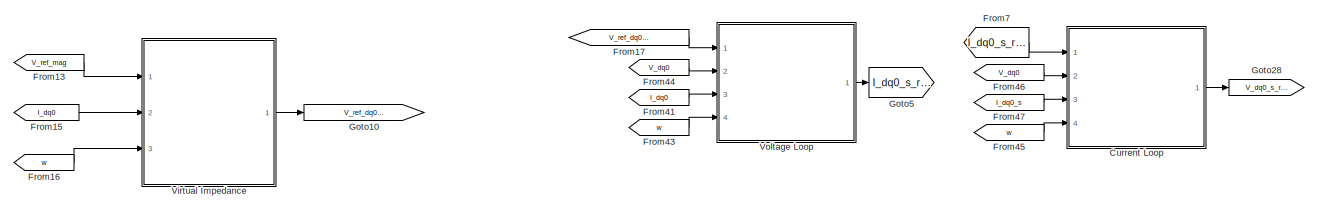
[diagram: VSC-GF-VI3 - part 2/4, top center region]
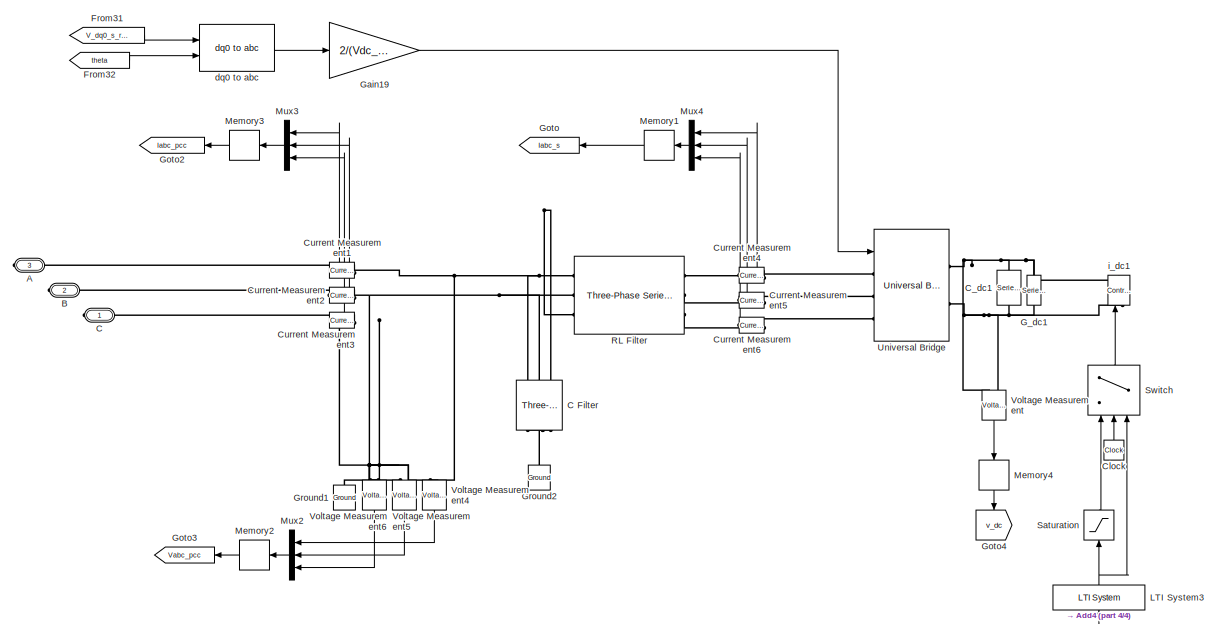
[diagram: VSC-GF-VI3 - part 3/4, middle right region]
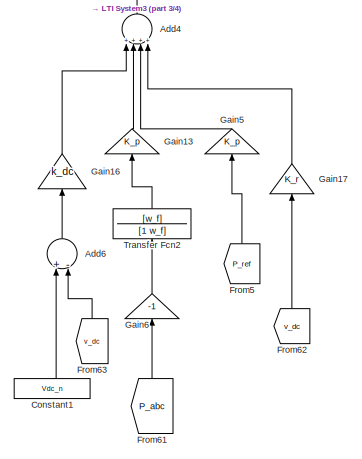
[diagram: VSC-GF-VI3 - part 4/4, bottom right region]
BLOCK [SubSystem] VSC-GF-VI3
  Ports = [1, 4, 0, 0, 0, 0, 3]
  RequestExecContextInheritance = off
BLOCK [SubSystem] VSC-GF-VI3/ Virtual Impedance
  Ports = [3, 1]
  RequestExecContextInheritance = off
BLOCK [Constant] VSC-GF-VI3/ Virtual Impedance/Constant
  Value = 0
BLOCK [Demux] VSC-GF-VI3/ Virtual Impedance/Demux4
  DisplayOption = bar
  Outputs = 2
  Ports = [1, 2]
BLOCK [Inport] VSC-GF-VI3/ Virtual Impedance/I_dq0
  IconDisplay = Port number
  Port = 2
BLOCK [Product] VSC-GF-VI3/ Virtual Impedance/Io_d * (w*Lv) 
  InputSameDT = off
  OutDataTypeStr = Inherit: Inherit via internal rule
  Ports = [2, 1]
  SaturateOnIntegerOverflow = off
BLOCK [Product] VSC-GF-VI3/ Virtual Impedance/Io_q * (w*Lv) 
  InputSameDT = off
  OutDataTypeStr = Inherit: Inherit via internal rule
  Ports = [2, 1]
  SaturateOnIntegerOverflow = off
BLOCK [Mux] VSC-GF-VI3/ Virtual Impedance/Mux
  DisplayOption = bar
  Inputs = 3
  Ports = [3, 1]
BLOCK [Selector] VSC-GF-VI3/ Virtual Impedance/Selector
  IndexOptions = Index vector (dialog)
  Indices = [1 2]
  InputPortWidth = 3
  OutputSizes = 1
  Ports = [1, 1]
BLOCK [Sum] VSC-GF-VI3/ Virtual Impedance/Sum
  IconShape = round
  InputSameDT = off
  Inputs = |+-
  OutDataTypeStr = Inherit: Inherit via internal rule
  Ports = [2, 1]
  SaturateOnIntegerOverflow = off
BLOCK [Sum] VSC-GF-VI3/ Virtual Impedance/Sum4
  IconShape = round
  InputSameDT = off
  Inputs = |++
  OutDataTypeStr = Inherit: Inherit via internal rule
  Ports = [2, 1]
  SaturateOnIntegerOverflow = off
BLOCK [Sum] VSC-GF-VI3/ Virtual Impedance/Sum5
  IconShape = round
  InputSameDT = off
  Inputs = -+|
  OutDataTypeStr = Inherit: Inherit via internal rule
  Ports = [2, 1]
  SaturateOnIntegerOverflow = off
BLOCK [Sum] VSC-GF-VI3/ Virtual Impedance/Sum6
  IconShape = round
  InputSameDT = off
  Inputs = -+|
  OutDataTypeStr = Inherit: Inherit via internal rule
  Ports = [2, 1]
  SaturateOnIntegerOverflow = off
BLOCK [Constant] VSC-GF-VI3/ Virtual Impedance/V_ref_0
  Value = 0
BLOCK [Inport] VSC-GF-VI3/ Virtual Impedance/V_ref_P-w 
  IconDisplay = Port number
BLOCK [Outport] VSC-GF-VI3/ Virtual Impedance/V_ref_dq0_VI
  IconDisplay = Port number
BLOCK [Gain] VSC-GF-VI3/ Virtual Impedance/Virtual indutance
  Gain = L_v
  OutDataTypeStr = Inherit: Inherit via internal rule
  ParamDataTypeStr = Inherit: Inherit via internal rule
  SaturateOnIntegerOverflow = off
BLOCK [Gain] VSC-GF-VI3/ Virtual Impedance/Virtual resistance
  Gain = R_v
  OutDataTypeStr = Inherit: Inherit via internal rule
  ParamDataTypeStr = Inherit: Inherit via internal rule
  SaturateOnIntegerOverflow = off
BLOCK [Gain] VSC-GF-VI3/ Virtual Impedance/Virtual resistance2 
  Gain = R_v
  OutDataTypeStr = Inherit: Inherit via internal rule
  ParamDataTypeStr = Inherit: Inherit via internal rule
  SaturateOnIntegerOverflow = off
BLOCK [Inport] VSC-GF-VI3/ Virtual Impedance/w
  IconDisplay = Port number
  Port = 3
BLOCK [PMIOPort] VSC-GF-VI3/A
  Port = 3
  Side = Right
BLOCK [Sum] VSC-GF-VI3/Add4
  InputSameDT = off
  Inputs = ++++
  OutDataTypeStr = Inherit: Inherit via internal rule
  Ports = [4, 1]
  SaturateOnIntegerOverflow = off
BLOCK [Sum] VSC-GF-VI3/Add6
  InputSameDT = off
  Inputs = +-
  OutDataTypeStr = Inherit: Inherit via internal rule
  Ports = [2, 1]
  SaturateOnIntegerOverflow = off
BLOCK [PMIOPort] VSC-GF-VI3/B
  Port = 2
  Side = Right
BLOCK [PMIOPort] VSC-GF-VI3/C
  Side = Right
BLOCK [Reference] VSC-GF-VI3/C Filter  REF=powerlib/Elements/Three-Phase
Parallel RLC Branch
  AttributesFormatString = \n
  Ports = [0, 0, 0, 0, 0, 3, 3]
  SourceBlock = powerlib/Elements/Three-Phase\nParallel RLC Branch
  SourceProductBaseCode = PS
  SourceProductName = Simscape Electrical
  SourceType = Three-Phase Parallel RLC Branch
BLOCK [Reference] VSC-GF-VI3/C_dc1  REF=powerlib/Elements/Series RLC Branch
  Ports = [0, 0, 0, 0, 0, 1, 1]
  SourceBlock = powerlib/Elements/Series RLC Branch
  SourceProductBaseCode = PS
  SourceProductName = Simscape Electrical
  SourceType = Series RLC Branch
BLOCK [Clock] VSC-GF-VI3/Clock
BLOCK [Constant] VSC-GF-VI3/Constant1
  Value = Vdc_n
BLOCK [Constant] VSC-GF-VI3/Constant11
  Value = w_ref
BLOCK [Constant] VSC-GF-VI3/Constant9
  Value = V_m
BLOCK [SubSystem] VSC-GF-VI3/Current Loop
  Ports = [4, 1]
  RequestExecContextInheritance = off
BLOCK [Demux] VSC-GF-VI3/Current Loop/Demux
  DisplayOption = bar
  Outputs = 2
  Ports = [1, 2]
BLOCK [Demux] VSC-GF-VI3/Current Loop/Demux1
  DisplayOption = bar
  Outputs = 2
  Ports = [1, 2]
BLOCK [Demux] VSC-GF-VI3/Current Loop/Demux2
  DisplayOption = bar
  Outputs = 2
  Ports = [1, 2]
BLOCK [Reference] VSC-GF-VI3/Current Loop/First-Order Filter2  REF=powerlib_meascontrol/Filters/First-Order
Filter
  Commented = on
  Ports = [1, 1]
  SourceBlock = powerlib_meascontrol/Filters/First-Order\nFilter
  SourceProductBaseCode = PS
  SourceProductName = Simscape Electrical
  SourceType = First-Order Filter
BLOCK [Reference] VSC-GF-VI3/Current Loop/First-Order Filter3  REF=powerlib_meascontrol/Filters/First-Order
Filter
  Commented = on
  Ports = [1, 1]
  SourceBlock = powerlib_meascontrol/Filters/First-Order\nFilter
  SourceProductBaseCode = PS
  SourceProductName = Simscape Electrical
  SourceType = First-Order Filter
BLOCK [Gain] VSC-GF-VI3/Current Loop/Gain Corrector
  Gain = Kp_i
  OutDataTypeStr = Inherit: Inherit via internal rule
  ParamDataTypeStr = Inherit: Inherit via internal rule
  SaturateOnIntegerOverflow = off
BLOCK [Gain] VSC-GF-VI3/Current Loop/Gain Corrector1
  Gain = Kp_i
  OutDataTypeStr = Inherit: Inherit via internal rule
  ParamDataTypeStr = Inherit: Inherit via internal rule
  SaturateOnIntegerOverflow = off
BLOCK [Gain] VSC-GF-VI3/Current Loop/Integration Time
  Gain = Ki_i / Kp_i
  OutDataTypeStr = Inherit: Inherit via internal rule
  ParamDataTypeStr = Inherit: Inherit via internal rule
  SaturateOnIntegerOverflow = off
BLOCK [Gain] VSC-GF-VI3/Current Loop/Integration Time 1
  Gain = Ki_i / Kp_i
  OutDataTypeStr = Inherit: Inherit via internal rule
  ParamDataTypeStr = Inherit: Inherit via internal rule
  SaturateOnIntegerOverflow = off
BLOCK [Gain] VSC-GF-VI3/Current Loop/Integration Time1
  Gain = 1/n
  OutDataTypeStr = Inherit: Inherit via internal rule
  ParamDataTypeStr = Inherit: Inherit via internal rule
  SaturateOnIntegerOverflow = off
BLOCK [Gain] VSC-GF-VI3/Current Loop/Integration Time2
  Gain = 1/n
  OutDataTypeStr = Inherit: Inherit via internal rule
  ParamDataTypeStr = Inherit: Inherit via internal rule
  SaturateOnIntegerOverflow = off
BLOCK [Integrator] VSC-GF-VI3/Current Loop/Integrator
  InitialCondition = 0.0001
  Ports = [1, 1]
BLOCK [Integrator] VSC-GF-VI3/Current Loop/Integrator 1
  Ports = [1, 1]
BLOCK [Mux] VSC-GF-VI3/Current Loop/Mux
  DisplayOption = bar
  Inputs = 3
  Ports = [3, 1]
BLOCK [Product] VSC-GF-VI3/Current Loop/Product
  InputSameDT = off
  OutDataTypeStr = Inherit: Inherit via internal rule
  Ports = [2, 1]
  SaturateOnIntegerOverflow = off
BLOCK [Product] VSC-GF-VI3/Current Loop/Product1
  InputSameDT = off
  OutDataTypeStr = Inherit: Inherit via internal rule
  Ports = [2, 1]
  SaturateOnIntegerOverflow = off
BLOCK [Selector] VSC-GF-VI3/Current Loop/Selector1
  IndexOptions = Index vector (dialog)
  Indices = [1 2]
  InputPortWidth = 3
  OutputSizes = 1
  Ports = [1, 1]
BLOCK [Selector] VSC-GF-VI3/Current Loop/Selector2
  IndexOptions = Index vector (dialog)
  Indices = [1 2]
  InputPortWidth = 3
  OutputSizes = 1
  Ports = [1, 1]
BLOCK [Selector] VSC-GF-VI3/Current Loop/Selector3
  IndexOptions = Index vector (dialog)
  Indices = [1 2]
  InputPortWidth = 3
  OutputSizes = 1
  Ports = [1, 1]
BLOCK [Sum] VSC-GF-VI3/Current Loop/Sum
  IconShape = round
  InputSameDT = off
  Inputs = |+-
  OutDataTypeStr = Inherit: Inherit via internal rule
  Ports = [2, 1]
  SaturateOnIntegerOverflow = off
BLOCK [Sum] VSC-GF-VI3/Current Loop/Sum1
  IconShape = round
  InputSameDT = off
  Inputs = |++
  OutDataTypeStr = Inherit: Inherit via internal rule
  Ports = [2, 1]
  SaturateOnIntegerOverflow = off
BLOCK [Sum] VSC-GF-VI3/Current Loop/Sum2
  IconShape = round
  InputSameDT = off
  Inputs = |+-
  OutDataTypeStr = Inherit: Inherit via internal rule
  Ports = [2, 1]
  SaturateOnIntegerOverflow = off
BLOCK [Sum] VSC-GF-VI3/Current Loop/Sum3
  IconShape = round
  InputSameDT = off
  Inputs = |++
  OutDataTypeStr = Inherit: Inherit via internal rule
  Ports = [2, 1]
  SaturateOnIntegerOverflow = off
BLOCK [Sum] VSC-GF-VI3/Current Loop/Sum4
  IconShape = round
  InputSameDT = off
  Inputs = |++
  OutDataTypeStr = Inherit: Inherit via internal rule
  Ports = [2, 1]
  SaturateOnIntegerOverflow = off
BLOCK [Sum] VSC-GF-VI3/Current Loop/Sum5
  IconShape = round
  InputSameDT = off
  Inputs = ++|
  OutDataTypeStr = Inherit: Inherit via internal rule
  Ports = [2, 1]
  SaturateOnIntegerOverflow = off
BLOCK [Sum] VSC-GF-VI3/Current Loop/Sum6
  IconShape = round
  InputSameDT = off
  Inputs = -+|
  OutDataTypeStr = Inherit: Inherit via internal rule
  Ports = [2, 1]
  SaturateOnIntegerOverflow = off
BLOCK [Sum] VSC-GF-VI3/Current Loop/Sum7
  IconShape = round
  InputSameDT = off
  Inputs = ++|
  OutDataTypeStr = Inherit: Inherit via internal rule
  Ports = [2, 1]
  SaturateOnIntegerOverflow = off
BLOCK [Constant] VSC-GF-VI3/Current Loop/Vm_0*
  Value = 0
BLOCK [Gain] VSC-GF-VI3/Current Loop/Voltage Compensator 1
  Gain = Kff_v
  OutDataTypeStr = Inherit: Inherit via internal rule
  ParamDataTypeStr = Inherit: Inherit via internal rule
  SaturateOnIntegerOverflow = off
BLOCK [Gain] VSC-GF-VI3/Current Loop/Voltage compensator
  Gain = Kff_v
  OutDataTypeStr = Inherit: Inherit via internal rule
  ParamDataTypeStr = Inherit: Inherit via internal rule
  SaturateOnIntegerOverflow = off
BLOCK [Inport] VSC-GF-VI3/Current Loop/i_s_dq0
  IconDisplay = Port number
  Port = 3
BLOCK [Inport] VSC-GF-VI3/Current Loop/i_s_ref_dq0
  IconDisplay = Port number
BLOCK [Inport] VSC-GF-VI3/Current Loop/v_dq0
  IconDisplay = Port number
  Port = 2
BLOCK [Outport] VSC-GF-VI3/Current Loop/v_s_ref_dq0
  IconDisplay = Port number
  VectorParamsAs1DForOutWhenUnconnected = off
BLOCK [Inport] VSC-GF-VI3/Current Loop/w
  IconDisplay = Port number
  Port = 4
BLOCK [Gain] VSC-GF-VI3/Current Loop/w*Lf_pu
  Gain = L_f
  OutDataTypeStr = Inherit: Inherit via internal rule
  ParamDataTypeStr = Inherit: Inherit via internal rule
  SaturateOnIntegerOverflow = off
BLOCK [Reference] VSC-GF-VI3/Current Measurement1  REF=powerlib/Measurements/Current Measurement
  Ports = [0, 1, 0, 0, 0, 1, 1]
  SourceBlock = powerlib/Measurements/Current Measurement
  SourceProductBaseCode = PS
  SourceProductName = Simscape Electrical
  SourceType = Current Measurement
  UserDataPersistent = on
BLOCK [Reference] VSC-GF-VI3/Current Measurement2  REF=powerlib/Measurements/Current Measurement
  Ports = [0, 1, 0, 0, 0, 1, 1]
  SourceBlock = powerlib/Measurements/Current Measurement
  SourceProductBaseCode = PS
  SourceProductName = Simscape Electrical
  SourceType = Current Measurement
  UserDataPersistent = on
BLOCK [Reference] VSC-GF-VI3/Current Measurement3  REF=powerlib/Measurements/Current Measurement
  Ports = [0, 1, 0, 0, 0, 1, 1]
  SourceBlock = powerlib/Measurements/Current Measurement
  SourceProductBaseCode = PS
  SourceProductName = Simscape Electrical
  SourceType = Current Measurement
  UserDataPersistent = on
BLOCK [Reference] VSC-GF-VI3/Current Measurement4  REF=powerlib/Measurements/Current Measurement
  Ports = [0, 1, 0, 0, 0, 1, 1]
  SourceBlock = powerlib/Measurements/Current Measurement
  SourceProductBaseCode = PS
  SourceProductName = Simscape Electrical
  SourceType = Current Measurement
  UserDataPersistent = on
BLOCK [Reference] VSC-GF-VI3/Current Measurement5  REF=powerlib/Measurements/Current Measurement
  Ports = [0, 1, 0, 0, 0, 1, 1]
  SourceBlock = powerlib/Measurements/Current Measurement
  SourceProductBaseCode = PS
  SourceProductName = Simscape Electrical
  SourceType = Current Measurement
  UserDataPersistent = on
BLOCK [Reference] VSC-GF-VI3/Current Measurement6  REF=powerlib/Measurements/Current Measurement
  Ports = [0, 1, 0, 0, 0, 1, 1]
  SourceBlock = powerlib/Measurements/Current Measurement
  SourceProductBaseCode = PS
  SourceProductName = Simscape Electrical
  SourceType = Current Measurement
  UserDataPersistent = on
BLOCK [Demux] VSC-GF-VI3/Demux1
  DisplayOption = bar
  Outputs = 3
  Ports = [1, 3]
BLOCK [Demux] VSC-GF-VI3/Demux2
  DisplayOption = bar
  Outputs = 3
  Ports = [1, 3]
BLOCK [Demux] VSC-GF-VI3/Demux3
  DisplayOption = bar
  Outputs = 3
  Ports = [1, 3]
BLOCK [SubSystem] VSC-GF-VI3/Droop Control
  Ports = [5, 3]
  RequestExecContextInheritance = off
BLOCK [Demux] VSC-GF-VI3/Droop Control/Demux
  DisplayOption = bar
  Outputs = 3
  Ports = [1, 3]
BLOCK [Gain] VSC-GF-VI3/Droop Control/Gain20
  Gain = m_p
  OutDataTypeStr = Inherit: Inherit via internal rule
  ParamDataTypeStr = Inherit: Inherit via internal rule
  SaturateOnIntegerOverflow = off
BLOCK [Integrator] VSC-GF-VI3/Droop Control/Integrator3
  Ports = [1, 1]
BLOCK [Mux] VSC-GF-VI3/Droop Control/Mux4
  DisplayOption = bar
  Inputs = 3
  Ports = [3, 1]
BLOCK [Reference] VSC-GF-VI3/Droop Control/PID Controller  REF=simulink/Continuous/PID Controller
  Ports = [1, 1]
  SourceBlock = simulink/Continuous/PID Controller
  SourceProductBaseCode = SL
  SourceProductName = Simulink
  SourceType = PID 1dof
BLOCK [Sum] VSC-GF-VI3/Droop Control/Sum1
  IconShape = round
  InputSameDT = off
  Inputs = -+|
  OutDataTypeStr = Inherit: Inherit via internal rule
  Ports = [2, 1]
  SaturateOnIntegerOverflow = off
BLOCK [Sum] VSC-GF-VI3/Droop Control/Sum7
  IconShape = round
  InputSameDT = off
  Inputs = |-+
  OutDataTypeStr = Inherit: Inherit via internal rule
  Ports = [2, 1]
  SaturateOnIntegerOverflow = off
BLOCK [Sum] VSC-GF-VI3/Droop Control/Sum8
  IconShape = round
  InputSameDT = off
  Inputs = ++|
  OutDataTypeStr = Inherit: Inherit via internal rule
  Ports = [2, 1]
  SaturateOnIntegerOverflow = off
BLOCK [Terminator] VSC-GF-VI3/Droop Control/Terminator
BLOCK [Terminator] VSC-GF-VI3/Droop Control/Terminator1
BLOCK [TransferFcn] VSC-GF-VI3/Droop Control/Transfer Fcn1
  Denominator = [1 w_f]
  Numerator = [w_f]
BLOCK [TransferFcn] VSC-GF-VI3/Droop Control/Transfer Fcn2
  Denominator = [1 w_c]
  Numerator = [w_c]
BLOCK [Inport] VSC-GF-VI3/Droop Control/V_abc
  IconDisplay = Port number
  Port = 5
BLOCK [Reference] VSC-GF-VI3/Droop Control/abc to dq1  REF=powerlib_meascontrol/Transformations/abc to dq0
  Ports = [2, 1]
  SourceBlock = powerlib_meascontrol/Transformations/abc to dq0
  SourceProductBaseCode = PS
  SourceProductName = Simscape Electrical
  SourceType = abc to dq0 Transformation
BLOCK [Inport] VSC-GF-VI3/Droop Control/p_m
  IconDisplay = Port number
  Port = 2
BLOCK [Inport] VSC-GF-VI3/Droop Control/p_set
  IconDisplay = Port number
  Port = 3
BLOCK [Constant] VSC-GF-VI3/Droop Control/q0
  Value = 0
BLOCK [Outport] VSC-GF-VI3/Droop Control/theta_ref
  IconDisplay = Port number
  Port = 2
  VectorParamsAs1DForOutWhenUnconnected = off
BLOCK [Inport] VSC-GF-VI3/Droop Control/v_m
  IconDisplay = Port number
  Port = 4
BLOCK [Outport] VSC-GF-VI3/Droop Control/v_ref_dq0
  IconDisplay = Port number
  Port = 3
  VectorParamsAs1DForOutWhenUnconnected = off
BLOCK [Inport] VSC-GF-VI3/Droop Control/w_b
  IconDisplay = Port number
BLOCK [Outport] VSC-GF-VI3/Droop Control/w_ref
  IconDisplay = Port number
  VectorParamsAs1DForOutWhenUnconnected = off
BLOCK [From] VSC-GF-VI3/From
  GotoTag = V
BLOCK [From] VSC-GF-VI3/From1
  GotoTag = w
BLOCK [From] VSC-GF-VI3/From10
  GotoTag = Is
BLOCK [From] VSC-GF-VI3/From11
  GotoTag = P_abc
BLOCK [From] VSC-GF-VI3/From13
  GotoTag = V_ref_mag
BLOCK [From] VSC-GF-VI3/From14
  GotoTag = v_ref_dq0
BLOCK [From] VSC-GF-VI3/From15
  GotoTag = I_dq0
BLOCK [From] VSC-GF-VI3/From16
  GotoTag = w
BLOCK [From] VSC-GF-VI3/From17
  GotoTag = V_ref_dq0_VI
BLOCK [From] VSC-GF-VI3/From19
  GotoTag = Iabc_pcc
BLOCK [From] VSC-GF-VI3/From2
  GotoTag = Iabc_s
BLOCK [From] VSC-GF-VI3/From20
  GotoTag = V_dq0
BLOCK [From] VSC-GF-VI3/From22
  GotoTag = Vabc_pcc
BLOCK [From] VSC-GF-VI3/From3
  GotoTag = Q_abc
BLOCK [From] VSC-GF-VI3/From31
  GotoTag = V_dq0_s_ref
BLOCK [From] VSC-GF-VI3/From32
  GotoTag = theta
BLOCK [From] VSC-GF-VI3/From4
  GotoTag = Vabc_pcc
BLOCK [From] VSC-GF-VI3/From41
  GotoTag = I_dq0
BLOCK [From] VSC-GF-VI3/From43
  GotoTag = w
BLOCK [From] VSC-GF-VI3/From44
  GotoTag = V_dq0
BLOCK [From] VSC-GF-VI3/From45
  GotoTag = w
BLOCK [From] VSC-GF-VI3/From46
  GotoTag = V_dq0
BLOCK [From] VSC-GF-VI3/From47
  GotoTag = I_dq0_s
BLOCK [From] VSC-GF-VI3/From5
  GotoTag = P_ref
BLOCK [From] VSC-GF-VI3/From52
  GotoTag = Vabc_pcc
BLOCK [From] VSC-GF-VI3/From53
  GotoTag = P_ref
BLOCK [From] VSC-GF-VI3/From55
  GotoTag = P_abc
BLOCK [From] VSC-GF-VI3/From6
  GotoTag = Iabc_pcc
BLOCK [From] VSC-GF-VI3/From61
  GotoTag = P_abc
BLOCK [From] VSC-GF-VI3/From62
  GotoTag = v_dc
BLOCK [From] VSC-GF-VI3/From63
  GotoTag = v_dc
BLOCK [From] VSC-GF-VI3/From7
  GotoTag = I_dq0_s_ref
BLOCK [From] VSC-GF-VI3/From8
  GotoTag = I_dq0_s_ref
BLOCK [From] VSC-GF-VI3/From9
  GotoTag = theta
BLOCK [Reference] VSC-GF-VI3/G_dc1  REF=powerlib/Elements/Series RLC Branch
  Ports = [0, 0, 0, 0, 0, 1, 1]
  SourceBlock = powerlib/Elements/Series RLC Branch
  SourceProductBaseCode = PS
  SourceProductName = Simscape Electrical
  SourceType = Series RLC Branch
BLOCK [Gain] VSC-GF-VI3/Gain1
  Gain = 1/I_b_LV
  OutDataTypeStr = Inherit: Inherit via internal rule
  ParamDataTypeStr = Inherit: Inherit via internal rule
  SaturateOnIntegerOverflow = off
BLOCK [Gain] VSC-GF-VI3/Gain12
  Gain = 1/(2*pi)
  OutDataTypeStr = Inherit: Inherit via internal rule
  ParamDataTypeStr = Inherit: Inherit via internal rule
  SaturateOnIntegerOverflow = off
BLOCK [Gain] VSC-GF-VI3/Gain13
  Gain = K_p
  OutDataTypeStr = Inherit: Inherit via internal rule
  ParamDataTypeStr = Inherit: Inherit via internal rule
  SaturateOnIntegerOverflow = off
BLOCK [Gain] VSC-GF-VI3/Gain16
  Gain = k_dc
  OutDataTypeStr = Inherit: Inherit via internal rule
  ParamDataTypeStr = Inherit: Inherit via internal rule
  SaturateOnIntegerOverflow = off
BLOCK [Gain] VSC-GF-VI3/Gain17
  Gain = K_r
  OutDataTypeStr = Inherit: Inherit via internal rule
  ParamDataTypeStr = Inherit: Inherit via internal rule
  SaturateOnIntegerOverflow = off
BLOCK [Gain] VSC-GF-VI3/Gain19
  Gain = 2/(Vdc_n)
  OutDataTypeStr = Inherit: Inherit via internal rule
  ParamDataTypeStr = Inherit: Inherit via internal rule
  SaturateOnIntegerOverflow = off
BLOCK [Gain] VSC-GF-VI3/Gain2
  Gain = S_b
  OutDataTypeStr = Inherit: Inherit via internal rule
  ParamDataTypeStr = Inherit: Inherit via internal rule
  SaturateOnIntegerOverflow = off
BLOCK [Gain] VSC-GF-VI3/Gain4
  Gain = 1/V_m
  OutDataTypeStr = Inherit: Inherit via internal rule
  ParamDataTypeStr = Inherit: Inherit via internal rule
  SaturateOnIntegerOverflow = off
BLOCK [Gain] VSC-GF-VI3/Gain5
  Gain = K_p
  OutDataTypeStr = Inherit: Inherit via internal rule
  ParamDataTypeStr = Inherit: Inherit via internal rule
  SaturateOnIntegerOverflow = off
BLOCK [Gain] VSC-GF-VI3/Gain6
  Gain = -1
  OutDataTypeStr = Inherit: Inherit via internal rule
  ParamDataTypeStr = Inherit: Inherit via internal rule
  SaturateOnIntegerOverflow = off
BLOCK [Gain] VSC-GF-VI3/Gain7
  Gain = 1/S_b
  OutDataTypeStr = Inherit: Inherit via internal rule
  ParamDataTypeStr = Inherit: Inherit via internal rule
  SaturateOnIntegerOverflow = off
BLOCK [Goto] VSC-GF-VI3/Goto
  GotoTag = Iabc_s
BLOCK [Goto] VSC-GF-VI3/Goto1
  GotoTag = Is
BLOCK [Goto] VSC-GF-VI3/Goto10
  GotoTag = V_ref_dq0_VI
BLOCK [Goto] VSC-GF-VI3/Goto11
  GotoTag = I_dq0_s
BLOCK [Goto] VSC-GF-VI3/Goto12
  GotoTag = Q_abc
BLOCK [Goto] VSC-GF-VI3/Goto16
  GotoTag = V_dq0
BLOCK [Goto] VSC-GF-VI3/Goto2
  GotoTag = Iabc_pcc
BLOCK [Goto] VSC-GF-VI3/Goto20
  GotoTag = V
BLOCK [Goto] VSC-GF-VI3/Goto28
  GotoTag = V_dq0_s_ref
BLOCK [Goto] VSC-GF-VI3/Goto3
  GotoTag = Vabc_pcc
BLOCK [Goto] VSC-GF-VI3/Goto4
  GotoTag = v_dc
BLOCK [Goto] VSC-GF-VI3/Goto5
  GotoTag = I_dq0_s_ref
BLOCK [Goto] VSC-GF-VI3/Goto6
  GotoTag = I_dq0
BLOCK [Goto] VSC-GF-VI3/Goto63
  GotoTag = v_ref_dq0
BLOCK [Goto] VSC-GF-VI3/Goto64
  GotoTag = theta
BLOCK [Goto] VSC-GF-VI3/Goto65
  GotoTag = w
BLOCK [Goto] VSC-GF-VI3/Goto7
  GotoTag = P_ref
BLOCK [Goto] VSC-GF-VI3/Goto8
  GotoTag = P_abc
BLOCK [Goto] VSC-GF-VI3/Goto9
  GotoTag = V_ref_mag
BLOCK [Reference] VSC-GF-VI3/Ground1  REF=powerlib/Elements/Ground
  Ports = [0, 0, 0, 0, 0, 1]
  SourceBlock = powerlib/Elements/Ground
  SourceProductBaseCode = PS
  SourceProductName = Simscape Electrical
  SourceType = Ground
BLOCK [Reference] VSC-GF-VI3/Ground2  REF=powerlib/Elements/Ground
  Ports = [0, 0, 0, 0, 0, 1]
  SourceBlock = powerlib/Elements/Ground
  SourceProductBaseCode = PS
  SourceProductName = Simscape Electrical
  SourceType = Ground
BLOCK [Outport] VSC-GF-VI3/I_s
  IconDisplay = Port number
  Port = 4
  VectorParamsAs1DForOutWhenUnconnected = off
BLOCK [Reference] VSC-GF-VI3/LTI System3  REF=cstblocks/LTI System
  Ports = [1, 1]
  SourceBlock = cstblocks/LTI System
  SourceProductBaseCode = CT
  SourceProductName = Control System Toolbox
  SourceType = LTI Block
BLOCK [Memory] VSC-GF-VI3/Memory1
BLOCK [Memory] VSC-GF-VI3/Memory2
BLOCK [Memory] VSC-GF-VI3/Memory3
BLOCK [Memory] VSC-GF-VI3/Memory4
BLOCK [Mux] VSC-GF-VI3/Mux2
  DisplayOption = bar
  Inputs = 3
  Ports = [3, 1]
BLOCK [Mux] VSC-GF-VI3/Mux3
  DisplayOption = bar
  Inputs = 3
  Ports = [3, 1]
BLOCK [Mux] VSC-GF-VI3/Mux4
  DisplayOption = bar
  Inputs = 3
  Ports = [3, 1]
BLOCK [Outport] VSC-GF-VI3/P
  IconDisplay = Port number
  Port = 3
  VectorParamsAs1DForOutWhenUnconnected = off
BLOCK [Reference] VSC-GF-VI3/Power (dq0, Instantaneous)  REF=powerlib_meascontrol/Measurements/Power
(dq0, Instantaneous)
  Ports = [2, 2]
  SourceBlock = powerlib_meascontrol/Measurements/Power\n(dq0, Instantaneous)
  SourceProductBaseCode = PS
  SourceProductName = Simscape Electrical
  SourceType = Power (dq0, Instantaneous)
BLOCK [Inport] VSC-GF-VI3/Pset
  IconDisplay = Port number
BLOCK [Reference] VSC-GF-VI3/RL Filter  REF=powerlib/Elements/Three-Phase
Series RLC Branch
  AttributesFormatString = \n
  Ports = [0, 0, 0, 0, 0, 3, 3]
  SourceBlock = powerlib/Elements/Three-Phase\nSeries RLC Branch
  SourceProductBaseCode = PS
  SourceProductName = Simscape Electrical
  SourceType = Three-Phase Series RLC Branch
BLOCK [Saturate] VSC-GF-VI3/Saturation
  InputPortMap = u0
  LowerLimit = i_ll
  Ports = [1, 1]
  UpperLimit = i_ul
BLOCK [Sqrt] VSC-GF-VI3/Sqrt1
BLOCK [Sqrt] VSC-GF-VI3/Sqrt2
BLOCK [Sqrt] VSC-GF-VI3/Sqrt3
BLOCK [Sum] VSC-GF-VI3/Sum1
  IconShape = round
  Inputs = +++
  Ports = [3, 1]
BLOCK [Sum] VSC-GF-VI3/Sum2
  IconShape = round
  Inputs = +++
  Ports = [3, 1]
BLOCK [Sum] VSC-GF-VI3/Sum3
  IconShape = round
  Inputs = +++
  Ports = [3, 1]
BLOCK [Switch] VSC-GF-VI3/Switch
  Criteria = u2 > Threshold
  InputSameDT = off
  SaturateOnIntegerOverflow = off
  Threshold = T_en
BLOCK [Terminator] VSC-GF-VI3/Terminator
BLOCK [TransferFcn] VSC-GF-VI3/Transfer Fcn2
  Denominator = [1 w_f]
  Numerator = [w_f]
BLOCK [Reference] VSC-GF-VI3/Universal Bridge  REF=powerlib/Power
Electronics/Universal Bridge
  Ports = [1, 0, 0, 0, 0, 3, 2]
  SourceBlock = powerlib/Power\nElectronics/Universal Bridge
  SourceProductBaseCode = PS
  SourceProductName = Simscape Electrical
  SourceType = Universal Bridge
BLOCK [Outport] VSC-GF-VI3/V
  IconDisplay = Port number
  Port = 2
  VectorParamsAs1DForOutWhenUnconnected = off
BLOCK [SubSystem] VSC-GF-VI3/Voltage Loop
  Ports = [4, 1]
  RequestExecContextInheritance = off
BLOCK [Gain] VSC-GF-VI3/Voltage Loop/Current Compensator
  Gain = Kff_i
  OutDataTypeStr = Inherit: Inherit via internal rule
  ParamDataTypeStr = Inherit: Inherit via internal rule
  SaturateOnIntegerOverflow = off
BLOCK [Gain] VSC-GF-VI3/Voltage Loop/Current Compensator1
  Gain = Kff_i
  OutDataTypeStr = Inherit: Inherit via internal rule
  ParamDataTypeStr = Inherit: Inherit via internal rule
  SaturateOnIntegerOverflow = off
BLOCK [Gain] VSC-GF-VI3/Voltage Loop/Damping (d)
  Gain = Kp_v
  OutDataTypeStr = Inherit: Inherit via internal rule
  ParamDataTypeStr = Inherit: Inherit via internal rule
  SaturateOnIntegerOverflow = off
BLOCK [Gain] VSC-GF-VI3/Voltage Loop/Damping (q)
  Gain = Kp_v
  OutDataTypeStr = Inherit: Inherit via internal rule
  ParamDataTypeStr = Inherit: Inherit via internal rule
  SaturateOnIntegerOverflow = off
BLOCK [Demux] VSC-GF-VI3/Voltage Loop/Demux
  DisplayOption = bar
  Outputs = 2
  Ports = [1, 2]
BLOCK [Demux] VSC-GF-VI3/Voltage Loop/Demux1
  DisplayOption = bar
  Outputs = 2
  Ports = [1, 2]
BLOCK [Demux] VSC-GF-VI3/Voltage Loop/Demux2
  DisplayOption = bar
  Outputs = 2
  Ports = [1, 2]
BLOCK [Product] VSC-GF-VI3/Voltage Loop/Eg_d * (wCf)
  InputSameDT = off
  OutDataTypeStr = Inherit: Inherit via internal rule
  Ports = [2, 1]
  SaturateOnIntegerOverflow = off
BLOCK [Product] VSC-GF-VI3/Voltage Loop/Eg_q * (wCf) 
  InputSameDT = off
  OutDataTypeStr = Inherit: Inherit via internal rule
  Ports = [2, 1]
  SaturateOnIntegerOverflow = off
BLOCK [Gain] VSC-GF-VI3/Voltage Loop/Filter capacitance
  Gain = C_f
  OutDataTypeStr = Inherit: Inherit via internal rule
  ParamDataTypeStr = Inherit: Inherit via internal rule
  SaturateOnIntegerOverflow = off
BLOCK [Gain] VSC-GF-VI3/Voltage Loop/Integration Time
  Gain = Ki_v / Kp_v
  OutDataTypeStr = Inherit: Inherit via internal rule
  ParamDataTypeStr = Inherit: Inherit via internal rule
  SaturateOnIntegerOverflow = off
BLOCK [Gain] VSC-GF-VI3/Voltage Loop/Integration Time1
  Gain = Ki_v / Kp_v
  OutDataTypeStr = Inherit: Inherit via internal rule
  ParamDataTypeStr = Inherit: Inherit via internal rule
  SaturateOnIntegerOverflow = off
BLOCK [Gain] VSC-GF-VI3/Voltage Loop/Integration Time2
  Gain = n
  OutDataTypeStr = Inherit: Inherit via internal rule
  ParamDataTypeStr = Inherit: Inherit via internal rule
  SaturateOnIntegerOverflow = off
BLOCK [Gain] VSC-GF-VI3/Voltage Loop/Integration Time3
  Gain = n
  OutDataTypeStr = Inherit: Inherit via internal rule
  ParamDataTypeStr = Inherit: Inherit via internal rule
  SaturateOnIntegerOverflow = off
BLOCK [Integrator] VSC-GF-VI3/Voltage Loop/Integrator
  Ports = [1, 1]
BLOCK [Integrator] VSC-GF-VI3/Voltage Loop/Integrator1
  Ports = [1, 1]
BLOCK [Constant] VSC-GF-VI3/Voltage Loop/Is_0*
  Value = 0
BLOCK [Mux] VSC-GF-VI3/Voltage Loop/Mux
  DisplayOption = bar
  Inputs = 3
  Ports = [3, 1]
BLOCK [Selector] VSC-GF-VI3/Voltage Loop/Selector
  IndexOptions = Index vector (dialog)
  Indices = [1 2]
  InputPortWidth = 3
  OutputSizes = 1
  Ports = [1, 1]
BLOCK [Selector] VSC-GF-VI3/Voltage Loop/Selector1
  IndexOptions = Index vector (dialog)
  Indices = [1 2]
  InputPortWidth = 3
  OutputSizes = 1
  Ports = [1, 1]
BLOCK [Selector] VSC-GF-VI3/Voltage Loop/Selector2
  IndexOptions = Index vector (dialog)
  Indices = [1 2]
  InputPortWidth = 3
  OutputSizes = 1
  Ports = [1, 1]
BLOCK [Sum] VSC-GF-VI3/Voltage Loop/Sum
  IconShape = round
  InputSameDT = off
  Inputs = |+-
  OutDataTypeStr = Inherit: Inherit via internal rule
  Ports = [2, 1]
  SaturateOnIntegerOverflow = off
BLOCK [Sum] VSC-GF-VI3/Voltage Loop/Sum1
  IconShape = round
  InputSameDT = off
  Inputs = |++
  OutDataTypeStr = Inherit: Inherit via internal rule
  Ports = [2, 1]
  SaturateOnIntegerOverflow = off
BLOCK [Sum] VSC-GF-VI3/Voltage Loop/Sum2
  IconShape = round
  InputSameDT = off
  Inputs = |+-
  OutDataTypeStr = Inherit: Inherit via internal rule
  Ports = [2, 1]
  SaturateOnIntegerOverflow = off
BLOCK [Sum] VSC-GF-VI3/Voltage Loop/Sum3
  IconShape = round
  InputSameDT = off
  Inputs = |++
  OutDataTypeStr = Inherit: Inherit via internal rule
  Ports = [2, 1]
  SaturateOnIntegerOverflow = off
BLOCK [Sum] VSC-GF-VI3/Voltage Loop/Sum4
  IconShape = round
  InputSameDT = off
  Inputs = |++
  OutDataTypeStr = Inherit: Inherit via internal rule
  Ports = [2, 1]
  SaturateOnIntegerOverflow = off
BLOCK [Sum] VSC-GF-VI3/Voltage Loop/Sum5
  IconShape = round
  InputSameDT = off
  Inputs = ++|
  OutDataTypeStr = Inherit: Inherit via internal rule
  Ports = [2, 1]
  SaturateOnIntegerOverflow = off
BLOCK [Sum] VSC-GF-VI3/Voltage Loop/Sum6
  IconShape = round
  InputSameDT = off
  Inputs = -+|
  OutDataTypeStr = Inherit: Inherit via internal rule
  Ports = [2, 1]
  SaturateOnIntegerOverflow = off
BLOCK [Sum] VSC-GF-VI3/Voltage Loop/Sum7
  IconShape = round
  InputSameDT = off
  Inputs = ++|
  OutDataTypeStr = Inherit: Inherit via internal rule
  Ports = [2, 1]
  SaturateOnIntegerOverflow = off
BLOCK [Inport] VSC-GF-VI3/Voltage Loop/i_dq0
  IconDisplay = Port number
  Port = 3
BLOCK [Outport] VSC-GF-VI3/Voltage Loop/i_s_ref_dq0
  IconDisplay = Port number
  VectorParamsAs1DForOutWhenUnconnected = off
BLOCK [Inport] VSC-GF-VI3/Voltage Loop/v_dq0
  IconDisplay = Port number
  Port = 2
BLOCK [Inport] VSC-GF-VI3/Voltage Loop/v_ref_dq0
  IconDisplay = Port number
BLOCK [Inport] VSC-GF-VI3/Voltage Loop/w
  IconDisplay = Port number
  Port = 4
BLOCK [Reference] VSC-GF-VI3/Voltage Measurement  REF=powerlib/Measurements/Voltage Measurement
  Ports = [0, 1, 0, 0, 0, 2]
  SourceBlock = powerlib/Measurements/Voltage Measurement
  SourceProductBaseCode = PS
  SourceProductName = Simscape Electrical
  SourceType = Voltage Measurement
  UserDataPersistent = on
BLOCK [Reference] VSC-GF-VI3/Voltage Measurement4  REF=powerlib/Measurements/Voltage Measurement
  Ports = [0, 1, 0, 0, 0, 2]
  SourceBlock = powerlib/Measurements/Voltage Measurement
  SourceProductBaseCode = PS
  SourceProductName = Simscape Electrical
  SourceType = Voltage Measurement
  UserDataPersistent = on
BLOCK [Reference] VSC-GF-VI3/Voltage Measurement5  REF=powerlib/Measurements/Voltage Measurement
  Ports = [0, 1, 0, 0, 0, 2]
  SourceBlock = powerlib/Measurements/Voltage Measurement
  SourceProductBaseCode = PS
  SourceProductName = Simscape Electrical
  SourceType = Voltage Measurement
  UserDataPersistent = on
BLOCK [Reference] VSC-GF-VI3/Voltage Measurement6  REF=powerlib/Measurements/Voltage Measurement
  Ports = [0, 1, 0, 0, 0, 2]
  SourceBlock = powerlib/Measurements/Voltage Measurement
  SourceProductBaseCode = PS
  SourceProductName = Simscape Electrical
  SourceType = Voltage Measurement
  UserDataPersistent = on
BLOCK [Reference] VSC-GF-VI3/abc to dq1  REF=powerlib_meascontrol/Transformations/abc to dq0
  Ports = [2, 1]
  SourceBlock = powerlib_meascontrol/Transformations/abc to dq0
  SourceProductBaseCode = PS
  SourceProductName = Simscape Electrical
  SourceType = abc to dq0 Transformation
BLOCK [Reference] VSC-GF-VI3/abc to dq2  REF=powerlib_meascontrol/Transformations/abc to dq0
  Ports = [2, 1]
  SourceBlock = powerlib_meascontrol/Transformations/abc to dq0
  SourceProductBaseCode = PS
  SourceProductName = Simscape Electrical
  SourceType = abc to dq0 Transformation
BLOCK [Reference] VSC-GF-VI3/abc to dq3  REF=powerlib_meascontrol/Transformations/abc to dq0
  Ports = [2, 1]
  SourceBlock = powerlib_meascontrol/Transformations/abc to dq0
  SourceProductBaseCode = PS
  SourceProductName = Simscape Electrical
  SourceType = abc to dq0 Transformation
BLOCK [Reference] VSC-GF-VI3/abc to dq4  REF=powerlib_meascontrol/Transformations/abc to dq0
  Ports = [2, 1]
  SourceBlock = powerlib_meascontrol/Transformations/abc to dq0
  SourceProductBaseCode = PS
  SourceProductName = Simscape Electrical
  SourceType = abc to dq0 Transformation
BLOCK [Reference] VSC-GF-VI3/abc to dq6  REF=powerlib_meascontrol/Transformations/abc to dq0
  Ports = [2, 1]
  SourceBlock = powerlib_meascontrol/Transformations/abc to dq0
  SourceProductBaseCode = PS
  SourceProductName = Simscape Electrical
  SourceType = abc to dq0 Transformation
BLOCK [Reference] VSC-GF-VI3/dq0 to abc  REF=powerlib_meascontrol/Transformations/dq0 to abc
  Ports = [2, 1]
  SourceBlock = powerlib_meascontrol/Transformations/dq0 to abc
  SourceProductBaseCode = PS
  SourceProductName = Simscape Electrical
  SourceType = dq0 to abc Transformation
BLOCK [Product] VSC-GF-VI3/d²1
  Ports = [2, 1]
BLOCK [Product] VSC-GF-VI3/d²2
  Ports = [2, 1]
BLOCK [Product] VSC-GF-VI3/d²3
  Ports = [2, 1]
BLOCK [Outport] VSC-GF-VI3/f
  IconDisplay = Port number
  VectorParamsAs1DForOutWhenUnconnected = off
BLOCK [Reference] VSC-GF-VI3/i_dc1  REF=powerlib/Electrical
Sources/Controlled Current Source
  Ports = [1, 0, 0, 0, 0, 1, 1]
  SourceBlock = powerlib/Electrical\nSources/Controlled Current Source
  SourceProductBaseCode = PS
  SourceProductName = Simscape Electrical
  SourceType = Controlled Current Source
BLOCK [Product] VSC-GF-VI3/q²1
  Ports = [2, 1]
BLOCK [Product] VSC-GF-VI3/q²2
  Ports = [2, 1]
BLOCK [Product] VSC-GF-VI3/q²3
  Ports = [2, 1]
BLOCK [Product] VSC-GF-VI3/q²4
  Ports = [2, 1]
BLOCK [Product] VSC-GF-VI3/q²5
  Ports = [2, 1]
BLOCK [Product] VSC-GF-VI3/q²6
  Ports = [2, 1]
BLOCK [Reference] powergui2  REF=powerlib/powergui
  Ports = []
  Priority = 1
  SourceBlock = powerlib/powergui
  SourceProductBaseCode = PS
  SourceProductName = Simscape Electrical
  SourceType = PSB option menu block
ANNOTATION (root): IEEE 9-bus Test System
LINE  VSC-GF-VI-Activarted/ Virtual Impedance/Clock4:1 ->  VSC-GF-VI-Activarted/ Virtual Impedance/Switch4:2
LINE  VSC-GF-VI-Activarted/ Virtual Impedance/Demux1:1 ->  VSC-GF-VI-Activarted/ Virtual Impedance/Sum:1
LINE  VSC-GF-VI-Activarted/ Virtual Impedance/Demux1:2 ->  VSC-GF-VI-Activarted/ Virtual Impedance/Sum6:2
NET  VSC-GF-VI-Activarted/ Virtual Impedance/Demux2:1 ->  VSC-GF-VI-Activarted/ Virtual Impedance/Product:1,  VSC-GF-VI-Activarted/ Virtual Impedance/Product:2
NET  VSC-GF-VI-Activarted/ Virtual Impedance/Demux2:2 ->  VSC-GF-VI-Activarted/ Virtual Impedance/Product1:1,  VSC-GF-VI-Activarted/ Virtual Impedance/Product1:2
NET  VSC-GF-VI-Activarted/ Virtual Impedance/Demux2:3 ->  VSC-GF-VI-Activarted/ Virtual Impedance/Product7:1,  VSC-GF-VI-Activarted/ Virtual Impedance/Product7:2
NET  VSC-GF-VI-Activarted/ Virtual Impedance/Demux4:1 ->  VSC-GF-VI-Activarted/ Virtual Impedance/Io_d * (w*Lv) :1,  VSC-GF-VI-Activarted/ Virtual Impedance/Virtual resistance:1
NET  VSC-GF-VI-Activarted/ Virtual Impedance/Demux4:2 ->  VSC-GF-VI-Activarted/ Virtual Impedance/Io_q * (w*Lv) :1,  VSC-GF-VI-Activarted/ Virtual Impedance/Virtual resistance2 :1
LINE  VSC-GF-VI-Activarted/ Virtual Impedance/Gain3:1 ->  VSC-GF-VI-Activarted/ Virtual Impedance/Minus:2
LINE  VSC-GF-VI-Activarted/ Virtual Impedance/Io_d * (w*Lv) :1 ->  VSC-GF-VI-Activarted/ Virtual Impedance/Sum5:1
LINE  VSC-GF-VI-Activarted/ Virtual Impedance/Io_q * (w*Lv) :1 ->  VSC-GF-VI-Activarted/ Virtual Impedance/Sum4:2
LINE  VSC-GF-VI-Activarted/ Virtual Impedance/Minus4:1 ->  VSC-GF-VI-Activarted/ Virtual Impedance/Sqrt1:1
LINE  VSC-GF-VI-Activarted/ Virtual Impedance/Minus:1 ->  VSC-GF-VI-Activarted/ Virtual Impedance/Saturation1:1
LINE  VSC-GF-VI-Activarted/ Virtual Impedance/Mux:1 ->  VSC-GF-VI-Activarted/ Virtual Impedance/Switch1:1
LINE  VSC-GF-VI-Activarted/ Virtual Impedance/Product1:1 ->  VSC-GF-VI-Activarted/ Virtual Impedance/Minus4:2
LINE  VSC-GF-VI-Activarted/ Virtual Impedance/Product7:1 ->  VSC-GF-VI-Activarted/ Virtual Impedance/Minus4:3
LINE  VSC-GF-VI-Activarted/ Virtual Impedance/Product:1 ->  VSC-GF-VI-Activarted/ Virtual Impedance/Minus4:1
LINE  VSC-GF-VI-Activarted/ Virtual Impedance/Saturation1:1 ->  VSC-GF-VI-Activarted/ Virtual Impedance/Sign:1
LINE  VSC-GF-VI-Activarted/ Virtual Impedance/Selector1:1 ->  VSC-GF-VI-Activarted/ Virtual Impedance/Demux1:1
LINE  VSC-GF-VI-Activarted/ Virtual Impedance/Selector:1 ->  VSC-GF-VI-Activarted/ Virtual Impedance/Demux4:1
LINE  VSC-GF-VI-Activarted/ Virtual Impedance/Sign:1 ->  VSC-GF-VI-Activarted/ Virtual Impedance/Switch1:2
LINE  VSC-GF-VI-Activarted/ Virtual Impedance/Sqrt1:1 ->  VSC-GF-VI-Activarted/ Virtual Impedance/Minus:1
LINE  VSC-GF-VI-Activarted/ Virtual Impedance/Sum4:1 ->  VSC-GF-VI-Activarted/ Virtual Impedance/Mux:1
LINE  VSC-GF-VI-Activarted/ Virtual Impedance/Sum5:1 ->  VSC-GF-VI-Activarted/ Virtual Impedance/Mux:2
LINE  VSC-GF-VI-Activarted/ Virtual Impedance/Sum6:1 ->  VSC-GF-VI-Activarted/ Virtual Impedance/Sum5:2
LINE  VSC-GF-VI-Activarted/ Virtual Impedance/Sum:1 ->  VSC-GF-VI-Activarted/ Virtual Impedance/Sum4:1
LINE  VSC-GF-VI-Activarted/ Virtual Impedance/Switch1:1 ->  VSC-GF-VI-Activarted/ Virtual Impedance/Switch4:1
LINE  VSC-GF-VI-Activarted/ Virtual Impedance/Switch4:1 ->  VSC-GF-VI-Activarted/ Virtual Impedance/V_ref_dq0_VI:1
LINE  VSC-GF-VI-Activarted/ Virtual Impedance/V_ref_0:1 ->  VSC-GF-VI-Activarted/ Virtual Impedance/Mux:3
NET  VSC-GF-VI-Activarted/ Virtual Impedance/V_ref_P-w :1 ->  VSC-GF-VI-Activarted/ Virtual Impedance/Selector1:1,  VSC-GF-VI-Activarted/ Virtual Impedance/Switch1:3,  VSC-GF-VI-Activarted/ Virtual Impedance/Switch4:3
NET  VSC-GF-VI-Activarted/ Virtual Impedance/Virtual indutance:1 ->  VSC-GF-VI-Activarted/ Virtual Impedance/Io_d * (w*Lv) :2,  VSC-GF-VI-Activarted/ Virtual Impedance/Io_q * (w*Lv) :2
LINE  VSC-GF-VI-Activarted/ Virtual Impedance/Virtual resistance2 :1 ->  VSC-GF-VI-Activarted/ Virtual Impedance/Sum6:1
LINE  VSC-GF-VI-Activarted/ Virtual Impedance/Virtual resistance:1 ->  VSC-GF-VI-Activarted/ Virtual Impedance/Sum:2
LINE  VSC-GF-VI-Activarted/ Virtual Impedance/i_max:1 ->  VSC-GF-VI-Activarted/ Virtual Impedance/Gain3:1
NET  VSC-GF-VI-Activarted/ Virtual Impedance/i_s_ref_dq0:1 ->  VSC-GF-VI-Activarted/ Virtual Impedance/Demux2:1,  VSC-GF-VI-Activarted/ Virtual Impedance/Selector:1
LINE  VSC-GF-VI-Activarted/ Virtual Impedance/w:1 ->  VSC-GF-VI-Activarted/ Virtual Impedance/Virtual indutance:1
LINE  VSC-GF-VI-Activarted/ Virtual Impedance:1 ->  VSC-GF-VI-Activarted/Goto10:1
LINE  VSC-GF-VI-Activarted/Add4:1 ->  VSC-GF-VI-Activarted/LTI System3:1
LINE  VSC-GF-VI-Activarted/Add6:1 ->  VSC-GF-VI-Activarted/Gain16:1
LINE  VSC-GF-VI-Activarted/Clock:1 ->  VSC-GF-VI-Activarted/Switch:2
LINE  VSC-GF-VI-Activarted/Constant11:1 ->  VSC-GF-VI-Activarted/Droop Control:1
LINE  VSC-GF-VI-Activarted/Constant1:1 ->  VSC-GF-VI-Activarted/Add6:1
LINE  VSC-GF-VI-Activarted/Constant4:1 ->  VSC-GF-VI-Activarted/ Virtual Impedance:4
LINE  VSC-GF-VI-Activarted/Constant9:1 ->  VSC-GF-VI-Activarted/Droop Control:4
NET  VSC-GF-VI-Activarted/Current Loop/Demux1:1 ->  VSC-GF-VI-Activarted/Current Loop/Product1:2,  VSC-GF-VI-Activarted/Current Loop/Sum:2
NET  VSC-GF-VI-Activarted/Current Loop/Demux1:2 ->  VSC-GF-VI-Activarted/Current Loop/Product:1,  VSC-GF-VI-Activarted/Current Loop/Sum6:1
LINE  VSC-GF-VI-Activarted/Current Loop/Demux2:1 ->  VSC-GF-VI-Activarted/Current Loop/Voltage compensator:1
LINE  VSC-GF-VI-Activarted/Current Loop/Demux2:2 ->  VSC-GF-VI-Activarted/Current Loop/Voltage Compensator 1:1
LINE  VSC-GF-VI-Activarted/Current Loop/Demux:1 ->  VSC-GF-VI-Activarted/Current Loop/Sum:1
LINE  VSC-GF-VI-Activarted/Current Loop/Demux:2 ->  VSC-GF-VI-Activarted/Current Loop/Sum6:2
LINE  VSC-GF-VI-Activarted/Current Loop/Gain Corrector1:1 ->  VSC-GF-VI-Activarted/Current Loop/Sum5:2
LINE  VSC-GF-VI-Activarted/Current Loop/Gain Corrector:1 ->  VSC-GF-VI-Activarted/Current Loop/Sum2:1
LINE  VSC-GF-VI-Activarted/Current Loop/Integration Time 1:1 ->  VSC-GF-VI-Activarted/Current Loop/Integrator 1:1
LINE  VSC-GF-VI-Activarted/Current Loop/Integration Time1:1 ->  VSC-GF-VI-Activarted/Current Loop/Sum1:2
LINE  VSC-GF-VI-Activarted/Current Loop/Integration Time2:1 ->  VSC-GF-VI-Activarted/Current Loop/Sum4:2
LINE  VSC-GF-VI-Activarted/Current Loop/Integration Time:1 ->  VSC-GF-VI-Activarted/Current Loop/Integrator:1
LINE  VSC-GF-VI-Activarted/Current Loop/Integrator 1:1 ->  VSC-GF-VI-Activarted/Current Loop/Sum4:1
LINE  VSC-GF-VI-Activarted/Current Loop/Integrator:1 ->  VSC-GF-VI-Activarted/Current Loop/Sum1:1
LINE  VSC-GF-VI-Activarted/Current Loop/Mux:1 ->  VSC-GF-VI-Activarted/Current Loop/v_s_ref_dq0:1
LINE  VSC-GF-VI-Activarted/Current Loop/Product1:1 ->  VSC-GF-VI-Activarted/Current Loop/Sum5:1
LINE  VSC-GF-VI-Activarted/Current Loop/Product:1 ->  VSC-GF-VI-Activarted/Current Loop/Sum2:2
LINE  VSC-GF-VI-Activarted/Current Loop/Selector1:1 ->  VSC-GF-VI-Activarted/Current Loop/Demux:1
LINE  VSC-GF-VI-Activarted/Current Loop/Selector2:1 ->  VSC-GF-VI-Activarted/Current Loop/Demux1:1
LINE  VSC-GF-VI-Activarted/Current Loop/Selector3:1 ->  VSC-GF-VI-Activarted/Current Loop/Demux2:1
LINE  VSC-GF-VI-Activarted/Current Loop/Sum1:1 ->  VSC-GF-VI-Activarted/Current Loop/Gain Corrector:1
LINE  VSC-GF-VI-Activarted/Current Loop/Sum2:1 ->  VSC-GF-VI-Activarted/Current Loop/Sum3:1
LINE  VSC-GF-VI-Activarted/Current Loop/Sum3:1 ->  VSC-GF-VI-Activarted/Current Loop/Mux:1
LINE  VSC-GF-VI-Activarted/Current Loop/Sum4:1 ->  VSC-GF-VI-Activarted/Current Loop/Gain Corrector1:1
LINE  VSC-GF-VI-Activarted/Current Loop/Sum5:1 ->  VSC-GF-VI-Activarted/Current Loop/Sum7:2
NET  VSC-GF-VI-Activarted/Current Loop/Sum6:1 ->  VSC-GF-VI-Activarted/Current Loop/Integration Time 1:1,  VSC-GF-VI-Activarted/Current Loop/Integration Time2:1
LINE  VSC-GF-VI-Activarted/Current Loop/Sum7:1 ->  VSC-GF-VI-Activarted/Current Loop/Mux:2
NET  VSC-GF-VI-Activarted/Current Loop/Sum:1 ->  VSC-GF-VI-Activarted/Current Loop/Integration Time1:1,  VSC-GF-VI-Activarted/Current Loop/Integration Time:1
LINE  VSC-GF-VI-Activarted/Current Loop/Vm_0*:1 ->  VSC-GF-VI-Activarted/Current Loop/Mux:3
LINE  VSC-GF-VI-Activarted/Current Loop/Voltage Compensator 1:1 ->  VSC-GF-VI-Activarted/Current Loop/Sum7:1
LINE  VSC-GF-VI-Activarted/Current Loop/Voltage compensator:1 ->  VSC-GF-VI-Activarted/Current Loop/Sum3:2
LINE  VSC-GF-VI-Activarted/Current Loop/i_s_dq0:1 ->  VSC-GF-VI-Activarted/Current Loop/Selector2:1
LINE  VSC-GF-VI-Activarted/Current Loop/i_s_ref_dq0:1 ->  VSC-GF-VI-Activarted/Current Loop/Selector1:1
LINE  VSC-GF-VI-Activarted/Current Loop/v_dq0:1 ->  VSC-GF-VI-Activarted/Current Loop/Selector3:1
NET  VSC-GF-VI-Activarted/Current Loop/w*Lf_pu:1 ->  VSC-GF-VI-Activarted/Current Loop/Product1:1,  VSC-GF-VI-Activarted/Current Loop/Product:2
LINE  VSC-GF-VI-Activarted/Current Loop/w:1 ->  VSC-GF-VI-Activarted/Current Loop/w*Lf_pu:1
LINE  VSC-GF-VI-Activarted/Current Loop:1 ->  VSC-GF-VI-Activarted/Goto28:1
LINE  VSC-GF-VI-Activarted/Current Measurement1:1 ->  VSC-GF-VI-Activarted/Mux3:1
LINE  VSC-GF-VI-Activarted/Current Measurement2:1 ->  VSC-GF-VI-Activarted/Mux3:2
LINE  VSC-GF-VI-Activarted/Current Measurement3:1 ->  VSC-GF-VI-Activarted/Mux3:3
LINE  VSC-GF-VI-Activarted/Current Measurement4:1 ->  VSC-GF-VI-Activarted/Mux4:1
LINE  VSC-GF-VI-Activarted/Current Measurement5:1 ->  VSC-GF-VI-Activarted/Mux4:2
LINE  VSC-GF-VI-Activarted/Current Measurement6:1 ->  VSC-GF-VI-Activarted/Mux4:3
NET  VSC-GF-VI-Activarted/Demux1:1 ->  VSC-GF-VI-Activarted/d²1:1,  VSC-GF-VI-Activarted/d²1:2
NET  VSC-GF-VI-Activarted/Demux1:2 ->  VSC-GF-VI-Activarted/q²1:1,  VSC-GF-VI-Activarted/q²1:2
NET  VSC-GF-VI-Activarted/Demux1:3 ->  VSC-GF-VI-Activarted/q²2:1,  VSC-GF-VI-Activarted/q²2:2
NET  VSC-GF-VI-Activarted/Demux2:1 ->  VSC-GF-VI-Activarted/d²2:1,  VSC-GF-VI-Activarted/d²2:2
NET  VSC-GF-VI-Activarted/Demux2:2 ->  VSC-GF-VI-Activarted/q²4:1,  VSC-GF-VI-Activarted/q²4:2
NET  VSC-GF-VI-Activarted/Demux2:3 ->  VSC-GF-VI-Activarted/q²5:1,  VSC-GF-VI-Activarted/q²5:2
LINE  VSC-GF-VI-Activarted/Droop Control/Demux:2 ->  VSC-GF-VI-Activarted/Droop Control/Terminator:1
LINE  VSC-GF-VI-Activarted/Droop Control/Demux:3 ->  VSC-GF-VI-Activarted/Droop Control/Terminator1:1
LINE  VSC-GF-VI-Activarted/Droop Control/Gain20:1 ->  VSC-GF-VI-Activarted/Droop Control/Transfer Fcn2:1
LINE  VSC-GF-VI-Activarted/Droop Control/Integrator3:1 ->  VSC-GF-VI-Activarted/Droop Control/theta_ref:1
LINE  VSC-GF-VI-Activarted/Droop Control/Mux4:1 ->  VSC-GF-VI-Activarted/Droop Control/v_ref_dq0:1
LINE  VSC-GF-VI-Activarted/Droop Control/Sum7:1 ->  VSC-GF-VI-Activarted/Droop Control/Gain20:1
NET  VSC-GF-VI-Activarted/Droop Control/Sum8:1 ->  VSC-GF-VI-Activarted/Droop Control/Integrator3:1,  VSC-GF-VI-Activarted/Droop Control/w_ref:1
LINE  VSC-GF-VI-Activarted/Droop Control/Transfer Fcn1:1 ->  VSC-GF-VI-Activarted/Droop Control/Sum7:1
LINE  VSC-GF-VI-Activarted/Droop Control/Transfer Fcn2:1 ->  VSC-GF-VI-Activarted/Droop Control/Sum8:2
LINE  VSC-GF-VI-Activarted/Droop Control/abc to dq1:1 ->  VSC-GF-VI-Activarted/Droop Control/Demux:1
LINE  VSC-GF-VI-Activarted/Droop Control/p_m:1 ->  VSC-GF-VI-Activarted/Droop Control/Transfer Fcn1:1
LINE  VSC-GF-VI-Activarted/Droop Control/p_set:1 ->  VSC-GF-VI-Activarted/Droop Control/Sum7:2
NET  VSC-GF-VI-Activarted/Droop Control/q0:1 ->  VSC-GF-VI-Activarted/Droop Control/Mux4:2,  VSC-GF-VI-Activarted/Droop Control/Mux4:3
LINE  VSC-GF-VI-Activarted/Droop Control/v_m:1 ->  VSC-GF-VI-Activarted/Droop Control/Mux4:1
LINE  VSC-GF-VI-Activarted/Droop Control/w_b:1 ->  VSC-GF-VI-Activarted/Droop Control/Sum8:1
LINE  VSC-GF-VI-Activarted/Droop Control:1 ->  VSC-GF-VI-Activarted/Goto65:1
LINE  VSC-GF-VI-Activarted/Droop Control:2 ->  VSC-GF-VI-Activarted/Goto64:1
LINE  VSC-GF-VI-Activarted/Droop Control:3 ->  VSC-GF-VI-Activarted/Goto63:1
LINE  VSC-GF-VI-Activarted/From10:1 ->  VSC-GF-VI-Activarted/Gain1:1
LINE  VSC-GF-VI-Activarted/From11:1 ->  VSC-GF-VI-Activarted/Gain7:1
LINE  VSC-GF-VI-Activarted/From12:1 ->  VSC-GF-VI-Activarted/Current Loop:1
LINE  VSC-GF-VI-Activarted/From15:1 ->  VSC-GF-VI-Activarted/ Virtual Impedance:3
LINE  VSC-GF-VI-Activarted/From16:1 ->  VSC-GF-VI-Activarted/ Virtual Impedance:2
LINE  VSC-GF-VI-Activarted/From17:1 ->  VSC-GF-VI-Activarted/Voltage Loop:1
LINE  VSC-GF-VI-Activarted/From19:1 ->  VSC-GF-VI-Activarted/abc to dq1:1
LINE  VSC-GF-VI-Activarted/From1:1 ->  VSC-GF-VI-Activarted/Gain12:1
LINE  VSC-GF-VI-Activarted/From20:1 ->  VSC-GF-VI-Activarted/Demux2:1
LINE  VSC-GF-VI-Activarted/From22:1 ->  VSC-GF-VI-Activarted/abc to dq2:1
LINE  VSC-GF-VI-Activarted/From2:1 ->  VSC-GF-VI-Activarted/abc to dq4:1
LINE  VSC-GF-VI-Activarted/From31:1 ->  VSC-GF-VI-Activarted/dq0 to abc:1
LINE  VSC-GF-VI-Activarted/From32:1 ->  VSC-GF-VI-Activarted/dq0 to abc:2
LINE  VSC-GF-VI-Activarted/From3:1 ->  VSC-GF-VI-Activarted/Terminator:1
LINE  VSC-GF-VI-Activarted/From41:1 ->  VSC-GF-VI-Activarted/Voltage Loop:3
LINE  VSC-GF-VI-Activarted/From43:1 ->  VSC-GF-VI-Activarted/Voltage Loop:4
LINE  VSC-GF-VI-Activarted/From44:1 ->  VSC-GF-VI-Activarted/Voltage Loop:2
LINE  VSC-GF-VI-Activarted/From45:1 ->  VSC-GF-VI-Activarted/Current Loop:4
LINE  VSC-GF-VI-Activarted/From46:1 ->  VSC-GF-VI-Activarted/Current Loop:2
LINE  VSC-GF-VI-Activarted/From47:1 ->  VSC-GF-VI-Activarted/Current Loop:3
LINE  VSC-GF-VI-Activarted/From4:1 ->  VSC-GF-VI-Activarted/abc to dq6:1
LINE  VSC-GF-VI-Activarted/From52:1 ->  VSC-GF-VI-Activarted/Droop Control:5
LINE  VSC-GF-VI-Activarted/From53:1 ->  VSC-GF-VI-Activarted/Droop Control:3
LINE  VSC-GF-VI-Activarted/From55:1 ->  VSC-GF-VI-Activarted/Droop Control:2
LINE  VSC-GF-VI-Activarted/From5:1 ->  VSC-GF-VI-Activarted/Gain5:1
LINE  VSC-GF-VI-Activarted/From61:1 ->  VSC-GF-VI-Activarted/Gain6:1
LINE  VSC-GF-VI-Activarted/From62:1 ->  VSC-GF-VI-Activarted/Gain17:1
LINE  VSC-GF-VI-Activarted/From63:1 ->  VSC-GF-VI-Activarted/Add6:2
LINE  VSC-GF-VI-Activarted/From6:1 ->  VSC-GF-VI-Activarted/abc to dq3:1
LINE  VSC-GF-VI-Activarted/From7:1 ->  VSC-GF-VI-Activarted/ Virtual Impedance:1
LINE  VSC-GF-VI-Activarted/From8:1 ->  VSC-GF-VI-Activarted/Demux1:1
NET  VSC-GF-VI-Activarted/From9:1 ->  VSC-GF-VI-Activarted/abc to dq1:2,  VSC-GF-VI-Activarted/abc to dq2:2,  VSC-GF-VI-Activarted/abc to dq3:2,  VSC-GF-VI-Activarted/abc to dq4:2,  VSC-GF-VI-Activarted/abc to dq6:2
LINE  VSC-GF-VI-Activarted/From:1 ->  VSC-GF-VI-Activarted/Gain4:1
LINE  VSC-GF-VI-Activarted/Gain12:1 ->  VSC-GF-VI-Activarted/f:1
LINE  VSC-GF-VI-Activarted/Gain13:1 ->  VSC-GF-VI-Activarted/Add4:2
LINE  VSC-GF-VI-Activarted/Gain16:1 ->  VSC-GF-VI-Activarted/Add4:1
LINE  VSC-GF-VI-Activarted/Gain17:1 ->  VSC-GF-VI-Activarted/Add4:4
LINE  VSC-GF-VI-Activarted/Gain19:1 ->  VSC-GF-VI-Activarted/Universal Bridge:1
LINE  VSC-GF-VI-Activarted/Gain1:1 ->  VSC-GF-VI-Activarted/I_s:1
LINE  VSC-GF-VI-Activarted/Gain2:1 ->  VSC-GF-VI-Activarted/Goto7:1
LINE  VSC-GF-VI-Activarted/Gain4:1 ->  VSC-GF-VI-Activarted/V:1
LINE  VSC-GF-VI-Activarted/Gain5:1 ->  VSC-GF-VI-Activarted/Add4:3
LINE  VSC-GF-VI-Activarted/Gain6:1 ->  VSC-GF-VI-Activarted/Transfer Fcn2:1
LINE  VSC-GF-VI-Activarted/Gain7:1 ->  VSC-GF-VI-Activarted/P:1
NET  VSC-GF-VI-Activarted/LTI System3:1 ->  VSC-GF-VI-Activarted/Saturation:1,  VSC-GF-VI-Activarted/Switch:3
LINE  VSC-GF-VI-Activarted/Memory1:1 ->  VSC-GF-VI-Activarted/Goto:1
LINE  VSC-GF-VI-Activarted/Memory2:1 ->  VSC-GF-VI-Activarted/Goto3:1
LINE  VSC-GF-VI-Activarted/Memory3:1 ->  VSC-GF-VI-Activarted/Goto2:1
LINE  VSC-GF-VI-Activarted/Memory4:1 ->  VSC-GF-VI-Activarted/Goto4:1
LINE  VSC-GF-VI-Activarted/Mux2:1 ->  VSC-GF-VI-Activarted/Memory2:1
LINE  VSC-GF-VI-Activarted/Mux3:1 ->  VSC-GF-VI-Activarted/Memory3:1
LINE  VSC-GF-VI-Activarted/Mux4:1 ->  VSC-GF-VI-Activarted/Memory1:1
LINE  VSC-GF-VI-Activarted/Power (dq0, Instantaneous):1 ->  VSC-GF-VI-Activarted/Goto8:1
LINE  VSC-GF-VI-Activarted/Power (dq0, Instantaneous):2 ->  VSC-GF-VI-Activarted/Goto12:1
LINE  VSC-GF-VI-Activarted/Pset:1 ->  VSC-GF-VI-Activarted/Gain2:1
LINE  VSC-GF-VI-Activarted/Saturation:1 ->  VSC-GF-VI-Activarted/Switch:1
LINE  VSC-GF-VI-Activarted/Sqrt1:1 ->  VSC-GF-VI-Activarted/Goto1:1
LINE  VSC-GF-VI-Activarted/Sqrt2:1 ->  VSC-GF-VI-Activarted/Goto20:1
LINE  VSC-GF-VI-Activarted/Sum1:1 ->  VSC-GF-VI-Activarted/Sqrt1:1
LINE  VSC-GF-VI-Activarted/Sum2:1 ->  VSC-GF-VI-Activarted/Sqrt2:1
LINE  VSC-GF-VI-Activarted/Switch:1 ->  VSC-GF-VI-Activarted/i_dc1:1
LINE  VSC-GF-VI-Activarted/Transfer Fcn2:1 ->  VSC-GF-VI-Activarted/Gain13:1
LINE  VSC-GF-VI-Activarted/Voltage Loop/Current Compensator1:1 ->  VSC-GF-VI-Activarted/Voltage Loop/Sum7:1
LINE  VSC-GF-VI-Activarted/Voltage Loop/Current Compensator:1 ->  VSC-GF-VI-Activarted/Voltage Loop/Sum3:2
LINE  VSC-GF-VI-Activarted/Voltage Loop/Damping (d):1 ->  VSC-GF-VI-Activarted/Voltage Loop/Sum2:1
LINE  VSC-GF-VI-Activarted/Voltage Loop/Damping (q):1 ->  VSC-GF-VI-Activarted/Voltage Loop/Sum5:2
NET  VSC-GF-VI-Activarted/Voltage Loop/Demux1:1 ->  VSC-GF-VI-Activarted/Voltage Loop/Eg_d * (wCf):1,  VSC-GF-VI-Activarted/Voltage Loop/Sum:2
NET  VSC-GF-VI-Activarted/Voltage Loop/Demux1:2 ->  VSC-GF-VI-Activarted/Voltage Loop/Eg_q * (wCf) :1,  VSC-GF-VI-Activarted/Voltage Loop/Sum6:1
LINE  VSC-GF-VI-Activarted/Voltage Loop/Demux2:1 ->  VSC-GF-VI-Activarted/Voltage Loop/Current Compensator:1
LINE  VSC-GF-VI-Activarted/Voltage Loop/Demux2:2 ->  VSC-GF-VI-Activarted/Voltage Loop/Current Compensator1:1
LINE  VSC-GF-VI-Activarted/Voltage Loop/Demux:1 ->  VSC-GF-VI-Activarted/Voltage Loop/Sum:1
LINE  VSC-GF-VI-Activarted/Voltage Loop/Demux:2 ->  VSC-GF-VI-Activarted/Voltage Loop/Sum6:2
LINE  VSC-GF-VI-Activarted/Voltage Loop/Eg_d * (wCf):1 ->  VSC-GF-VI-Activarted/Voltage Loop/Sum5:1
LINE  VSC-GF-VI-Activarted/Voltage Loop/Eg_q * (wCf) :1 ->  VSC-GF-VI-Activarted/Voltage Loop/Sum2:2
NET  VSC-GF-VI-Activarted/Voltage Loop/Filter capacitance:1 ->  VSC-GF-VI-Activarted/Voltage Loop/Eg_d * (wCf):2,  VSC-GF-VI-Activarted/Voltage Loop/Eg_q * (wCf) :2
LINE  VSC-GF-VI-Activarted/Voltage Loop/Integration Time1:1 ->  VSC-GF-VI-Activarted/Voltage Loop/Integrator1:1
LINE  VSC-GF-VI-Activarted/Voltage Loop/Integration Time2:1 ->  VSC-GF-VI-Activarted/Voltage Loop/Sum1:2
LINE  VSC-GF-VI-Activarted/Voltage Loop/Integration Time3:1 ->  VSC-GF-VI-Activarted/Voltage Loop/Sum4:2
LINE  VSC-GF-VI-Activarted/Voltage Loop/Integration Time:1 ->  VSC-GF-VI-Activarted/Voltage Loop/Integrator:1
LINE  VSC-GF-VI-Activarted/Voltage Loop/Integrator1:1 ->  VSC-GF-VI-Activarted/Voltage Loop/Sum4:1
LINE  VSC-GF-VI-Activarted/Voltage Loop/Integrator:1 ->  VSC-GF-VI-Activarted/Voltage Loop/Sum1:1
LINE  VSC-GF-VI-Activarted/Voltage Loop/Is_0*:1 ->  VSC-GF-VI-Activarted/Voltage Loop/Mux:3
LINE  VSC-GF-VI-Activarted/Voltage Loop/Mux:1 ->  VSC-GF-VI-Activarted/Voltage Loop/i_s_ref_dq0:1
LINE  VSC-GF-VI-Activarted/Voltage Loop/Selector1:1 ->  VSC-GF-VI-Activarted/Voltage Loop/Demux:1
LINE  VSC-GF-VI-Activarted/Voltage Loop/Selector2:1 ->  VSC-GF-VI-Activarted/Voltage Loop/Demux2:1
LINE  VSC-GF-VI-Activarted/Voltage Loop/Selector:1 ->  VSC-GF-VI-Activarted/Voltage Loop/Demux1:1
LINE  VSC-GF-VI-Activarted/Voltage Loop/Sum1:1 ->  VSC-GF-VI-Activarted/Voltage Loop/Damping (d):1
LINE  VSC-GF-VI-Activarted/Voltage Loop/Sum2:1 ->  VSC-GF-VI-Activarted/Voltage Loop/Sum3:1
LINE  VSC-GF-VI-Activarted/Voltage Loop/Sum3:1 ->  VSC-GF-VI-Activarted/Voltage Loop/Mux:1
LINE  VSC-GF-VI-Activarted/Voltage Loop/Sum4:1 ->  VSC-GF-VI-Activarted/Voltage Loop/Damping (q):1
LINE  VSC-GF-VI-Activarted/Voltage Loop/Sum5:1 ->  VSC-GF-VI-Activarted/Voltage Loop/Sum7:2
NET  VSC-GF-VI-Activarted/Voltage Loop/Sum6:1 ->  VSC-GF-VI-Activarted/Voltage Loop/Integration Time1:1,  VSC-GF-VI-Activarted/Voltage Loop/Integration Time3:1
LINE  VSC-GF-VI-Activarted/Voltage Loop/Sum7:1 ->  VSC-GF-VI-Activarted/Voltage Loop/Mux:2
NET  VSC-GF-VI-Activarted/Voltage Loop/Sum:1 ->  VSC-GF-VI-Activarted/Voltage Loop/Integration Time2:1,  VSC-GF-VI-Activarted/Voltage Loop/Integration Time:1
LINE  VSC-GF-VI-Activarted/Voltage Loop/i_dq0:1 ->  VSC-GF-VI-Activarted/Voltage Loop/Selector2:1
LINE  VSC-GF-VI-Activarted/Voltage Loop/v_dq0:1 ->  VSC-GF-VI-Activarted/Voltage Loop/Selector:1
LINE  VSC-GF-VI-Activarted/Voltage Loop/v_ref_dq0:1 ->  VSC-GF-VI-Activarted/Voltage Loop/Selector1:1
LINE  VSC-GF-VI-Activarted/Voltage Loop/w:1 ->  VSC-GF-VI-Activarted/Voltage Loop/Filter capacitance:1
LINE  VSC-GF-VI-Activarted/Voltage Loop:1 ->  VSC-GF-VI-Activarted/Goto5:1
LINE  VSC-GF-VI-Activarted/Voltage Measurement4:1 ->  VSC-GF-VI-Activarted/Mux2:1
LINE  VSC-GF-VI-Activarted/Voltage Measurement5:1 ->  VSC-GF-VI-Activarted/Mux2:2
LINE  VSC-GF-VI-Activarted/Voltage Measurement6:1 ->  VSC-GF-VI-Activarted/Mux2:3
LINE  VSC-GF-VI-Activarted/Voltage Measurement:1 ->  VSC-GF-VI-Activarted/Memory4:1
LINE  VSC-GF-VI-Activarted/abc to dq1:1 ->  VSC-GF-VI-Activarted/Power (dq0, Instantaneous):2
LINE  VSC-GF-VI-Activarted/abc to dq2:1 ->  VSC-GF-VI-Activarted/Power (dq0, Instantaneous):1
LINE  VSC-GF-VI-Activarted/abc to dq3:1 ->  VSC-GF-VI-Activarted/Goto6:1
LINE  VSC-GF-VI-Activarted/abc to dq4:1 ->  VSC-GF-VI-Activarted/Goto11:1
LINE  VSC-GF-VI-Activarted/abc to dq6:1 ->  VSC-GF-VI-Activarted/Goto16:1
LINE  VSC-GF-VI-Activarted/dq0 to abc:1 ->  VSC-GF-VI-Activarted/Gain19:1
LINE  VSC-GF-VI-Activarted/d²1:1 ->  VSC-GF-VI-Activarted/Sum1:1
LINE  VSC-GF-VI-Activarted/d²2:1 ->  VSC-GF-VI-Activarted/Sum2:1
LINE  VSC-GF-VI-Activarted/q²1:1 ->  VSC-GF-VI-Activarted/Sum1:2
LINE  VSC-GF-VI-Activarted/q²2:1 ->  VSC-GF-VI-Activarted/Sum1:3
LINE  VSC-GF-VI-Activarted/q²4:1 ->  VSC-GF-VI-Activarted/Sum2:2
LINE  VSC-GF-VI-Activarted/q²5:1 ->  VSC-GF-VI-Activarted/Sum2:3
LINE  VSC-GF-VI-Activarted2/ Virtual Impedance/Clock4:1 ->  VSC-GF-VI-Activarted2/ Virtual Impedance/Switch4:2
LINE  VSC-GF-VI-Activarted2/ Virtual Impedance/Demux1:1 ->  VSC-GF-VI-Activarted2/ Virtual Impedance/Sum:1
LINE  VSC-GF-VI-Activarted2/ Virtual Impedance/Demux1:2 ->  VSC-GF-VI-Activarted2/ Virtual Impedance/Sum6:2
NET  VSC-GF-VI-Activarted2/ Virtual Impedance/Demux2:1 ->  VSC-GF-VI-Activarted2/ Virtual Impedance/Product:1,  VSC-GF-VI-Activarted2/ Virtual Impedance/Product:2
NET  VSC-GF-VI-Activarted2/ Virtual Impedance/Demux2:2 ->  VSC-GF-VI-Activarted2/ Virtual Impedance/Product1:1,  VSC-GF-VI-Activarted2/ Virtual Impedance/Product1:2
NET  VSC-GF-VI-Activarted2/ Virtual Impedance/Demux2:3 ->  VSC-GF-VI-Activarted2/ Virtual Impedance/Product7:1,  VSC-GF-VI-Activarted2/ Virtual Impedance/Product7:2
NET  VSC-GF-VI-Activarted2/ Virtual Impedance/Demux4:1 ->  VSC-GF-VI-Activarted2/ Virtual Impedance/Io_d * (w*Lv) :1,  VSC-GF-VI-Activarted2/ Virtual Impedance/Virtual resistance:1
NET  VSC-GF-VI-Activarted2/ Virtual Impedance/Demux4:2 ->  VSC-GF-VI-Activarted2/ Virtual Impedance/Io_q * (w*Lv) :1,  VSC-GF-VI-Activarted2/ Virtual Impedance/Virtual resistance2 :1
LINE  VSC-GF-VI-Activarted2/ Virtual Impedance/Gain3:1 ->  VSC-GF-VI-Activarted2/ Virtual Impedance/Minus:2
LINE  VSC-GF-VI-Activarted2/ Virtual Impedance/Io_d * (w*Lv) :1 ->  VSC-GF-VI-Activarted2/ Virtual Impedance/Sum5:1
LINE  VSC-GF-VI-Activarted2/ Virtual Impedance/Io_q * (w*Lv) :1 ->  VSC-GF-VI-Activarted2/ Virtual Impedance/Sum4:2
LINE  VSC-GF-VI-Activarted2/ Virtual Impedance/Minus4:1 ->  VSC-GF-VI-Activarted2/ Virtual Impedance/Sqrt1:1
LINE  VSC-GF-VI-Activarted2/ Virtual Impedance/Minus:1 ->  VSC-GF-VI-Activarted2/ Virtual Impedance/Saturation1:1
LINE  VSC-GF-VI-Activarted2/ Virtual Impedance/Mux:1 ->  VSC-GF-VI-Activarted2/ Virtual Impedance/Switch1:1
LINE  VSC-GF-VI-Activarted2/ Virtual Impedance/Product1:1 ->  VSC-GF-VI-Activarted2/ Virtual Impedance/Minus4:2
LINE  VSC-GF-VI-Activarted2/ Virtual Impedance/Product7:1 ->  VSC-GF-VI-Activarted2/ Virtual Impedance/Minus4:3
LINE  VSC-GF-VI-Activarted2/ Virtual Impedance/Product:1 ->  VSC-GF-VI-Activarted2/ Virtual Impedance/Minus4:1
LINE  VSC-GF-VI-Activarted2/ Virtual Impedance/Saturation1:1 ->  VSC-GF-VI-Activarted2/ Virtual Impedance/Sign:1
LINE  VSC-GF-VI-Activarted2/ Virtual Impedance/Selector1:1 ->  VSC-GF-VI-Activarted2/ Virtual Impedance/Demux1:1
LINE  VSC-GF-VI-Activarted2/ Virtual Impedance/Selector:1 ->  VSC-GF-VI-Activarted2/ Virtual Impedance/Demux4:1
LINE  VSC-GF-VI-Activarted2/ Virtual Impedance/Sign:1 ->  VSC-GF-VI-Activarted2/ Virtual Impedance/Switch1:2
LINE  VSC-GF-VI-Activarted2/ Virtual Impedance/Sqrt1:1 ->  VSC-GF-VI-Activarted2/ Virtual Impedance/Minus:1
LINE  VSC-GF-VI-Activarted2/ Virtual Impedance/Sum4:1 ->  VSC-GF-VI-Activarted2/ Virtual Impedance/Mux:1
LINE  VSC-GF-VI-Activarted2/ Virtual Impedance/Sum5:1 ->  VSC-GF-VI-Activarted2/ Virtual Impedance/Mux:2
LINE  VSC-GF-VI-Activarted2/ Virtual Impedance/Sum6:1 ->  VSC-GF-VI-Activarted2/ Virtual Impedance/Sum5:2
LINE  VSC-GF-VI-Activarted2/ Virtual Impedance/Sum:1 ->  VSC-GF-VI-Activarted2/ Virtual Impedance/Sum4:1
LINE  VSC-GF-VI-Activarted2/ Virtual Impedance/Switch1:1 ->  VSC-GF-VI-Activarted2/ Virtual Impedance/Switch4:1
LINE  VSC-GF-VI-Activarted2/ Virtual Impedance/Switch4:1 ->  VSC-GF-VI-Activarted2/ Virtual Impedance/V_ref_dq0_VI:1
LINE  VSC-GF-VI-Activarted2/ Virtual Impedance/V_ref_0:1 ->  VSC-GF-VI-Activarted2/ Virtual Impedance/Mux:3
NET  VSC-GF-VI-Activarted2/ Virtual Impedance/V_ref_P-w :1 ->  VSC-GF-VI-Activarted2/ Virtual Impedance/Selector1:1,  VSC-GF-VI-Activarted2/ Virtual Impedance/Switch1:3,  VSC-GF-VI-Activarted2/ Virtual Impedance/Switch4:3
NET  VSC-GF-VI-Activarted2/ Virtual Impedance/Virtual indutance:1 ->  VSC-GF-VI-Activarted2/ Virtual Impedance/Io_d * (w*Lv) :2,  VSC-GF-VI-Activarted2/ Virtual Impedance/Io_q * (w*Lv) :2
LINE  VSC-GF-VI-Activarted2/ Virtual Impedance/Virtual resistance2 :1 ->  VSC-GF-VI-Activarted2/ Virtual Impedance/Sum6:1
LINE  VSC-GF-VI-Activarted2/ Virtual Impedance/Virtual resistance:1 ->  VSC-GF-VI-Activarted2/ Virtual Impedance/Sum:2
LINE  VSC-GF-VI-Activarted2/ Virtual Impedance/i_max:1 ->  VSC-GF-VI-Activarted2/ Virtual Impedance/Gain3:1
NET  VSC-GF-VI-Activarted2/ Virtual Impedance/i_s_ref_dq0:1 ->  VSC-GF-VI-Activarted2/ Virtual Impedance/Demux2:1,  VSC-GF-VI-Activarted2/ Virtual Impedance/Selector:1
LINE  VSC-GF-VI-Activarted2/ Virtual Impedance/w:1 ->  VSC-GF-VI-Activarted2/ Virtual Impedance/Virtual indutance:1
LINE  VSC-GF-VI-Activarted2/ Virtual Impedance:1 ->  VSC-GF-VI-Activarted2/Goto10:1
LINE  VSC-GF-VI-Activarted2/Add4:1 ->  VSC-GF-VI-Activarted2/LTI System3:1
LINE  VSC-GF-VI-Activarted2/Add6:1 ->  VSC-GF-VI-Activarted2/Gain16:1
LINE  VSC-GF-VI-Activarted2/Clock:1 ->  VSC-GF-VI-Activarted2/Switch:2
LINE  VSC-GF-VI-Activarted2/Constant11:1 ->  VSC-GF-VI-Activarted2/Droop Control:1
LINE  VSC-GF-VI-Activarted2/Constant1:1 ->  VSC-GF-VI-Activarted2/Add6:1
LINE  VSC-GF-VI-Activarted2/Constant4:1 ->  VSC-GF-VI-Activarted2/ Virtual Impedance:4
LINE  VSC-GF-VI-Activarted2/Constant9:1 ->  VSC-GF-VI-Activarted2/Droop Control:4
NET  VSC-GF-VI-Activarted2/Current Loop/Demux1:1 ->  VSC-GF-VI-Activarted2/Current Loop/Product1:2,  VSC-GF-VI-Activarted2/Current Loop/Sum:2
NET  VSC-GF-VI-Activarted2/Current Loop/Demux1:2 ->  VSC-GF-VI-Activarted2/Current Loop/Product:1,  VSC-GF-VI-Activarted2/Current Loop/Sum6:1
LINE  VSC-GF-VI-Activarted2/Current Loop/Demux2:1 ->  VSC-GF-VI-Activarted2/Current Loop/Voltage compensator:1
LINE  VSC-GF-VI-Activarted2/Current Loop/Demux2:2 ->  VSC-GF-VI-Activarted2/Current Loop/Voltage Compensator 1:1
LINE  VSC-GF-VI-Activarted2/Current Loop/Demux:1 ->  VSC-GF-VI-Activarted2/Current Loop/Sum:1
LINE  VSC-GF-VI-Activarted2/Current Loop/Demux:2 ->  VSC-GF-VI-Activarted2/Current Loop/Sum6:2
LINE  VSC-GF-VI-Activarted2/Current Loop/Gain Corrector1:1 ->  VSC-GF-VI-Activarted2/Current Loop/Sum5:2
LINE  VSC-GF-VI-Activarted2/Current Loop/Gain Corrector:1 ->  VSC-GF-VI-Activarted2/Current Loop/Sum2:1
LINE  VSC-GF-VI-Activarted2/Current Loop/Integration Time 1:1 ->  VSC-GF-VI-Activarted2/Current Loop/Integrator 1:1
LINE  VSC-GF-VI-Activarted2/Current Loop/Integration Time1:1 ->  VSC-GF-VI-Activarted2/Current Loop/Sum1:2
LINE  VSC-GF-VI-Activarted2/Current Loop/Integration Time2:1 ->  VSC-GF-VI-Activarted2/Current Loop/Sum4:2
LINE  VSC-GF-VI-Activarted2/Current Loop/Integration Time:1 ->  VSC-GF-VI-Activarted2/Current Loop/Integrator:1
LINE  VSC-GF-VI-Activarted2/Current Loop/Integrator 1:1 ->  VSC-GF-VI-Activarted2/Current Loop/Sum4:1
LINE  VSC-GF-VI-Activarted2/Current Loop/Integrator:1 ->  VSC-GF-VI-Activarted2/Current Loop/Sum1:1
LINE  VSC-GF-VI-Activarted2/Current Loop/Mux:1 ->  VSC-GF-VI-Activarted2/Current Loop/v_s_ref_dq0:1
LINE  VSC-GF-VI-Activarted2/Current Loop/Product1:1 ->  VSC-GF-VI-Activarted2/Current Loop/Sum5:1
LINE  VSC-GF-VI-Activarted2/Current Loop/Product:1 ->  VSC-GF-VI-Activarted2/Current Loop/Sum2:2
LINE  VSC-GF-VI-Activarted2/Current Loop/Selector1:1 ->  VSC-GF-VI-Activarted2/Current Loop/Demux:1
LINE  VSC-GF-VI-Activarted2/Current Loop/Selector2:1 ->  VSC-GF-VI-Activarted2/Current Loop/Demux1:1
LINE  VSC-GF-VI-Activarted2/Current Loop/Selector3:1 ->  VSC-GF-VI-Activarted2/Current Loop/Demux2:1
LINE  VSC-GF-VI-Activarted2/Current Loop/Sum1:1 ->  VSC-GF-VI-Activarted2/Current Loop/Gain Corrector:1
LINE  VSC-GF-VI-Activarted2/Current Loop/Sum2:1 ->  VSC-GF-VI-Activarted2/Current Loop/Sum3:1
LINE  VSC-GF-VI-Activarted2/Current Loop/Sum3:1 ->  VSC-GF-VI-Activarted2/Current Loop/Mux:1
LINE  VSC-GF-VI-Activarted2/Current Loop/Sum4:1 ->  VSC-GF-VI-Activarted2/Current Loop/Gain Corrector1:1
LINE  VSC-GF-VI-Activarted2/Current Loop/Sum5:1 ->  VSC-GF-VI-Activarted2/Current Loop/Sum7:2
NET  VSC-GF-VI-Activarted2/Current Loop/Sum6:1 ->  VSC-GF-VI-Activarted2/Current Loop/Integration Time 1:1,  VSC-GF-VI-Activarted2/Current Loop/Integration Time2:1
LINE  VSC-GF-VI-Activarted2/Current Loop/Sum7:1 ->  VSC-GF-VI-Activarted2/Current Loop/Mux:2
NET  VSC-GF-VI-Activarted2/Current Loop/Sum:1 ->  VSC-GF-VI-Activarted2/Current Loop/Integration Time1:1,  VSC-GF-VI-Activarted2/Current Loop/Integration Time:1
LINE  VSC-GF-VI-Activarted2/Current Loop/Vm_0*:1 ->  VSC-GF-VI-Activarted2/Current Loop/Mux:3
LINE  VSC-GF-VI-Activarted2/Current Loop/Voltage Compensator 1:1 ->  VSC-GF-VI-Activarted2/Current Loop/Sum7:1
LINE  VSC-GF-VI-Activarted2/Current Loop/Voltage compensator:1 ->  VSC-GF-VI-Activarted2/Current Loop/Sum3:2
LINE  VSC-GF-VI-Activarted2/Current Loop/i_s_dq0:1 ->  VSC-GF-VI-Activarted2/Current Loop/Selector2:1
LINE  VSC-GF-VI-Activarted2/Current Loop/i_s_ref_dq0:1 ->  VSC-GF-VI-Activarted2/Current Loop/Selector1:1
LINE  VSC-GF-VI-Activarted2/Current Loop/v_dq0:1 ->  VSC-GF-VI-Activarted2/Current Loop/Selector3:1
NET  VSC-GF-VI-Activarted2/Current Loop/w*Lf_pu:1 ->  VSC-GF-VI-Activarted2/Current Loop/Product1:1,  VSC-GF-VI-Activarted2/Current Loop/Product:2
LINE  VSC-GF-VI-Activarted2/Current Loop/w:1 ->  VSC-GF-VI-Activarted2/Current Loop/w*Lf_pu:1
LINE  VSC-GF-VI-Activarted2/Current Loop:1 ->  VSC-GF-VI-Activarted2/Goto28:1
LINE  VSC-GF-VI-Activarted2/Current Measurement1:1 ->  VSC-GF-VI-Activarted2/Mux3:1
LINE  VSC-GF-VI-Activarted2/Current Measurement2:1 ->  VSC-GF-VI-Activarted2/Mux3:2
LINE  VSC-GF-VI-Activarted2/Current Measurement3:1 ->  VSC-GF-VI-Activarted2/Mux3:3
LINE  VSC-GF-VI-Activarted2/Current Measurement4:1 ->  VSC-GF-VI-Activarted2/Mux4:1
LINE  VSC-GF-VI-Activarted2/Current Measurement5:1 ->  VSC-GF-VI-Activarted2/Mux4:2
LINE  VSC-GF-VI-Activarted2/Current Measurement6:1 ->  VSC-GF-VI-Activarted2/Mux4:3
NET  VSC-GF-VI-Activarted2/Demux1:1 ->  VSC-GF-VI-Activarted2/d²1:1,  VSC-GF-VI-Activarted2/d²1:2
NET  VSC-GF-VI-Activarted2/Demux1:2 ->  VSC-GF-VI-Activarted2/q²1:1,  VSC-GF-VI-Activarted2/q²1:2
NET  VSC-GF-VI-Activarted2/Demux1:3 ->  VSC-GF-VI-Activarted2/q²2:1,  VSC-GF-VI-Activarted2/q²2:2
NET  VSC-GF-VI-Activarted2/Demux2:1 ->  VSC-GF-VI-Activarted2/d²2:1,  VSC-GF-VI-Activarted2/d²2:2
NET  VSC-GF-VI-Activarted2/Demux2:2 ->  VSC-GF-VI-Activarted2/q²4:1,  VSC-GF-VI-Activarted2/q²4:2
NET  VSC-GF-VI-Activarted2/Demux2:3 ->  VSC-GF-VI-Activarted2/q²5:1,  VSC-GF-VI-Activarted2/q²5:2
LINE  VSC-GF-VI-Activarted2/Droop Control/Demux:2 ->  VSC-GF-VI-Activarted2/Droop Control/Terminator:1
LINE  VSC-GF-VI-Activarted2/Droop Control/Demux:3 ->  VSC-GF-VI-Activarted2/Droop Control/Terminator1:1
LINE  VSC-GF-VI-Activarted2/Droop Control/Gain20:1 ->  VSC-GF-VI-Activarted2/Droop Control/Transfer Fcn2:1
LINE  VSC-GF-VI-Activarted2/Droop Control/Integrator3:1 ->  VSC-GF-VI-Activarted2/Droop Control/theta_ref:1
LINE  VSC-GF-VI-Activarted2/Droop Control/Mux4:1 ->  VSC-GF-VI-Activarted2/Droop Control/v_ref_dq0:1
LINE  VSC-GF-VI-Activarted2/Droop Control/Sum7:1 ->  VSC-GF-VI-Activarted2/Droop Control/Gain20:1
NET  VSC-GF-VI-Activarted2/Droop Control/Sum8:1 ->  VSC-GF-VI-Activarted2/Droop Control/Integrator3:1,  VSC-GF-VI-Activarted2/Droop Control/w_ref:1
LINE  VSC-GF-VI-Activarted2/Droop Control/Transfer Fcn1:1 ->  VSC-GF-VI-Activarted2/Droop Control/Sum7:1
LINE  VSC-GF-VI-Activarted2/Droop Control/Transfer Fcn2:1 ->  VSC-GF-VI-Activarted2/Droop Control/Sum8:2
LINE  VSC-GF-VI-Activarted2/Droop Control/abc to dq1:1 ->  VSC-GF-VI-Activarted2/Droop Control/Demux:1
LINE  VSC-GF-VI-Activarted2/Droop Control/p_m:1 ->  VSC-GF-VI-Activarted2/Droop Control/Transfer Fcn1:1
LINE  VSC-GF-VI-Activarted2/Droop Control/p_set:1 ->  VSC-GF-VI-Activarted2/Droop Control/Sum7:2
NET  VSC-GF-VI-Activarted2/Droop Control/q0:1 ->  VSC-GF-VI-Activarted2/Droop Control/Mux4:2,  VSC-GF-VI-Activarted2/Droop Control/Mux4:3
LINE  VSC-GF-VI-Activarted2/Droop Control/v_m:1 ->  VSC-GF-VI-Activarted2/Droop Control/Mux4:1
LINE  VSC-GF-VI-Activarted2/Droop Control/w_b:1 ->  VSC-GF-VI-Activarted2/Droop Control/Sum8:1
LINE  VSC-GF-VI-Activarted2/Droop Control:1 ->  VSC-GF-VI-Activarted2/Goto65:1
LINE  VSC-GF-VI-Activarted2/Droop Control:2 ->  VSC-GF-VI-Activarted2/Goto64:1
LINE  VSC-GF-VI-Activarted2/Droop Control:3 ->  VSC-GF-VI-Activarted2/Goto63:1
LINE  VSC-GF-VI-Activarted2/From10:1 ->  VSC-GF-VI-Activarted2/Gain1:1
LINE  VSC-GF-VI-Activarted2/From11:1 ->  VSC-GF-VI-Activarted2/Gain7:1
LINE  VSC-GF-VI-Activarted2/From12:1 ->  VSC-GF-VI-Activarted2/Current Loop:1
LINE  VSC-GF-VI-Activarted2/From15:1 ->  VSC-GF-VI-Activarted2/ Virtual Impedance:3
LINE  VSC-GF-VI-Activarted2/From16:1 ->  VSC-GF-VI-Activarted2/ Virtual Impedance:2
LINE  VSC-GF-VI-Activarted2/From17:1 ->  VSC-GF-VI-Activarted2/Voltage Loop:1
LINE  VSC-GF-VI-Activarted2/From19:1 ->  VSC-GF-VI-Activarted2/abc to dq1:1
LINE  VSC-GF-VI-Activarted2/From1:1 ->  VSC-GF-VI-Activarted2/Gain12:1
LINE  VSC-GF-VI-Activarted2/From20:1 ->  VSC-GF-VI-Activarted2/Demux2:1
LINE  VSC-GF-VI-Activarted2/From22:1 ->  VSC-GF-VI-Activarted2/abc to dq2:1
LINE  VSC-GF-VI-Activarted2/From2:1 ->  VSC-GF-VI-Activarted2/abc to dq4:1
LINE  VSC-GF-VI-Activarted2/From31:1 ->  VSC-GF-VI-Activarted2/dq0 to abc:1
LINE  VSC-GF-VI-Activarted2/From32:1 ->  VSC-GF-VI-Activarted2/dq0 to abc:2
LINE  VSC-GF-VI-Activarted2/From3:1 ->  VSC-GF-VI-Activarted2/Terminator:1
LINE  VSC-GF-VI-Activarted2/From41:1 ->  VSC-GF-VI-Activarted2/Voltage Loop:3
LINE  VSC-GF-VI-Activarted2/From43:1 ->  VSC-GF-VI-Activarted2/Voltage Loop:4
LINE  VSC-GF-VI-Activarted2/From44:1 ->  VSC-GF-VI-Activarted2/Voltage Loop:2
LINE  VSC-GF-VI-Activarted2/From45:1 ->  VSC-GF-VI-Activarted2/Current Loop:4
LINE  VSC-GF-VI-Activarted2/From46:1 ->  VSC-GF-VI-Activarted2/Current Loop:2
LINE  VSC-GF-VI-Activarted2/From47:1 ->  VSC-GF-VI-Activarted2/Current Loop:3
LINE  VSC-GF-VI-Activarted2/From4:1 ->  VSC-GF-VI-Activarted2/abc to dq6:1
LINE  VSC-GF-VI-Activarted2/From52:1 ->  VSC-GF-VI-Activarted2/Droop Control:5
LINE  VSC-GF-VI-Activarted2/From53:1 ->  VSC-GF-VI-Activarted2/Droop Control:3
LINE  VSC-GF-VI-Activarted2/From55:1 ->  VSC-GF-VI-Activarted2/Droop Control:2
LINE  VSC-GF-VI-Activarted2/From5:1 ->  VSC-GF-VI-Activarted2/Gain5:1
LINE  VSC-GF-VI-Activarted2/From61:1 ->  VSC-GF-VI-Activarted2/Gain6:1
LINE  VSC-GF-VI-Activarted2/From62:1 ->  VSC-GF-VI-Activarted2/Gain17:1
LINE  VSC-GF-VI-Activarted2/From63:1 ->  VSC-GF-VI-Activarted2/Add6:2
LINE  VSC-GF-VI-Activarted2/From6:1 ->  VSC-GF-VI-Activarted2/abc to dq3:1
LINE  VSC-GF-VI-Activarted2/From7:1 ->  VSC-GF-VI-Activarted2/ Virtual Impedance:1
LINE  VSC-GF-VI-Activarted2/From8:1 ->  VSC-GF-VI-Activarted2/Demux1:1
NET  VSC-GF-VI-Activarted2/From9:1 ->  VSC-GF-VI-Activarted2/abc to dq1:2,  VSC-GF-VI-Activarted2/abc to dq2:2,  VSC-GF-VI-Activarted2/abc to dq3:2,  VSC-GF-VI-Activarted2/abc to dq4:2,  VSC-GF-VI-Activarted2/abc to dq6:2
LINE  VSC-GF-VI-Activarted2/From:1 ->  VSC-GF-VI-Activarted2/Gain4:1
LINE  VSC-GF-VI-Activarted2/Gain12:1 ->  VSC-GF-VI-Activarted2/f:1
LINE  VSC-GF-VI-Activarted2/Gain13:1 ->  VSC-GF-VI-Activarted2/Add4:2
LINE  VSC-GF-VI-Activarted2/Gain16:1 ->  VSC-GF-VI-Activarted2/Add4:1
LINE  VSC-GF-VI-Activarted2/Gain17:1 ->  VSC-GF-VI-Activarted2/Add4:4
LINE  VSC-GF-VI-Activarted2/Gain19:1 ->  VSC-GF-VI-Activarted2/Universal Bridge:1
LINE  VSC-GF-VI-Activarted2/Gain1:1 ->  VSC-GF-VI-Activarted2/I_s:1
LINE  VSC-GF-VI-Activarted2/Gain2:1 ->  VSC-GF-VI-Activarted2/Goto7:1
LINE  VSC-GF-VI-Activarted2/Gain4:1 ->  VSC-GF-VI-Activarted2/V:1
LINE  VSC-GF-VI-Activarted2/Gain5:1 ->  VSC-GF-VI-Activarted2/Add4:3
LINE  VSC-GF-VI-Activarted2/Gain6:1 ->  VSC-GF-VI-Activarted2/Transfer Fcn2:1
LINE  VSC-GF-VI-Activarted2/Gain7:1 ->  VSC-GF-VI-Activarted2/P:1
NET  VSC-GF-VI-Activarted2/LTI System3:1 ->  VSC-GF-VI-Activarted2/Saturation:1,  VSC-GF-VI-Activarted2/Switch:3
LINE  VSC-GF-VI-Activarted2/Memory1:1 ->  VSC-GF-VI-Activarted2/Goto:1
LINE  VSC-GF-VI-Activarted2/Memory2:1 ->  VSC-GF-VI-Activarted2/Goto3:1
LINE  VSC-GF-VI-Activarted2/Memory3:1 ->  VSC-GF-VI-Activarted2/Goto2:1
LINE  VSC-GF-VI-Activarted2/Memory4:1 ->  VSC-GF-VI-Activarted2/Goto4:1
LINE  VSC-GF-VI-Activarted2/Mux2:1 ->  VSC-GF-VI-Activarted2/Memory2:1
LINE  VSC-GF-VI-Activarted2/Mux3:1 ->  VSC-GF-VI-Activarted2/Memory3:1
LINE  VSC-GF-VI-Activarted2/Mux4:1 ->  VSC-GF-VI-Activarted2/Memory1:1
LINE  VSC-GF-VI-Activarted2/Power (dq0, Instantaneous):1 ->  VSC-GF-VI-Activarted2/Goto8:1
LINE  VSC-GF-VI-Activarted2/Power (dq0, Instantaneous):2 ->  VSC-GF-VI-Activarted2/Goto12:1
LINE  VSC-GF-VI-Activarted2/Pset:1 ->  VSC-GF-VI-Activarted2/Gain2:1
LINE  VSC-GF-VI-Activarted2/Saturation:1 ->  VSC-GF-VI-Activarted2/Switch:1
LINE  VSC-GF-VI-Activarted2/Sqrt1:1 ->  VSC-GF-VI-Activarted2/Goto1:1
LINE  VSC-GF-VI-Activarted2/Sqrt2:1 ->  VSC-GF-VI-Activarted2/Goto20:1
LINE  VSC-GF-VI-Activarted2/Sum1:1 ->  VSC-GF-VI-Activarted2/Sqrt1:1
LINE  VSC-GF-VI-Activarted2/Sum2:1 ->  VSC-GF-VI-Activarted2/Sqrt2:1
LINE  VSC-GF-VI-Activarted2/Switch:1 ->  VSC-GF-VI-Activarted2/i_dc1:1
LINE  VSC-GF-VI-Activarted2/Transfer Fcn2:1 ->  VSC-GF-VI-Activarted2/Gain13:1
LINE  VSC-GF-VI-Activarted2/Voltage Loop/Current Compensator1:1 ->  VSC-GF-VI-Activarted2/Voltage Loop/Sum7:1
LINE  VSC-GF-VI-Activarted2/Voltage Loop/Current Compensator:1 ->  VSC-GF-VI-Activarted2/Voltage Loop/Sum3:2
LINE  VSC-GF-VI-Activarted2/Voltage Loop/Damping (d):1 ->  VSC-GF-VI-Activarted2/Voltage Loop/Sum2:1
LINE  VSC-GF-VI-Activarted2/Voltage Loop/Damping (q):1 ->  VSC-GF-VI-Activarted2/Voltage Loop/Sum5:2
NET  VSC-GF-VI-Activarted2/Voltage Loop/Demux1:1 ->  VSC-GF-VI-Activarted2/Voltage Loop/Eg_d * (wCf):1,  VSC-GF-VI-Activarted2/Voltage Loop/Sum:2
NET  VSC-GF-VI-Activarted2/Voltage Loop/Demux1:2 ->  VSC-GF-VI-Activarted2/Voltage Loop/Eg_q * (wCf) :1,  VSC-GF-VI-Activarted2/Voltage Loop/Sum6:1
LINE  VSC-GF-VI-Activarted2/Voltage Loop/Demux2:1 ->  VSC-GF-VI-Activarted2/Voltage Loop/Current Compensator:1
LINE  VSC-GF-VI-Activarted2/Voltage Loop/Demux2:2 ->  VSC-GF-VI-Activarted2/Voltage Loop/Current Compensator1:1
LINE  VSC-GF-VI-Activarted2/Voltage Loop/Demux:1 ->  VSC-GF-VI-Activarted2/Voltage Loop/Sum:1
LINE  VSC-GF-VI-Activarted2/Voltage Loop/Demux:2 ->  VSC-GF-VI-Activarted2/Voltage Loop/Sum6:2
LINE  VSC-GF-VI-Activarted2/Voltage Loop/Eg_d * (wCf):1 ->  VSC-GF-VI-Activarted2/Voltage Loop/Sum5:1
LINE  VSC-GF-VI-Activarted2/Voltage Loop/Eg_q * (wCf) :1 ->  VSC-GF-VI-Activarted2/Voltage Loop/Sum2:2
NET  VSC-GF-VI-Activarted2/Voltage Loop/Filter capacitance:1 ->  VSC-GF-VI-Activarted2/Voltage Loop/Eg_d * (wCf):2,  VSC-GF-VI-Activarted2/Voltage Loop/Eg_q * (wCf) :2
LINE  VSC-GF-VI-Activarted2/Voltage Loop/Integration Time1:1 ->  VSC-GF-VI-Activarted2/Voltage Loop/Integrator1:1
LINE  VSC-GF-VI-Activarted2/Voltage Loop/Integration Time2:1 ->  VSC-GF-VI-Activarted2/Voltage Loop/Sum1:2
LINE  VSC-GF-VI-Activarted2/Voltage Loop/Integration Time3:1 ->  VSC-GF-VI-Activarted2/Voltage Loop/Sum4:2
LINE  VSC-GF-VI-Activarted2/Voltage Loop/Integration Time:1 ->  VSC-GF-VI-Activarted2/Voltage Loop/Integrator:1
LINE  VSC-GF-VI-Activarted2/Voltage Loop/Integrator1:1 ->  VSC-GF-VI-Activarted2/Voltage Loop/Sum4:1
LINE  VSC-GF-VI-Activarted2/Voltage Loop/Integrator:1 ->  VSC-GF-VI-Activarted2/Voltage Loop/Sum1:1
LINE  VSC-GF-VI-Activarted2/Voltage Loop/Is_0*:1 ->  VSC-GF-VI-Activarted2/Voltage Loop/Mux:3
LINE  VSC-GF-VI-Activarted2/Voltage Loop/Mux:1 ->  VSC-GF-VI-Activarted2/Voltage Loop/i_s_ref_dq0:1
LINE  VSC-GF-VI-Activarted2/Voltage Loop/Selector1:1 ->  VSC-GF-VI-Activarted2/Voltage Loop/Demux:1
LINE  VSC-GF-VI-Activarted2/Voltage Loop/Selector2:1 ->  VSC-GF-VI-Activarted2/Voltage Loop/Demux2:1
LINE  VSC-GF-VI-Activarted2/Voltage Loop/Selector:1 ->  VSC-GF-VI-Activarted2/Voltage Loop/Demux1:1
LINE  VSC-GF-VI-Activarted2/Voltage Loop/Sum1:1 ->  VSC-GF-VI-Activarted2/Voltage Loop/Damping (d):1
LINE  VSC-GF-VI-Activarted2/Voltage Loop/Sum2:1 ->  VSC-GF-VI-Activarted2/Voltage Loop/Sum3:1
LINE  VSC-GF-VI-Activarted2/Voltage Loop/Sum3:1 ->  VSC-GF-VI-Activarted2/Voltage Loop/Mux:1
LINE  VSC-GF-VI-Activarted2/Voltage Loop/Sum4:1 ->  VSC-GF-VI-Activarted2/Voltage Loop/Damping (q):1
LINE  VSC-GF-VI-Activarted2/Voltage Loop/Sum5:1 ->  VSC-GF-VI-Activarted2/Voltage Loop/Sum7:2
NET  VSC-GF-VI-Activarted2/Voltage Loop/Sum6:1 ->  VSC-GF-VI-Activarted2/Voltage Loop/Integration Time1:1,  VSC-GF-VI-Activarted2/Voltage Loop/Integration Time3:1
LINE  VSC-GF-VI-Activarted2/Voltage Loop/Sum7:1 ->  VSC-GF-VI-Activarted2/Voltage Loop/Mux:2
NET  VSC-GF-VI-Activarted2/Voltage Loop/Sum:1 ->  VSC-GF-VI-Activarted2/Voltage Loop/Integration Time2:1,  VSC-GF-VI-Activarted2/Voltage Loop/Integration Time:1
LINE  VSC-GF-VI-Activarted2/Voltage Loop/i_dq0:1 ->  VSC-GF-VI-Activarted2/Voltage Loop/Selector2:1
LINE  VSC-GF-VI-Activarted2/Voltage Loop/v_dq0:1 ->  VSC-GF-VI-Activarted2/Voltage Loop/Selector:1
LINE  VSC-GF-VI-Activarted2/Voltage Loop/v_ref_dq0:1 ->  VSC-GF-VI-Activarted2/Voltage Loop/Selector1:1
LINE  VSC-GF-VI-Activarted2/Voltage Loop/w:1 ->  VSC-GF-VI-Activarted2/Voltage Loop/Filter capacitance:1
LINE  VSC-GF-VI-Activarted2/Voltage Loop:1 ->  VSC-GF-VI-Activarted2/Goto5:1
LINE  VSC-GF-VI-Activarted2/Voltage Measurement4:1 ->  VSC-GF-VI-Activarted2/Mux2:1
LINE  VSC-GF-VI-Activarted2/Voltage Measurement5:1 ->  VSC-GF-VI-Activarted2/Mux2:2
LINE  VSC-GF-VI-Activarted2/Voltage Measurement6:1 ->  VSC-GF-VI-Activarted2/Mux2:3
LINE  VSC-GF-VI-Activarted2/Voltage Measurement:1 ->  VSC-GF-VI-Activarted2/Memory4:1
LINE  VSC-GF-VI-Activarted2/abc to dq1:1 ->  VSC-GF-VI-Activarted2/Power (dq0, Instantaneous):2
LINE  VSC-GF-VI-Activarted2/abc to dq2:1 ->  VSC-GF-VI-Activarted2/Power (dq0, Instantaneous):1
LINE  VSC-GF-VI-Activarted2/abc to dq3:1 ->  VSC-GF-VI-Activarted2/Goto6:1
LINE  VSC-GF-VI-Activarted2/abc to dq4:1 ->  VSC-GF-VI-Activarted2/Goto11:1
LINE  VSC-GF-VI-Activarted2/abc to dq6:1 ->  VSC-GF-VI-Activarted2/Goto16:1
LINE  VSC-GF-VI-Activarted2/dq0 to abc:1 ->  VSC-GF-VI-Activarted2/Gain19:1
LINE  VSC-GF-VI-Activarted2/d²1:1 ->  VSC-GF-VI-Activarted2/Sum1:1
LINE  VSC-GF-VI-Activarted2/d²2:1 ->  VSC-GF-VI-Activarted2/Sum2:1
LINE  VSC-GF-VI-Activarted2/q²1:1 ->  VSC-GF-VI-Activarted2/Sum1:2
LINE  VSC-GF-VI-Activarted2/q²2:1 ->  VSC-GF-VI-Activarted2/Sum1:3
LINE  VSC-GF-VI-Activarted2/q²4:1 ->  VSC-GF-VI-Activarted2/Sum2:2
LINE  VSC-GF-VI-Activarted2/q²5:1 ->  VSC-GF-VI-Activarted2/Sum2:3
LINE Constant1:1 -> VSC-GF-VI2:1
LINE Constant2:1 ->  VSC-GF-VI-Activarted:1
LINE Constant3:1 -> VSC-GF-VI3:1
LINE Constant4:1 ->  VSC-GF-VI-Activarted2:1
LINE Constant8:1 -> Synchronous Machine:1
LINE From10:1 -> Rate Transition12:1
LINE From11:1 -> Rate Transition15:1
LINE From12:1 -> Rate Transition54:1
LINE From13:1 -> Mux6:1
LINE From14:1 -> Rate Transition53:1
LINE From15:1 -> Rate Transition55:1
LINE From1:1 -> Mux1:1
LINE From23:1 -> Mux6:2
LINE From24:1 -> Mux6:3
LINE From2:1 -> Mux1:2
LINE From3:1 -> Mux1:3
LINE From4:1 -> Mux2:1
LINE From5:1 -> Mux2:2
LINE From6:1 -> Mux2:3
LINE From7:1 -> Rate Transition52:1
LINE From8:1 -> Mux3:1
LINE From:1 -> Mux3:2
LINE Mux1:1 -> Power2:2
LINE Mux2:1 -> Power2:3
NET Mux3:1 -> Power2:4, To File:1
LINE Mux6:1 -> Power2:1
LINE Rate Transition12:1 -> To Workspace11:1
LINE Rate Transition15:1 -> To Workspace50:1
LINE Rate Transition52:1 -> To Workspace55:1
LINE Rate Transition53:1 -> To Workspace12:1
LINE Rate Transition54:1 -> To Workspace10:1
LINE Rate Transition55:1 -> To Workspace51:1
LINE Synchronous Machine/Bus Selector3:1 -> Synchronous Machine/Goto:1
LINE Synchronous Machine/Bus Selector3:2 -> Synchronous Machine/Goto1:1
LINE Synchronous Machine/Bus Selector3:3 -> Synchronous Machine/Goto2:1
LINE Synchronous Machine/Bus Selector3:4 -> Synchronous Machine/Goto6:1
LINE Synchronous Machine/Bus Selector3:5 -> Synchronous Machine/Goto7:1
LINE Synchronous Machine/Bus Selector3:6 -> Synchronous Machine/Goto5:1
LINE Synchronous Machine/From10:1 -> Synchronous Machine/ST1A Excitation System:3
LINE Synchronous Machine/From1:1 -> Synchronous Machine/Mux3:1
LINE Synchronous Machine/From2:1 -> Synchronous Machine/Mux3:2
LINE Synchronous Machine/From3:1 -> Synchronous Machine/P:1
LINE Synchronous Machine/From6:1 -> Synchronous Machine/Generic Power System Stabilizer:1
LINE Synchronous Machine/From7:1 -> Synchronous Machine/Mux1:2
LINE Synchronous Machine/From8:1 -> Synchronous Machine/Mux1:1
LINE Synchronous Machine/From9:1 -> Synchronous Machine/Subsystem2:3
LINE Synchronous Machine/From:1 -> Synchronous Machine/Gain:1
LINE Synchronous Machine/Gain:1 -> Synchronous Machine/f:1
LINE Synchronous Machine/Generic Power System Stabilizer:1 -> Synchronous Machine/ST1A Excitation System:4
NET Synchronous Machine/LTI System3:1 -> Synchronous Machine/Scope:1, Synchronous Machine/Synchronous Machine pu Fundamental:1
LINE Synchronous Machine/Mux1:1 -> Synchronous Machine/Positive Sequence Voltage1:1
LINE Synchronous Machine/Mux3:1 -> Synchronous Machine/Positive Sequence Voltage2:1
LINE Synchronous Machine/Positive Sequence Voltage1:1 -> Synchronous Machine/ST1A Excitation System:2
LINE Synchronous Machine/Positive Sequence Voltage2:1 -> Synchronous Machine/V:1
LINE Synchronous Machine/Pset:1 -> Synchronous Machine/Subsystem2:1
LINE Synchronous Machine/ST1A Excitation System:1 -> Synchronous Machine/Synchronous Machine pu Fundamental:2
LINE Synchronous Machine/Subsystem2/1//droop:1 -> Synchronous Machine/Subsystem2/Delta load setpoint:2
LINE Synchronous Machine/Subsystem2/Delta load setpoint:1 -> Synchronous Machine/Subsystem2/throttle:1
LINE Synchronous Machine/Subsystem2/Delta speed:1 -> Synchronous Machine/Subsystem2/1//droop:1
LINE Synchronous Machine/Subsystem2/P_ref:1 -> Synchronous Machine/Subsystem2/Delta load setpoint:1
LINE Synchronous Machine/Subsystem2/speed:1 -> Synchronous Machine/Subsystem2/Delta speed:2
LINE Synchronous Machine/Subsystem2/speed_ref:1 -> Synchronous Machine/Subsystem2/Delta speed:1
LINE Synchronous Machine/Subsystem2:1 -> Synchronous Machine/LTI System3:1
LINE Synchronous Machine/Synchronous Machine pu Fundamental:1 -> Synchronous Machine/Bus Selector3:1
LINE Synchronous Machine/wref6:1 -> Synchronous Machine/ST1A Excitation System:1
LINE Synchronous Machine/wref7:1 -> Synchronous Machine/Subsystem2:2
LINE Synchronous Machine:1 -> Goto53:1
LINE Synchronous Machine:2 -> Goto49:1
LINE Synchronous Machine:3 -> Goto54:1
LINE VSC-GF-VI2/ Virtual Impedance/Constant:1 -> VSC-GF-VI2/ Virtual Impedance/Sum6:2
NET VSC-GF-VI2/ Virtual Impedance/Demux4:1 -> VSC-GF-VI2/ Virtual Impedance/Io_d * (w*Lv) :1, VSC-GF-VI2/ Virtual Impedance/Virtual resistance:1
NET VSC-GF-VI2/ Virtual Impedance/Demux4:2 -> VSC-GF-VI2/ Virtual Impedance/Io_q * (w*Lv) :1, VSC-GF-VI2/ Virtual Impedance/Virtual resistance2 :1
LINE VSC-GF-VI2/ Virtual Impedance/I_dq0:1 -> VSC-GF-VI2/ Virtual Impedance/Selector:1
LINE VSC-GF-VI2/ Virtual Impedance/Io_d * (w*Lv) :1 -> VSC-GF-VI2/ Virtual Impedance/Sum5:1
LINE VSC-GF-VI2/ Virtual Impedance/Io_q * (w*Lv) :1 -> VSC-GF-VI2/ Virtual Impedance/Sum4:2
LINE VSC-GF-VI2/ Virtual Impedance/Mux:1 -> VSC-GF-VI2/ Virtual Impedance/V_ref_dq0_VI:1
LINE VSC-GF-VI2/ Virtual Impedance/Selector:1 -> VSC-GF-VI2/ Virtual Impedance/Demux4:1
LINE VSC-GF-VI2/ Virtual Impedance/Sum4:1 -> VSC-GF-VI2/ Virtual Impedance/Mux:1
LINE VSC-GF-VI2/ Virtual Impedance/Sum5:1 -> VSC-GF-VI2/ Virtual Impedance/Mux:2
LINE VSC-GF-VI2/ Virtual Impedance/Sum6:1 -> VSC-GF-VI2/ Virtual Impedance/Sum5:2
LINE VSC-GF-VI2/ Virtual Impedance/Sum:1 -> VSC-GF-VI2/ Virtual Impedance/Sum4:1
LINE VSC-GF-VI2/ Virtual Impedance/V_ref_0:1 -> VSC-GF-VI2/ Virtual Impedance/Mux:3
LINE VSC-GF-VI2/ Virtual Impedance/V_ref_P-w :1 -> VSC-GF-VI2/ Virtual Impedance/Sum:1
NET VSC-GF-VI2/ Virtual Impedance/Virtual indutance:1 -> VSC-GF-VI2/ Virtual Impedance/Io_d * (w*Lv) :2, VSC-GF-VI2/ Virtual Impedance/Io_q * (w*Lv) :2
LINE VSC-GF-VI2/ Virtual Impedance/Virtual resistance2 :1 -> VSC-GF-VI2/ Virtual Impedance/Sum6:1
LINE VSC-GF-VI2/ Virtual Impedance/Virtual resistance:1 -> VSC-GF-VI2/ Virtual Impedance/Sum:2
LINE VSC-GF-VI2/ Virtual Impedance/w:1 -> VSC-GF-VI2/ Virtual Impedance/Virtual indutance:1
LINE VSC-GF-VI2/ Virtual Impedance:1 -> VSC-GF-VI2/Goto10:1
LINE VSC-GF-VI2/Add4:1 -> VSC-GF-VI2/LTI System3:1
LINE VSC-GF-VI2/Add6:1 -> VSC-GF-VI2/Gain16:1
LINE VSC-GF-VI2/Clock:1 -> VSC-GF-VI2/Switch:2
LINE VSC-GF-VI2/Constant11:1 -> VSC-GF-VI2/Droop Control:1
LINE VSC-GF-VI2/Constant1:1 -> VSC-GF-VI2/Add6:1
LINE VSC-GF-VI2/Constant9:1 -> VSC-GF-VI2/Droop Control:4
NET VSC-GF-VI2/Current Loop/Demux1:1 -> VSC-GF-VI2/Current Loop/Product1:2, VSC-GF-VI2/Current Loop/Sum:2
NET VSC-GF-VI2/Current Loop/Demux1:2 -> VSC-GF-VI2/Current Loop/Product:1, VSC-GF-VI2/Current Loop/Sum6:1
LINE VSC-GF-VI2/Current Loop/Demux2:1 -> VSC-GF-VI2/Current Loop/Voltage compensator:1
LINE VSC-GF-VI2/Current Loop/Demux2:2 -> VSC-GF-VI2/Current Loop/Voltage Compensator 1:1
LINE VSC-GF-VI2/Current Loop/Demux:1 -> VSC-GF-VI2/Current Loop/Sum:1
LINE VSC-GF-VI2/Current Loop/Demux:2 -> VSC-GF-VI2/Current Loop/Sum6:2
LINE VSC-GF-VI2/Current Loop/Gain Corrector1:1 -> VSC-GF-VI2/Current Loop/Sum5:2
LINE VSC-GF-VI2/Current Loop/Gain Corrector:1 -> VSC-GF-VI2/Current Loop/Sum2:1
LINE VSC-GF-VI2/Current Loop/Integration Time 1:1 -> VSC-GF-VI2/Current Loop/Integrator 1:1
LINE VSC-GF-VI2/Current Loop/Integration Time1:1 -> VSC-GF-VI2/Current Loop/Sum1:2
LINE VSC-GF-VI2/Current Loop/Integration Time2:1 -> VSC-GF-VI2/Current Loop/Sum4:2
LINE VSC-GF-VI2/Current Loop/Integration Time:1 -> VSC-GF-VI2/Current Loop/Integrator:1
LINE VSC-GF-VI2/Current Loop/Integrator 1:1 -> VSC-GF-VI2/Current Loop/Sum4:1
LINE VSC-GF-VI2/Current Loop/Integrator:1 -> VSC-GF-VI2/Current Loop/Sum1:1
LINE VSC-GF-VI2/Current Loop/Mux:1 -> VSC-GF-VI2/Current Loop/v_s_ref_dq0:1
LINE VSC-GF-VI2/Current Loop/Product1:1 -> VSC-GF-VI2/Current Loop/Sum5:1
LINE VSC-GF-VI2/Current Loop/Product:1 -> VSC-GF-VI2/Current Loop/Sum2:2
LINE VSC-GF-VI2/Current Loop/Selector1:1 -> VSC-GF-VI2/Current Loop/Demux:1
LINE VSC-GF-VI2/Current Loop/Selector2:1 -> VSC-GF-VI2/Current Loop/Demux1:1
LINE VSC-GF-VI2/Current Loop/Selector3:1 -> VSC-GF-VI2/Current Loop/Demux2:1
LINE VSC-GF-VI2/Current Loop/Sum1:1 -> VSC-GF-VI2/Current Loop/Gain Corrector:1
LINE VSC-GF-VI2/Current Loop/Sum2:1 -> VSC-GF-VI2/Current Loop/Sum3:1
LINE VSC-GF-VI2/Current Loop/Sum3:1 -> VSC-GF-VI2/Current Loop/Mux:1
LINE VSC-GF-VI2/Current Loop/Sum4:1 -> VSC-GF-VI2/Current Loop/Gain Corrector1:1
LINE VSC-GF-VI2/Current Loop/Sum5:1 -> VSC-GF-VI2/Current Loop/Sum7:2
NET VSC-GF-VI2/Current Loop/Sum6:1 -> VSC-GF-VI2/Current Loop/Integration Time 1:1, VSC-GF-VI2/Current Loop/Integration Time2:1
LINE VSC-GF-VI2/Current Loop/Sum7:1 -> VSC-GF-VI2/Current Loop/Mux:2
NET VSC-GF-VI2/Current Loop/Sum:1 -> VSC-GF-VI2/Current Loop/Integration Time1:1, VSC-GF-VI2/Current Loop/Integration Time:1
LINE VSC-GF-VI2/Current Loop/Vm_0*:1 -> VSC-GF-VI2/Current Loop/Mux:3
LINE VSC-GF-VI2/Current Loop/Voltage Compensator 1:1 -> VSC-GF-VI2/Current Loop/Sum7:1
LINE VSC-GF-VI2/Current Loop/Voltage compensator:1 -> VSC-GF-VI2/Current Loop/Sum3:2
LINE VSC-GF-VI2/Current Loop/i_s_dq0:1 -> VSC-GF-VI2/Current Loop/Selector2:1
LINE VSC-GF-VI2/Current Loop/i_s_ref_dq0:1 -> VSC-GF-VI2/Current Loop/Selector1:1
LINE VSC-GF-VI2/Current Loop/v_dq0:1 -> VSC-GF-VI2/Current Loop/Selector3:1
NET VSC-GF-VI2/Current Loop/w*Lf_pu:1 -> VSC-GF-VI2/Current Loop/Product1:1, VSC-GF-VI2/Current Loop/Product:2
LINE VSC-GF-VI2/Current Loop/w:1 -> VSC-GF-VI2/Current Loop/w*Lf_pu:1
LINE VSC-GF-VI2/Current Loop:1 -> VSC-GF-VI2/Goto28:1
LINE VSC-GF-VI2/Current Measurement1:1 -> VSC-GF-VI2/Mux3:1
LINE VSC-GF-VI2/Current Measurement2:1 -> VSC-GF-VI2/Mux3:2
LINE VSC-GF-VI2/Current Measurement3:1 -> VSC-GF-VI2/Mux3:3
LINE VSC-GF-VI2/Current Measurement4:1 -> VSC-GF-VI2/Mux4:1
LINE VSC-GF-VI2/Current Measurement5:1 -> VSC-GF-VI2/Mux4:2
LINE VSC-GF-VI2/Current Measurement6:1 -> VSC-GF-VI2/Mux4:3
NET VSC-GF-VI2/Demux1:1 -> VSC-GF-VI2/d²1:1, VSC-GF-VI2/d²1:2
NET VSC-GF-VI2/Demux1:2 -> VSC-GF-VI2/q²1:1, VSC-GF-VI2/q²1:2
NET VSC-GF-VI2/Demux1:3 -> VSC-GF-VI2/q²2:1, VSC-GF-VI2/q²2:2
NET VSC-GF-VI2/Demux2:1 -> VSC-GF-VI2/d²2:1, VSC-GF-VI2/d²2:2
NET VSC-GF-VI2/Demux2:2 -> VSC-GF-VI2/q²4:1, VSC-GF-VI2/q²4:2
NET VSC-GF-VI2/Demux2:3 -> VSC-GF-VI2/q²5:1, VSC-GF-VI2/q²5:2
NET VSC-GF-VI2/Demux3:1 -> VSC-GF-VI2/d²3:1, VSC-GF-VI2/d²3:2
NET VSC-GF-VI2/Demux3:2 -> VSC-GF-VI2/q²3:1, VSC-GF-VI2/q²3:2
NET VSC-GF-VI2/Demux3:3 -> VSC-GF-VI2/q²6:1, VSC-GF-VI2/q²6:2
LINE VSC-GF-VI2/Droop Control/Demux:1 -> VSC-GF-VI2/Droop Control/Sum1:1
LINE VSC-GF-VI2/Droop Control/Demux:2 -> VSC-GF-VI2/Droop Control/Terminator:1
LINE VSC-GF-VI2/Droop Control/Demux:3 -> VSC-GF-VI2/Droop Control/Terminator1:1
LINE VSC-GF-VI2/Droop Control/Gain20:1 -> VSC-GF-VI2/Droop Control/Transfer Fcn2:1
NET VSC-GF-VI2/Droop Control/Integrator3:1 -> VSC-GF-VI2/Droop Control/abc to dq1:2, VSC-GF-VI2/Droop Control/theta_ref:1
LINE VSC-GF-VI2/Droop Control/Mux4:1 -> VSC-GF-VI2/Droop Control/v_ref_dq0:1
LINE VSC-GF-VI2/Droop Control/PID Controller:1 -> VSC-GF-VI2/Droop Control/Mux4:1
LINE VSC-GF-VI2/Droop Control/Sum1:1 -> VSC-GF-VI2/Droop Control/PID Controller:1
LINE VSC-GF-VI2/Droop Control/Sum7:1 -> VSC-GF-VI2/Droop Control/Gain20:1
NET VSC-GF-VI2/Droop Control/Sum8:1 -> VSC-GF-VI2/Droop Control/Integrator3:1, VSC-GF-VI2/Droop Control/w_ref:1
LINE VSC-GF-VI2/Droop Control/Transfer Fcn1:1 -> VSC-GF-VI2/Droop Control/Sum7:1
LINE VSC-GF-VI2/Droop Control/Transfer Fcn2:1 -> VSC-GF-VI2/Droop Control/Sum8:2
LINE VSC-GF-VI2/Droop Control/V_abc:1 -> VSC-GF-VI2/Droop Control/abc to dq1:1
LINE VSC-GF-VI2/Droop Control/abc to dq1:1 -> VSC-GF-VI2/Droop Control/Demux:1
LINE VSC-GF-VI2/Droop Control/p_m:1 -> VSC-GF-VI2/Droop Control/Transfer Fcn1:1
LINE VSC-GF-VI2/Droop Control/p_set:1 -> VSC-GF-VI2/Droop Control/Sum7:2
NET VSC-GF-VI2/Droop Control/q0:1 -> VSC-GF-VI2/Droop Control/Mux4:2, VSC-GF-VI2/Droop Control/Mux4:3
LINE VSC-GF-VI2/Droop Control/v_m:1 -> VSC-GF-VI2/Droop Control/Sum1:2
LINE VSC-GF-VI2/Droop Control/w_b:1 -> VSC-GF-VI2/Droop Control/Sum8:1
LINE VSC-GF-VI2/Droop Control:1 -> VSC-GF-VI2/Goto65:1
LINE VSC-GF-VI2/Droop Control:2 -> VSC-GF-VI2/Goto64:1
LINE VSC-GF-VI2/Droop Control:3 -> VSC-GF-VI2/Goto63:1
LINE VSC-GF-VI2/From10:1 -> VSC-GF-VI2/Gain1:1
LINE VSC-GF-VI2/From11:1 -> VSC-GF-VI2/Gain7:1
LINE VSC-GF-VI2/From13:1 -> VSC-GF-VI2/ Virtual Impedance:1
LINE VSC-GF-VI2/From14:1 -> VSC-GF-VI2/Demux3:1
LINE VSC-GF-VI2/From15:1 -> VSC-GF-VI2/ Virtual Impedance:2
LINE VSC-GF-VI2/From16:1 -> VSC-GF-VI2/ Virtual Impedance:3
LINE VSC-GF-VI2/From17:1 -> VSC-GF-VI2/Voltage Loop:1
LINE VSC-GF-VI2/From19:1 -> VSC-GF-VI2/abc to dq1:1
LINE VSC-GF-VI2/From1:1 -> VSC-GF-VI2/Gain12:1
LINE VSC-GF-VI2/From20:1 -> VSC-GF-VI2/Demux2:1
LINE VSC-GF-VI2/From22:1 -> VSC-GF-VI2/abc to dq2:1
LINE VSC-GF-VI2/From2:1 -> VSC-GF-VI2/abc to dq4:1
LINE VSC-GF-VI2/From31:1 -> VSC-GF-VI2/dq0 to abc:1
LINE VSC-GF-VI2/From32:1 -> VSC-GF-VI2/dq0 to abc:2
LINE VSC-GF-VI2/From3:1 -> VSC-GF-VI2/Terminator:1
LINE VSC-GF-VI2/From41:1 -> VSC-GF-VI2/Voltage Loop:3
LINE VSC-GF-VI2/From43:1 -> VSC-GF-VI2/Voltage Loop:4
LINE VSC-GF-VI2/From44:1 -> VSC-GF-VI2/Voltage Loop:2
LINE VSC-GF-VI2/From45:1 -> VSC-GF-VI2/Current Loop:4
LINE VSC-GF-VI2/From46:1 -> VSC-GF-VI2/Current Loop:2
LINE VSC-GF-VI2/From47:1 -> VSC-GF-VI2/Current Loop:3
LINE VSC-GF-VI2/From4:1 -> VSC-GF-VI2/abc to dq6:1
LINE VSC-GF-VI2/From52:1 -> VSC-GF-VI2/Droop Control:5
LINE VSC-GF-VI2/From53:1 -> VSC-GF-VI2/Droop Control:3
LINE VSC-GF-VI2/From55:1 -> VSC-GF-VI2/Droop Control:2
LINE VSC-GF-VI2/From5:1 -> VSC-GF-VI2/Gain5:1
LINE VSC-GF-VI2/From61:1 -> VSC-GF-VI2/Gain6:1
LINE VSC-GF-VI2/From62:1 -> VSC-GF-VI2/Gain17:1
LINE VSC-GF-VI2/From63:1 -> VSC-GF-VI2/Add6:2
LINE VSC-GF-VI2/From6:1 -> VSC-GF-VI2/abc to dq3:1
LINE VSC-GF-VI2/From7:1 -> VSC-GF-VI2/Current Loop:1
LINE VSC-GF-VI2/From8:1 -> VSC-GF-VI2/Demux1:1
NET VSC-GF-VI2/From9:1 -> VSC-GF-VI2/abc to dq1:2, VSC-GF-VI2/abc to dq2:2, VSC-GF-VI2/abc to dq3:2, VSC-GF-VI2/abc to dq4:2, VSC-GF-VI2/abc to dq6:2
LINE VSC-GF-VI2/From:1 -> VSC-GF-VI2/Gain4:1
LINE VSC-GF-VI2/Gain12:1 -> VSC-GF-VI2/f:1
LINE VSC-GF-VI2/Gain13:1 -> VSC-GF-VI2/Add4:2
LINE VSC-GF-VI2/Gain16:1 -> VSC-GF-VI2/Add4:1
LINE VSC-GF-VI2/Gain17:1 -> VSC-GF-VI2/Add4:4
LINE VSC-GF-VI2/Gain19:1 -> VSC-GF-VI2/Universal Bridge:1
LINE VSC-GF-VI2/Gain1:1 -> VSC-GF-VI2/I_s:1
LINE VSC-GF-VI2/Gain2:1 -> VSC-GF-VI2/Goto7:1
LINE VSC-GF-VI2/Gain4:1 -> VSC-GF-VI2/V:1
LINE VSC-GF-VI2/Gain5:1 -> VSC-GF-VI2/Add4:3
LINE VSC-GF-VI2/Gain6:1 -> VSC-GF-VI2/Transfer Fcn2:1
LINE VSC-GF-VI2/Gain7:1 -> VSC-GF-VI2/P:1
NET VSC-GF-VI2/LTI System3:1 -> VSC-GF-VI2/Saturation:1, VSC-GF-VI2/Switch:3
LINE VSC-GF-VI2/Memory1:1 -> VSC-GF-VI2/Goto:1
LINE VSC-GF-VI2/Memory2:1 -> VSC-GF-VI2/Goto3:1
LINE VSC-GF-VI2/Memory3:1 -> VSC-GF-VI2/Goto2:1
LINE VSC-GF-VI2/Memory4:1 -> VSC-GF-VI2/Goto4:1
LINE VSC-GF-VI2/Mux2:1 -> VSC-GF-VI2/Memory2:1
LINE VSC-GF-VI2/Mux3:1 -> VSC-GF-VI2/Memory3:1
LINE VSC-GF-VI2/Mux4:1 -> VSC-GF-VI2/Memory1:1
LINE VSC-GF-VI2/Power (dq0, Instantaneous):1 -> VSC-GF-VI2/Goto8:1
LINE VSC-GF-VI2/Power (dq0, Instantaneous):2 -> VSC-GF-VI2/Goto12:1
LINE VSC-GF-VI2/Pset:1 -> VSC-GF-VI2/Gain2:1
LINE VSC-GF-VI2/Saturation:1 -> VSC-GF-VI2/Switch:1
LINE VSC-GF-VI2/Sqrt1:1 -> VSC-GF-VI2/Goto1:1
LINE VSC-GF-VI2/Sqrt2:1 -> VSC-GF-VI2/Goto20:1
LINE VSC-GF-VI2/Sqrt3:1 -> VSC-GF-VI2/Goto9:1
LINE VSC-GF-VI2/Sum1:1 -> VSC-GF-VI2/Sqrt1:1
LINE VSC-GF-VI2/Sum2:1 -> VSC-GF-VI2/Sqrt2:1
LINE VSC-GF-VI2/Sum3:1 -> VSC-GF-VI2/Sqrt3:1
LINE VSC-GF-VI2/Switch:1 -> VSC-GF-VI2/i_dc1:1
LINE VSC-GF-VI2/Transfer Fcn2:1 -> VSC-GF-VI2/Gain13:1
LINE VSC-GF-VI2/Voltage Loop/Current Compensator1:1 -> VSC-GF-VI2/Voltage Loop/Sum7:1
LINE VSC-GF-VI2/Voltage Loop/Current Compensator:1 -> VSC-GF-VI2/Voltage Loop/Sum3:2
LINE VSC-GF-VI2/Voltage Loop/Damping (d):1 -> VSC-GF-VI2/Voltage Loop/Sum2:1
LINE VSC-GF-VI2/Voltage Loop/Damping (q):1 -> VSC-GF-VI2/Voltage Loop/Sum5:2
NET VSC-GF-VI2/Voltage Loop/Demux1:1 -> VSC-GF-VI2/Voltage Loop/Eg_d * (wCf):1, VSC-GF-VI2/Voltage Loop/Sum:2
NET VSC-GF-VI2/Voltage Loop/Demux1:2 -> VSC-GF-VI2/Voltage Loop/Eg_q * (wCf) :1, VSC-GF-VI2/Voltage Loop/Sum6:1
LINE VSC-GF-VI2/Voltage Loop/Demux2:1 -> VSC-GF-VI2/Voltage Loop/Current Compensator:1
LINE VSC-GF-VI2/Voltage Loop/Demux2:2 -> VSC-GF-VI2/Voltage Loop/Current Compensator1:1
LINE VSC-GF-VI2/Voltage Loop/Demux:1 -> VSC-GF-VI2/Voltage Loop/Sum:1
LINE VSC-GF-VI2/Voltage Loop/Demux:2 -> VSC-GF-VI2/Voltage Loop/Sum6:2
LINE VSC-GF-VI2/Voltage Loop/Eg_d * (wCf):1 -> VSC-GF-VI2/Voltage Loop/Sum5:1
LINE VSC-GF-VI2/Voltage Loop/Eg_q * (wCf) :1 -> VSC-GF-VI2/Voltage Loop/Sum2:2
NET VSC-GF-VI2/Voltage Loop/Filter capacitance:1 -> VSC-GF-VI2/Voltage Loop/Eg_d * (wCf):2, VSC-GF-VI2/Voltage Loop/Eg_q * (wCf) :2
LINE VSC-GF-VI2/Voltage Loop/Integration Time1:1 -> VSC-GF-VI2/Voltage Loop/Integrator1:1
LINE VSC-GF-VI2/Voltage Loop/Integration Time2:1 -> VSC-GF-VI2/Voltage Loop/Sum1:2
LINE VSC-GF-VI2/Voltage Loop/Integration Time3:1 -> VSC-GF-VI2/Voltage Loop/Sum4:2
LINE VSC-GF-VI2/Voltage Loop/Integration Time:1 -> VSC-GF-VI2/Voltage Loop/Integrator:1
LINE VSC-GF-VI2/Voltage Loop/Integrator1:1 -> VSC-GF-VI2/Voltage Loop/Sum4:1
LINE VSC-GF-VI2/Voltage Loop/Integrator:1 -> VSC-GF-VI2/Voltage Loop/Sum1:1
LINE VSC-GF-VI2/Voltage Loop/Is_0*:1 -> VSC-GF-VI2/Voltage Loop/Mux:3
LINE VSC-GF-VI2/Voltage Loop/Mux:1 -> VSC-GF-VI2/Voltage Loop/i_s_ref_dq0:1
LINE VSC-GF-VI2/Voltage Loop/Selector1:1 -> VSC-GF-VI2/Voltage Loop/Demux:1
LINE VSC-GF-VI2/Voltage Loop/Selector2:1 -> VSC-GF-VI2/Voltage Loop/Demux2:1
LINE VSC-GF-VI2/Voltage Loop/Selector:1 -> VSC-GF-VI2/Voltage Loop/Demux1:1
LINE VSC-GF-VI2/Voltage Loop/Sum1:1 -> VSC-GF-VI2/Voltage Loop/Damping (d):1
LINE VSC-GF-VI2/Voltage Loop/Sum2:1 -> VSC-GF-VI2/Voltage Loop/Sum3:1
LINE VSC-GF-VI2/Voltage Loop/Sum3:1 -> VSC-GF-VI2/Voltage Loop/Mux:1
LINE VSC-GF-VI2/Voltage Loop/Sum4:1 -> VSC-GF-VI2/Voltage Loop/Damping (q):1
LINE VSC-GF-VI2/Voltage Loop/Sum5:1 -> VSC-GF-VI2/Voltage Loop/Sum7:2
NET VSC-GF-VI2/Voltage Loop/Sum6:1 -> VSC-GF-VI2/Voltage Loop/Integration Time1:1, VSC-GF-VI2/Voltage Loop/Integration Time3:1
LINE VSC-GF-VI2/Voltage Loop/Sum7:1 -> VSC-GF-VI2/Voltage Loop/Mux:2
NET VSC-GF-VI2/Voltage Loop/Sum:1 -> VSC-GF-VI2/Voltage Loop/Integration Time2:1, VSC-GF-VI2/Voltage Loop/Integration Time:1
LINE VSC-GF-VI2/Voltage Loop/i_dq0:1 -> VSC-GF-VI2/Voltage Loop/Selector2:1
LINE VSC-GF-VI2/Voltage Loop/v_dq0:1 -> VSC-GF-VI2/Voltage Loop/Selector:1
LINE VSC-GF-VI2/Voltage Loop/v_ref_dq0:1 -> VSC-GF-VI2/Voltage Loop/Selector1:1
LINE VSC-GF-VI2/Voltage Loop/w:1 -> VSC-GF-VI2/Voltage Loop/Filter capacitance:1
LINE VSC-GF-VI2/Voltage Loop:1 -> VSC-GF-VI2/Goto5:1
LINE VSC-GF-VI2/Voltage Measurement4:1 -> VSC-GF-VI2/Mux2:1
LINE VSC-GF-VI2/Voltage Measurement5:1 -> VSC-GF-VI2/Mux2:2
LINE VSC-GF-VI2/Voltage Measurement6:1 -> VSC-GF-VI2/Mux2:3
LINE VSC-GF-VI2/Voltage Measurement:1 -> VSC-GF-VI2/Memory4:1
LINE VSC-GF-VI2/abc to dq1:1 -> VSC-GF-VI2/Power (dq0, Instantaneous):2
LINE VSC-GF-VI2/abc to dq2:1 -> VSC-GF-VI2/Power (dq0, Instantaneous):1
LINE VSC-GF-VI2/abc to dq3:1 -> VSC-GF-VI2/Goto6:1
LINE VSC-GF-VI2/abc to dq4:1 -> VSC-GF-VI2/Goto11:1
LINE VSC-GF-VI2/abc to dq6:1 -> VSC-GF-VI2/Goto16:1
LINE VSC-GF-VI2/dq0 to abc:1 -> VSC-GF-VI2/Gain19:1
LINE VSC-GF-VI2/d²1:1 -> VSC-GF-VI2/Sum1:1
LINE VSC-GF-VI2/d²2:1 -> VSC-GF-VI2/Sum2:1
LINE VSC-GF-VI2/d²3:1 -> VSC-GF-VI2/Sum3:1
LINE VSC-GF-VI2/q²1:1 -> VSC-GF-VI2/Sum1:2
LINE VSC-GF-VI2/q²2:1 -> VSC-GF-VI2/Sum1:3
LINE VSC-GF-VI2/q²3:1 -> VSC-GF-VI2/Sum3:2
LINE VSC-GF-VI2/q²4:1 -> VSC-GF-VI2/Sum2:2
LINE VSC-GF-VI2/q²5:1 -> VSC-GF-VI2/Sum2:3
LINE VSC-GF-VI2/q²6:1 -> VSC-GF-VI2/Sum3:3
LINE VSC-GF-VI2:1 -> Goto7:1
LINE VSC-GF-VI2:2 -> Goto5:1
LINE VSC-GF-VI2:3 -> Goto8:1
LINE VSC-GF-VI2:4 -> Goto6:1
LINE VSC-GF-VI3/ Virtual Impedance/Constant:1 -> VSC-GF-VI3/ Virtual Impedance/Sum6:2
NET VSC-GF-VI3/ Virtual Impedance/Demux4:1 -> VSC-GF-VI3/ Virtual Impedance/Io_d * (w*Lv) :1, VSC-GF-VI3/ Virtual Impedance/Virtual resistance:1
NET VSC-GF-VI3/ Virtual Impedance/Demux4:2 -> VSC-GF-VI3/ Virtual Impedance/Io_q * (w*Lv) :1, VSC-GF-VI3/ Virtual Impedance/Virtual resistance2 :1
LINE VSC-GF-VI3/ Virtual Impedance/I_dq0:1 -> VSC-GF-VI3/ Virtual Impedance/Selector:1
LINE VSC-GF-VI3/ Virtual Impedance/Io_d * (w*Lv) :1 -> VSC-GF-VI3/ Virtual Impedance/Sum5:1
LINE VSC-GF-VI3/ Virtual Impedance/Io_q * (w*Lv) :1 -> VSC-GF-VI3/ Virtual Impedance/Sum4:2
LINE VSC-GF-VI3/ Virtual Impedance/Mux:1 -> VSC-GF-VI3/ Virtual Impedance/V_ref_dq0_VI:1
LINE VSC-GF-VI3/ Virtual Impedance/Selector:1 -> VSC-GF-VI3/ Virtual Impedance/Demux4:1
LINE VSC-GF-VI3/ Virtual Impedance/Sum4:1 -> VSC-GF-VI3/ Virtual Impedance/Mux:1
LINE VSC-GF-VI3/ Virtual Impedance/Sum5:1 -> VSC-GF-VI3/ Virtual Impedance/Mux:2
LINE VSC-GF-VI3/ Virtual Impedance/Sum6:1 -> VSC-GF-VI3/ Virtual Impedance/Sum5:2
LINE VSC-GF-VI3/ Virtual Impedance/Sum:1 -> VSC-GF-VI3/ Virtual Impedance/Sum4:1
LINE VSC-GF-VI3/ Virtual Impedance/V_ref_0:1 -> VSC-GF-VI3/ Virtual Impedance/Mux:3
LINE VSC-GF-VI3/ Virtual Impedance/V_ref_P-w :1 -> VSC-GF-VI3/ Virtual Impedance/Sum:1
NET VSC-GF-VI3/ Virtual Impedance/Virtual indutance:1 -> VSC-GF-VI3/ Virtual Impedance/Io_d * (w*Lv) :2, VSC-GF-VI3/ Virtual Impedance/Io_q * (w*Lv) :2
LINE VSC-GF-VI3/ Virtual Impedance/Virtual resistance2 :1 -> VSC-GF-VI3/ Virtual Impedance/Sum6:1
LINE VSC-GF-VI3/ Virtual Impedance/Virtual resistance:1 -> VSC-GF-VI3/ Virtual Impedance/Sum:2
LINE VSC-GF-VI3/ Virtual Impedance/w:1 -> VSC-GF-VI3/ Virtual Impedance/Virtual indutance:1
LINE VSC-GF-VI3/ Virtual Impedance:1 -> VSC-GF-VI3/Goto10:1
LINE VSC-GF-VI3/Add4:1 -> VSC-GF-VI3/LTI System3:1
LINE VSC-GF-VI3/Add6:1 -> VSC-GF-VI3/Gain16:1
LINE VSC-GF-VI3/Clock:1 -> VSC-GF-VI3/Switch:2
LINE VSC-GF-VI3/Constant11:1 -> VSC-GF-VI3/Droop Control:1
LINE VSC-GF-VI3/Constant1:1 -> VSC-GF-VI3/Add6:1
LINE VSC-GF-VI3/Constant9:1 -> VSC-GF-VI3/Droop Control:4
NET VSC-GF-VI3/Current Loop/Demux1:1 -> VSC-GF-VI3/Current Loop/Product1:2, VSC-GF-VI3/Current Loop/Sum:2
NET VSC-GF-VI3/Current Loop/Demux1:2 -> VSC-GF-VI3/Current Loop/Product:1, VSC-GF-VI3/Current Loop/Sum6:1
LINE VSC-GF-VI3/Current Loop/Demux2:1 -> VSC-GF-VI3/Current Loop/Voltage compensator:1
LINE VSC-GF-VI3/Current Loop/Demux2:2 -> VSC-GF-VI3/Current Loop/Voltage Compensator 1:1
LINE VSC-GF-VI3/Current Loop/Demux:1 -> VSC-GF-VI3/Current Loop/Sum:1
LINE VSC-GF-VI3/Current Loop/Demux:2 -> VSC-GF-VI3/Current Loop/Sum6:2
LINE VSC-GF-VI3/Current Loop/Gain Corrector1:1 -> VSC-GF-VI3/Current Loop/Sum5:2
LINE VSC-GF-VI3/Current Loop/Gain Corrector:1 -> VSC-GF-VI3/Current Loop/Sum2:1
LINE VSC-GF-VI3/Current Loop/Integration Time 1:1 -> VSC-GF-VI3/Current Loop/Integrator 1:1
LINE VSC-GF-VI3/Current Loop/Integration Time1:1 -> VSC-GF-VI3/Current Loop/Sum1:2
LINE VSC-GF-VI3/Current Loop/Integration Time2:1 -> VSC-GF-VI3/Current Loop/Sum4:2
LINE VSC-GF-VI3/Current Loop/Integration Time:1 -> VSC-GF-VI3/Current Loop/Integrator:1
LINE VSC-GF-VI3/Current Loop/Integrator 1:1 -> VSC-GF-VI3/Current Loop/Sum4:1
LINE VSC-GF-VI3/Current Loop/Integrator:1 -> VSC-GF-VI3/Current Loop/Sum1:1
LINE VSC-GF-VI3/Current Loop/Mux:1 -> VSC-GF-VI3/Current Loop/v_s_ref_dq0:1
LINE VSC-GF-VI3/Current Loop/Product1:1 -> VSC-GF-VI3/Current Loop/Sum5:1
LINE VSC-GF-VI3/Current Loop/Product:1 -> VSC-GF-VI3/Current Loop/Sum2:2
LINE VSC-GF-VI3/Current Loop/Selector1:1 -> VSC-GF-VI3/Current Loop/Demux:1
LINE VSC-GF-VI3/Current Loop/Selector2:1 -> VSC-GF-VI3/Current Loop/Demux1:1
LINE VSC-GF-VI3/Current Loop/Selector3:1 -> VSC-GF-VI3/Current Loop/Demux2:1
LINE VSC-GF-VI3/Current Loop/Sum1:1 -> VSC-GF-VI3/Current Loop/Gain Corrector:1
LINE VSC-GF-VI3/Current Loop/Sum2:1 -> VSC-GF-VI3/Current Loop/Sum3:1
LINE VSC-GF-VI3/Current Loop/Sum3:1 -> VSC-GF-VI3/Current Loop/Mux:1
LINE VSC-GF-VI3/Current Loop/Sum4:1 -> VSC-GF-VI3/Current Loop/Gain Corrector1:1
LINE VSC-GF-VI3/Current Loop/Sum5:1 -> VSC-GF-VI3/Current Loop/Sum7:2
NET VSC-GF-VI3/Current Loop/Sum6:1 -> VSC-GF-VI3/Current Loop/Integration Time 1:1, VSC-GF-VI3/Current Loop/Integration Time2:1
LINE VSC-GF-VI3/Current Loop/Sum7:1 -> VSC-GF-VI3/Current Loop/Mux:2
NET VSC-GF-VI3/Current Loop/Sum:1 -> VSC-GF-VI3/Current Loop/Integration Time1:1, VSC-GF-VI3/Current Loop/Integration Time:1
LINE VSC-GF-VI3/Current Loop/Vm_0*:1 -> VSC-GF-VI3/Current Loop/Mux:3
LINE VSC-GF-VI3/Current Loop/Voltage Compensator 1:1 -> VSC-GF-VI3/Current Loop/Sum7:1
LINE VSC-GF-VI3/Current Loop/Voltage compensator:1 -> VSC-GF-VI3/Current Loop/Sum3:2
LINE VSC-GF-VI3/Current Loop/i_s_dq0:1 -> VSC-GF-VI3/Current Loop/Selector2:1
LINE VSC-GF-VI3/Current Loop/i_s_ref_dq0:1 -> VSC-GF-VI3/Current Loop/Selector1:1
LINE VSC-GF-VI3/Current Loop/v_dq0:1 -> VSC-GF-VI3/Current Loop/Selector3:1
NET VSC-GF-VI3/Current Loop/w*Lf_pu:1 -> VSC-GF-VI3/Current Loop/Product1:1, VSC-GF-VI3/Current Loop/Product:2
LINE VSC-GF-VI3/Current Loop/w:1 -> VSC-GF-VI3/Current Loop/w*Lf_pu:1
LINE VSC-GF-VI3/Current Loop:1 -> VSC-GF-VI3/Goto28:1
LINE VSC-GF-VI3/Current Measurement1:1 -> VSC-GF-VI3/Mux3:1
LINE VSC-GF-VI3/Current Measurement2:1 -> VSC-GF-VI3/Mux3:2
LINE VSC-GF-VI3/Current Measurement3:1 -> VSC-GF-VI3/Mux3:3
LINE VSC-GF-VI3/Current Measurement4:1 -> VSC-GF-VI3/Mux4:1
LINE VSC-GF-VI3/Current Measurement5:1 -> VSC-GF-VI3/Mux4:2
LINE VSC-GF-VI3/Current Measurement6:1 -> VSC-GF-VI3/Mux4:3
NET VSC-GF-VI3/Demux1:1 -> VSC-GF-VI3/d²1:1, VSC-GF-VI3/d²1:2
NET VSC-GF-VI3/Demux1:2 -> VSC-GF-VI3/q²1:1, VSC-GF-VI3/q²1:2
NET VSC-GF-VI3/Demux1:3 -> VSC-GF-VI3/q²2:1, VSC-GF-VI3/q²2:2
NET VSC-GF-VI3/Demux2:1 -> VSC-GF-VI3/d²2:1, VSC-GF-VI3/d²2:2
NET VSC-GF-VI3/Demux2:2 -> VSC-GF-VI3/q²4:1, VSC-GF-VI3/q²4:2
NET VSC-GF-VI3/Demux2:3 -> VSC-GF-VI3/q²5:1, VSC-GF-VI3/q²5:2
NET VSC-GF-VI3/Demux3:1 -> VSC-GF-VI3/d²3:1, VSC-GF-VI3/d²3:2
NET VSC-GF-VI3/Demux3:2 -> VSC-GF-VI3/q²3:1, VSC-GF-VI3/q²3:2
NET VSC-GF-VI3/Demux3:3 -> VSC-GF-VI3/q²6:1, VSC-GF-VI3/q²6:2
LINE VSC-GF-VI3/Droop Control/Demux:1 -> VSC-GF-VI3/Droop Control/Sum1:1
LINE VSC-GF-VI3/Droop Control/Demux:2 -> VSC-GF-VI3/Droop Control/Terminator:1
LINE VSC-GF-VI3/Droop Control/Demux:3 -> VSC-GF-VI3/Droop Control/Terminator1:1
LINE VSC-GF-VI3/Droop Control/Gain20:1 -> VSC-GF-VI3/Droop Control/Transfer Fcn2:1
NET VSC-GF-VI3/Droop Control/Integrator3:1 -> VSC-GF-VI3/Droop Control/abc to dq1:2, VSC-GF-VI3/Droop Control/theta_ref:1
LINE VSC-GF-VI3/Droop Control/Mux4:1 -> VSC-GF-VI3/Droop Control/v_ref_dq0:1
LINE VSC-GF-VI3/Droop Control/PID Controller:1 -> VSC-GF-VI3/Droop Control/Mux4:1
LINE VSC-GF-VI3/Droop Control/Sum1:1 -> VSC-GF-VI3/Droop Control/PID Controller:1
LINE VSC-GF-VI3/Droop Control/Sum7:1 -> VSC-GF-VI3/Droop Control/Gain20:1
NET VSC-GF-VI3/Droop Control/Sum8:1 -> VSC-GF-VI3/Droop Control/Integrator3:1, VSC-GF-VI3/Droop Control/w_ref:1
LINE VSC-GF-VI3/Droop Control/Transfer Fcn1:1 -> VSC-GF-VI3/Droop Control/Sum7:1
LINE VSC-GF-VI3/Droop Control/Transfer Fcn2:1 -> VSC-GF-VI3/Droop Control/Sum8:2
LINE VSC-GF-VI3/Droop Control/V_abc:1 -> VSC-GF-VI3/Droop Control/abc to dq1:1
LINE VSC-GF-VI3/Droop Control/abc to dq1:1 -> VSC-GF-VI3/Droop Control/Demux:1
LINE VSC-GF-VI3/Droop Control/p_m:1 -> VSC-GF-VI3/Droop Control/Transfer Fcn1:1
LINE VSC-GF-VI3/Droop Control/p_set:1 -> VSC-GF-VI3/Droop Control/Sum7:2
NET VSC-GF-VI3/Droop Control/q0:1 -> VSC-GF-VI3/Droop Control/Mux4:2, VSC-GF-VI3/Droop Control/Mux4:3
LINE VSC-GF-VI3/Droop Control/v_m:1 -> VSC-GF-VI3/Droop Control/Sum1:2
LINE VSC-GF-VI3/Droop Control/w_b:1 -> VSC-GF-VI3/Droop Control/Sum8:1
LINE VSC-GF-VI3/Droop Control:1 -> VSC-GF-VI3/Goto65:1
LINE VSC-GF-VI3/Droop Control:2 -> VSC-GF-VI3/Goto64:1
LINE VSC-GF-VI3/Droop Control:3 -> VSC-GF-VI3/Goto63:1
LINE VSC-GF-VI3/From10:1 -> VSC-GF-VI3/Gain1:1
LINE VSC-GF-VI3/From11:1 -> VSC-GF-VI3/Gain7:1
LINE VSC-GF-VI3/From13:1 -> VSC-GF-VI3/ Virtual Impedance:1
LINE VSC-GF-VI3/From14:1 -> VSC-GF-VI3/Demux3:1
LINE VSC-GF-VI3/From15:1 -> VSC-GF-VI3/ Virtual Impedance:2
LINE VSC-GF-VI3/From16:1 -> VSC-GF-VI3/ Virtual Impedance:3
LINE VSC-GF-VI3/From17:1 -> VSC-GF-VI3/Voltage Loop:1
LINE VSC-GF-VI3/From19:1 -> VSC-GF-VI3/abc to dq1:1
LINE VSC-GF-VI3/From1:1 -> VSC-GF-VI3/Gain12:1
LINE VSC-GF-VI3/From20:1 -> VSC-GF-VI3/Demux2:1
LINE VSC-GF-VI3/From22:1 -> VSC-GF-VI3/abc to dq2:1
LINE VSC-GF-VI3/From2:1 -> VSC-GF-VI3/abc to dq4:1
LINE VSC-GF-VI3/From31:1 -> VSC-GF-VI3/dq0 to abc:1
LINE VSC-GF-VI3/From32:1 -> VSC-GF-VI3/dq0 to abc:2
LINE VSC-GF-VI3/From3:1 -> VSC-GF-VI3/Terminator:1
LINE VSC-GF-VI3/From41:1 -> VSC-GF-VI3/Voltage Loop:3
LINE VSC-GF-VI3/From43:1 -> VSC-GF-VI3/Voltage Loop:4
LINE VSC-GF-VI3/From44:1 -> VSC-GF-VI3/Voltage Loop:2
LINE VSC-GF-VI3/From45:1 -> VSC-GF-VI3/Current Loop:4
LINE VSC-GF-VI3/From46:1 -> VSC-GF-VI3/Current Loop:2
LINE VSC-GF-VI3/From47:1 -> VSC-GF-VI3/Current Loop:3
LINE VSC-GF-VI3/From4:1 -> VSC-GF-VI3/abc to dq6:1
LINE VSC-GF-VI3/From52:1 -> VSC-GF-VI3/Droop Control:5
LINE VSC-GF-VI3/From53:1 -> VSC-GF-VI3/Droop Control:3
LINE VSC-GF-VI3/From55:1 -> VSC-GF-VI3/Droop Control:2
LINE VSC-GF-VI3/From5:1 -> VSC-GF-VI3/Gain5:1
LINE VSC-GF-VI3/From61:1 -> VSC-GF-VI3/Gain6:1
LINE VSC-GF-VI3/From62:1 -> VSC-GF-VI3/Gain17:1
LINE VSC-GF-VI3/From63:1 -> VSC-GF-VI3/Add6:2
LINE VSC-GF-VI3/From6:1 -> VSC-GF-VI3/abc to dq3:1
LINE VSC-GF-VI3/From7:1 -> VSC-GF-VI3/Current Loop:1
LINE VSC-GF-VI3/From8:1 -> VSC-GF-VI3/Demux1:1
NET VSC-GF-VI3/From9:1 -> VSC-GF-VI3/abc to dq1:2, VSC-GF-VI3/abc to dq2:2, VSC-GF-VI3/abc to dq3:2, VSC-GF-VI3/abc to dq4:2, VSC-GF-VI3/abc to dq6:2
LINE VSC-GF-VI3/From:1 -> VSC-GF-VI3/Gain4:1
LINE VSC-GF-VI3/Gain12:1 -> VSC-GF-VI3/f:1
LINE VSC-GF-VI3/Gain13:1 -> VSC-GF-VI3/Add4:2
LINE VSC-GF-VI3/Gain16:1 -> VSC-GF-VI3/Add4:1
LINE VSC-GF-VI3/Gain17:1 -> VSC-GF-VI3/Add4:4
LINE VSC-GF-VI3/Gain19:1 -> VSC-GF-VI3/Universal Bridge:1
LINE VSC-GF-VI3/Gain1:1 -> VSC-GF-VI3/I_s:1
LINE VSC-GF-VI3/Gain2:1 -> VSC-GF-VI3/Goto7:1
LINE VSC-GF-VI3/Gain4:1 -> VSC-GF-VI3/V:1
LINE VSC-GF-VI3/Gain5:1 -> VSC-GF-VI3/Add4:3
LINE VSC-GF-VI3/Gain6:1 -> VSC-GF-VI3/Transfer Fcn2:1
LINE VSC-GF-VI3/Gain7:1 -> VSC-GF-VI3/P:1
NET VSC-GF-VI3/LTI System3:1 -> VSC-GF-VI3/Saturation:1, VSC-GF-VI3/Switch:3
LINE VSC-GF-VI3/Memory1:1 -> VSC-GF-VI3/Goto:1
LINE VSC-GF-VI3/Memory2:1 -> VSC-GF-VI3/Goto3:1
LINE VSC-GF-VI3/Memory3:1 -> VSC-GF-VI3/Goto2:1
LINE VSC-GF-VI3/Memory4:1 -> VSC-GF-VI3/Goto4:1
LINE VSC-GF-VI3/Mux2:1 -> VSC-GF-VI3/Memory2:1
LINE VSC-GF-VI3/Mux3:1 -> VSC-GF-VI3/Memory3:1
LINE VSC-GF-VI3/Mux4:1 -> VSC-GF-VI3/Memory1:1
LINE VSC-GF-VI3/Power (dq0, Instantaneous):1 -> VSC-GF-VI3/Goto8:1
LINE VSC-GF-VI3/Power (dq0, Instantaneous):2 -> VSC-GF-VI3/Goto12:1
LINE VSC-GF-VI3/Pset:1 -> VSC-GF-VI3/Gain2:1
LINE VSC-GF-VI3/Saturation:1 -> VSC-GF-VI3/Switch:1
LINE VSC-GF-VI3/Sqrt1:1 -> VSC-GF-VI3/Goto1:1
LINE VSC-GF-VI3/Sqrt2:1 -> VSC-GF-VI3/Goto20:1
LINE VSC-GF-VI3/Sqrt3:1 -> VSC-GF-VI3/Goto9:1
LINE VSC-GF-VI3/Sum1:1 -> VSC-GF-VI3/Sqrt1:1
LINE VSC-GF-VI3/Sum2:1 -> VSC-GF-VI3/Sqrt2:1
LINE VSC-GF-VI3/Sum3:1 -> VSC-GF-VI3/Sqrt3:1
LINE VSC-GF-VI3/Switch:1 -> VSC-GF-VI3/i_dc1:1
LINE VSC-GF-VI3/Transfer Fcn2:1 -> VSC-GF-VI3/Gain13:1
LINE VSC-GF-VI3/Voltage Loop/Current Compensator1:1 -> VSC-GF-VI3/Voltage Loop/Sum7:1
LINE VSC-GF-VI3/Voltage Loop/Current Compensator:1 -> VSC-GF-VI3/Voltage Loop/Sum3:2
LINE VSC-GF-VI3/Voltage Loop/Damping (d):1 -> VSC-GF-VI3/Voltage Loop/Sum2:1
LINE VSC-GF-VI3/Voltage Loop/Damping (q):1 -> VSC-GF-VI3/Voltage Loop/Sum5:2
NET VSC-GF-VI3/Voltage Loop/Demux1:1 -> VSC-GF-VI3/Voltage Loop/Eg_d * (wCf):1, VSC-GF-VI3/Voltage Loop/Sum:2
NET VSC-GF-VI3/Voltage Loop/Demux1:2 -> VSC-GF-VI3/Voltage Loop/Eg_q * (wCf) :1, VSC-GF-VI3/Voltage Loop/Sum6:1
LINE VSC-GF-VI3/Voltage Loop/Demux2:1 -> VSC-GF-VI3/Voltage Loop/Current Compensator:1
LINE VSC-GF-VI3/Voltage Loop/Demux2:2 -> VSC-GF-VI3/Voltage Loop/Current Compensator1:1
LINE VSC-GF-VI3/Voltage Loop/Demux:1 -> VSC-GF-VI3/Voltage Loop/Sum:1
LINE VSC-GF-VI3/Voltage Loop/Demux:2 -> VSC-GF-VI3/Voltage Loop/Sum6:2
LINE VSC-GF-VI3/Voltage Loop/Eg_d * (wCf):1 -> VSC-GF-VI3/Voltage Loop/Sum5:1
LINE VSC-GF-VI3/Voltage Loop/Eg_q * (wCf) :1 -> VSC-GF-VI3/Voltage Loop/Sum2:2
NET VSC-GF-VI3/Voltage Loop/Filter capacitance:1 -> VSC-GF-VI3/Voltage Loop/Eg_d * (wCf):2, VSC-GF-VI3/Voltage Loop/Eg_q * (wCf) :2
LINE VSC-GF-VI3/Voltage Loop/Integration Time1:1 -> VSC-GF-VI3/Voltage Loop/Integrator1:1
LINE VSC-GF-VI3/Voltage Loop/Integration Time2:1 -> VSC-GF-VI3/Voltage Loop/Sum1:2
LINE VSC-GF-VI3/Voltage Loop/Integration Time3:1 -> VSC-GF-VI3/Voltage Loop/Sum4:2
LINE VSC-GF-VI3/Voltage Loop/Integration Time:1 -> VSC-GF-VI3/Voltage Loop/Integrator:1
LINE VSC-GF-VI3/Voltage Loop/Integrator1:1 -> VSC-GF-VI3/Voltage Loop/Sum4:1
LINE VSC-GF-VI3/Voltage Loop/Integrator:1 -> VSC-GF-VI3/Voltage Loop/Sum1:1
LINE VSC-GF-VI3/Voltage Loop/Is_0*:1 -> VSC-GF-VI3/Voltage Loop/Mux:3
LINE VSC-GF-VI3/Voltage Loop/Mux:1 -> VSC-GF-VI3/Voltage Loop/i_s_ref_dq0:1
LINE VSC-GF-VI3/Voltage Loop/Selector1:1 -> VSC-GF-VI3/Voltage Loop/Demux:1
LINE VSC-GF-VI3/Voltage Loop/Selector2:1 -> VSC-GF-VI3/Voltage Loop/Demux2:1
LINE VSC-GF-VI3/Voltage Loop/Selector:1 -> VSC-GF-VI3/Voltage Loop/Demux1:1
LINE VSC-GF-VI3/Voltage Loop/Sum1:1 -> VSC-GF-VI3/Voltage Loop/Damping (d):1
LINE VSC-GF-VI3/Voltage Loop/Sum2:1 -> VSC-GF-VI3/Voltage Loop/Sum3:1
LINE VSC-GF-VI3/Voltage Loop/Sum3:1 -> VSC-GF-VI3/Voltage Loop/Mux:1
LINE VSC-GF-VI3/Voltage Loop/Sum4:1 -> VSC-GF-VI3/Voltage Loop/Damping (q):1
LINE VSC-GF-VI3/Voltage Loop/Sum5:1 -> VSC-GF-VI3/Voltage Loop/Sum7:2
NET VSC-GF-VI3/Voltage Loop/Sum6:1 -> VSC-GF-VI3/Voltage Loop/Integration Time1:1, VSC-GF-VI3/Voltage Loop/Integration Time3:1
LINE VSC-GF-VI3/Voltage Loop/Sum7:1 -> VSC-GF-VI3/Voltage Loop/Mux:2
NET VSC-GF-VI3/Voltage Loop/Sum:1 -> VSC-GF-VI3/Voltage Loop/Integration Time2:1, VSC-GF-VI3/Voltage Loop/Integration Time:1
LINE VSC-GF-VI3/Voltage Loop/i_dq0:1 -> VSC-GF-VI3/Voltage Loop/Selector2:1
LINE VSC-GF-VI3/Voltage Loop/v_dq0:1 -> VSC-GF-VI3/Voltage Loop/Selector:1
LINE VSC-GF-VI3/Voltage Loop/v_ref_dq0:1 -> VSC-GF-VI3/Voltage Loop/Selector1:1
LINE VSC-GF-VI3/Voltage Loop/w:1 -> VSC-GF-VI3/Voltage Loop/Filter capacitance:1
LINE VSC-GF-VI3/Voltage Loop:1 -> VSC-GF-VI3/Goto5:1
LINE VSC-GF-VI3/Voltage Measurement4:1 -> VSC-GF-VI3/Mux2:1
LINE VSC-GF-VI3/Voltage Measurement5:1 -> VSC-GF-VI3/Mux2:2
LINE VSC-GF-VI3/Voltage Measurement6:1 -> VSC-GF-VI3/Mux2:3
LINE VSC-GF-VI3/Voltage Measurement:1 -> VSC-GF-VI3/Memory4:1
LINE VSC-GF-VI3/abc to dq1:1 -> VSC-GF-VI3/Power (dq0, Instantaneous):2
LINE VSC-GF-VI3/abc to dq2:1 -> VSC-GF-VI3/Power (dq0, Instantaneous):1
LINE VSC-GF-VI3/abc to dq3:1 -> VSC-GF-VI3/Goto6:1
LINE VSC-GF-VI3/abc to dq4:1 -> VSC-GF-VI3/Goto11:1
LINE VSC-GF-VI3/abc to dq6:1 -> VSC-GF-VI3/Goto16:1
LINE VSC-GF-VI3/dq0 to abc:1 -> VSC-GF-VI3/Gain19:1
LINE VSC-GF-VI3/d²1:1 -> VSC-GF-VI3/Sum1:1
LINE VSC-GF-VI3/d²2:1 -> VSC-GF-VI3/Sum2:1
LINE VSC-GF-VI3/d²3:1 -> VSC-GF-VI3/Sum3:1
LINE VSC-GF-VI3/q²1:1 -> VSC-GF-VI3/Sum1:2
LINE VSC-GF-VI3/q²2:1 -> VSC-GF-VI3/Sum1:3
LINE VSC-GF-VI3/q²3:1 -> VSC-GF-VI3/Sum3:2
LINE VSC-GF-VI3/q²4:1 -> VSC-GF-VI3/Sum2:2
LINE VSC-GF-VI3/q²5:1 -> VSC-GF-VI3/Sum2:3
LINE VSC-GF-VI3/q²6:1 -> VSC-GF-VI3/Sum3:3
LINE VSC-GF-VI3:1 -> Goto3:1
LINE VSC-GF-VI3:2 -> Goto1:1
LINE VSC-GF-VI3:3 -> Goto4:1
LINE VSC-GF-VI3:4 -> Goto2:1
PLINE  VSC-GF-VI-Activarted/A:RConn1 --  VSC-GF-VI-Activarted/Current Measurement1:RConn1
PLINE  VSC-GF-VI-Activarted/B:RConn1 --  VSC-GF-VI-Activarted/Current Measurement2:RConn1
PNET net1:  VSC-GF-VI-Activarted/C Filter:LConn1 --  VSC-GF-VI-Activarted/Current Measurement1:LConn1 --  VSC-GF-VI-Activarted/RL Filter:RConn1 --  VSC-GF-VI-Activarted/Voltage Measurement4:LConn1
PNET net2:  VSC-GF-VI-Activarted/C Filter:LConn2 --  VSC-GF-VI-Activarted/Current Measurement2:LConn1 --  VSC-GF-VI-Activarted/RL Filter:RConn2 --  VSC-GF-VI-Activarted/Voltage Measurement5:LConn1
PNET net3:  VSC-GF-VI-Activarted/C Filter:LConn3 --  VSC-GF-VI-Activarted/Current Measurement3:LConn1 --  VSC-GF-VI-Activarted/RL Filter:RConn3 --  VSC-GF-VI-Activarted/Voltage Measurement6:LConn1
PNET net4:  VSC-GF-VI-Activarted/C Filter:RConn1 --  VSC-GF-VI-Activarted/C Filter:RConn2 --  VSC-GF-VI-Activarted/C Filter:RConn3 --  VSC-GF-VI-Activarted/Ground2:LConn1
PLINE  VSC-GF-VI-Activarted/C:RConn1 --  VSC-GF-VI-Activarted/Current Measurement3:RConn1
PNET net5:  VSC-GF-VI-Activarted/C_dc1:LConn1 --  VSC-GF-VI-Activarted/G_dc1:LConn1 --  VSC-GF-VI-Activarted/Universal Bridge:RConn1 --  VSC-GF-VI-Activarted/Voltage Measurement:LConn1 --  VSC-GF-VI-Activarted/i_dc1:RConn1
PNET net6:  VSC-GF-VI-Activarted/C_dc1:RConn1 --  VSC-GF-VI-Activarted/G_dc1:RConn1 --  VSC-GF-VI-Activarted/Universal Bridge:RConn2 --  VSC-GF-VI-Activarted/Voltage Measurement:LConn2 --  VSC-GF-VI-Activarted/i_dc1:LConn1
PLINE  VSC-GF-VI-Activarted/Current Measurement4:LConn1 --  VSC-GF-VI-Activarted/Universal Bridge:LConn1
PLINE  VSC-GF-VI-Activarted/Current Measurement4:RConn1 --  VSC-GF-VI-Activarted/RL Filter:LConn1
PLINE  VSC-GF-VI-Activarted/Current Measurement5:LConn1 --  VSC-GF-VI-Activarted/Universal Bridge:LConn2
PLINE  VSC-GF-VI-Activarted/Current Measurement5:RConn1 --  VSC-GF-VI-Activarted/RL Filter:LConn2
PLINE  VSC-GF-VI-Activarted/Current Measurement6:LConn1 --  VSC-GF-VI-Activarted/Universal Bridge:LConn3
PLINE  VSC-GF-VI-Activarted/Current Measurement6:RConn1 --  VSC-GF-VI-Activarted/RL Filter:LConn3
PNET net7:  VSC-GF-VI-Activarted/Ground1:LConn1 --  VSC-GF-VI-Activarted/Voltage Measurement4:LConn2 --  VSC-GF-VI-Activarted/Voltage Measurement5:LConn2 --  VSC-GF-VI-Activarted/Voltage Measurement6:LConn2
PLINE  VSC-GF-VI-Activarted2/A:RConn1 --  VSC-GF-VI-Activarted2/Current Measurement1:RConn1
PLINE  VSC-GF-VI-Activarted2/B:RConn1 --  VSC-GF-VI-Activarted2/Current Measurement2:RConn1
PNET net8:  VSC-GF-VI-Activarted2/C Filter:LConn1 --  VSC-GF-VI-Activarted2/Current Measurement1:LConn1 --  VSC-GF-VI-Activarted2/RL Filter:RConn1 --  VSC-GF-VI-Activarted2/Voltage Measurement4:LConn1
PNET net9:  VSC-GF-VI-Activarted2/C Filter:LConn2 --  VSC-GF-VI-Activarted2/Current Measurement2:LConn1 --  VSC-GF-VI-Activarted2/RL Filter:RConn2 --  VSC-GF-VI-Activarted2/Voltage Measurement5:LConn1
PNET net10:  VSC-GF-VI-Activarted2/C Filter:LConn3 --  VSC-GF-VI-Activarted2/Current Measurement3:LConn1 --  VSC-GF-VI-Activarted2/RL Filter:RConn3 --  VSC-GF-VI-Activarted2/Voltage Measurement6:LConn1
PNET net11:  VSC-GF-VI-Activarted2/C Filter:RConn1 --  VSC-GF-VI-Activarted2/C Filter:RConn2 --  VSC-GF-VI-Activarted2/C Filter:RConn3 --  VSC-GF-VI-Activarted2/Ground2:LConn1
PLINE  VSC-GF-VI-Activarted2/C:RConn1 --  VSC-GF-VI-Activarted2/Current Measurement3:RConn1
PNET net12:  VSC-GF-VI-Activarted2/C_dc1:LConn1 --  VSC-GF-VI-Activarted2/G_dc1:LConn1 --  VSC-GF-VI-Activarted2/Universal Bridge:RConn1 --  VSC-GF-VI-Activarted2/Voltage Measurement:LConn1 --  VSC-GF-VI-Activarted2/i_dc1:RConn1
PNET net13:  VSC-GF-VI-Activarted2/C_dc1:RConn1 --  VSC-GF-VI-Activarted2/G_dc1:RConn1 --  VSC-GF-VI-Activarted2/Universal Bridge:RConn2 --  VSC-GF-VI-Activarted2/Voltage Measurement:LConn2 --  VSC-GF-VI-Activarted2/i_dc1:LConn1
PLINE  VSC-GF-VI-Activarted2/Current Measurement4:LConn1 --  VSC-GF-VI-Activarted2/Universal Bridge:LConn1
PLINE  VSC-GF-VI-Activarted2/Current Measurement4:RConn1 --  VSC-GF-VI-Activarted2/RL Filter:LConn1
PLINE  VSC-GF-VI-Activarted2/Current Measurement5:LConn1 --  VSC-GF-VI-Activarted2/Universal Bridge:LConn2
PLINE  VSC-GF-VI-Activarted2/Current Measurement5:RConn1 --  VSC-GF-VI-Activarted2/RL Filter:LConn2
PLINE  VSC-GF-VI-Activarted2/Current Measurement6:LConn1 --  VSC-GF-VI-Activarted2/Universal Bridge:LConn3
PLINE  VSC-GF-VI-Activarted2/Current Measurement6:RConn1 --  VSC-GF-VI-Activarted2/RL Filter:LConn3
PNET net14:  VSC-GF-VI-Activarted2/Ground1:LConn1 --  VSC-GF-VI-Activarted2/Voltage Measurement4:LConn2 --  VSC-GF-VI-Activarted2/Voltage Measurement5:LConn2 --  VSC-GF-VI-Activarted2/Voltage Measurement6:LConn2
PNET net15: 1-Phase Fault:LConn1 -- Bus 6:LConn1 -- Line56:RConn1 -- Line67:RConn1
PNET net16: 1-Phase Fault:LConn2 -- Bus 6:LConn2 -- Line56:RConn2 -- Line67:RConn2
PNET net17: 1-Phase Fault:LConn3 -- Bus 6:LConn3 -- Line56:RConn3 -- Line67:RConn3
PNET net18: 3-Phase Fault1:LConn1 -- MV//HV Trafo 1 :RConn1 -- Three-Phase Breaker1:LConn1
PNET net19: 3-Phase Fault1:LConn2 -- MV//HV Trafo 1 :RConn2 -- Three-Phase Breaker1:LConn2
PNET net20: 3-Phase Fault1:LConn3 -- MV//HV Trafo 1 :RConn3 -- Three-Phase Breaker1:LConn3
PLINE Base Load 5:LConn1 -- Load Disconnection:LConn1
PLINE Base Load 5:LConn2 -- Load Disconnection:LConn2
PLINE Base Load 5:LConn3 -- Load Disconnection:LConn3
PNET net21: Base Load 7:LConn1 -- Breaker:LConn1 -- Bus 7:LConn1
PNET net22: Base Load 7:LConn2 -- Breaker:LConn2 -- Bus 7:LConn2
PNET net23: Base Load 7:LConn3 -- Breaker:LConn3 -- Bus 7:LConn3
PLINE Base Load 9 :LConn1 -- Bus 9:LConn3
PLINE Base Load 9 :LConn2 -- Bus 9:LConn2
PLINE Base Load 9 :LConn3 -- Bus 9:LConn1
PLINE Breaker:RConn1 -- Load Disturbance:LConn1
PLINE Breaker:RConn2 -- Load Disturbance:LConn2
PLINE Breaker:RConn3 -- Load Disturbance:LConn3
PLINE Bus 2:LConn1 -- LV//MV Trafo 2:RConn3
PLINE Bus 2:LConn2 -- LV//MV Trafo 2:RConn2
PLINE Bus 2:LConn3 -- LV//MV Trafo 2:RConn1
PLINE Bus 2:RConn1 -- MV//HV Trafo 2:LConn3
PLINE Bus 2:RConn2 -- MV//HV Trafo 2:LConn2
PLINE Bus 2:RConn3 -- MV//HV Trafo 2:LConn1
PLINE Bus 3:LConn1 -- MV//HV Trafo 3 :LConn1
PLINE Bus 3:LConn2 -- MV//HV Trafo 3 :LConn2
PLINE Bus 3:LConn3 -- MV//HV Trafo 3 :LConn3
PLINE Bus 3:RConn1 -- LV//MV Trafo 3:RConn1
PLINE Bus 3:RConn2 -- LV//MV Trafo 3:RConn2
PLINE Bus 3:RConn3 -- LV//MV Trafo 3:RConn3
PNET net24: Bus 5:LConn1 -- Line45:RConn1 -- Line56:LConn1
PNET net25: Bus 5:LConn2 -- Line45:RConn2 -- Line56:LConn2
PNET net26: Bus 5:LConn3 -- Line45:RConn3 -- Line56:LConn3
PLINE Bus 5:RConn1 -- Load Disconnection:RConn1
PLINE Bus 5:RConn2 -- Load Disconnection:RConn2
PLINE Bus 5:RConn3 -- Load Disconnection:RConn3
PNET net27: Bus 6:RConn1 -- C6:LConn1 -- MV//HV Trafo 3 :RConn1
PNET net28: Bus 6:RConn2 -- C6:LConn2 -- MV//HV Trafo 3 :RConn2
PNET net29: Bus 6:RConn3 -- C6:LConn3 -- MV//HV Trafo 3 :RConn3
PNET net30: Bus 7:RConn1 -- Line67:LConn1 -- Line78:RConn1
PNET net31: Bus 7:RConn2 -- Line67:LConn2 -- Line78:RConn2
PNET net32: Bus 7:RConn3 -- Line67:LConn3 -- Line78:RConn3
PNET net33: Bus 8:LConn1 -- C8:LConn1 -- MV//HV Trafo 2:RConn1
PNET net34: Bus 8:LConn2 -- C8:LConn2 -- MV//HV Trafo 2:RConn2
PNET net35: Bus 8:LConn3 -- C8:LConn3 -- MV//HV Trafo 2:RConn3
PNET net36: Bus 8:RConn1 -- Line78:LConn1 -- Line89:RConn1 -- Phase-Phase Fault:LConn1
PNET net37: Bus 8:RConn2 -- Line78:LConn2 -- Line89:RConn2 -- Phase-Phase Fault:LConn2
PNET net38: Bus 8:RConn3 -- Line78:LConn3 -- Line89:RConn3 -- Phase-Phase Fault:LConn3
PNET net39: Bus 9:RConn1 -- Line89:LConn3 -- Line94:RConn3
PNET net40: Bus 9:RConn2 -- Line89:LConn2 -- Line94:RConn2
PNET net41: Bus 9:RConn3 -- Line89:LConn1 -- Line94:RConn1
PLINE Bus1:LConn1 -- MV//HV Trafo 1 :LConn1
PLINE Bus1:LConn2 -- MV//HV Trafo 1 :LConn2
PLINE Bus1:LConn3 -- MV//HV Trafo 1 :LConn3
PLINE Bus1:RConn1 -- Synchronous Machine:RConn1
PLINE Bus1:RConn2 -- Synchronous Machine:RConn2
PLINE Bus1:RConn3 -- Synchronous Machine:RConn3
PNET net42: Bus4:LConn1 -- Line45:LConn1 -- Line94:LConn1
PNET net43: Bus4:LConn2 -- Line45:LConn2 -- Line94:LConn2
PNET net44: Bus4:LConn3 -- Line45:LConn3 -- Line94:LConn3
PNET net45: Bus4:RConn1 -- C4:LConn1 -- Three-Phase Breaker1:RConn1
PNET net46: Bus4:RConn2 -- C4:LConn2 -- Three-Phase Breaker1:RConn2
PNET net47: Bus4:RConn3 -- C4:LConn3 -- Three-Phase Breaker1:RConn3
PNET net48: C4:RConn1 -- C4:RConn2 -- C4:RConn3 -- Ground1:LConn1
PNET net49: C6:RConn1 -- C6:RConn2 -- C6:RConn3 -- Ground3:LConn1
PNET net50: C8:RConn1 -- C8:RConn2 -- C8:RConn3 -- Ground2:LConn1
PLINE LV//MV Trafo 2:LConn1 -- VSC-GF-VI2:RConn3
PLINE LV//MV Trafo 2:LConn2 -- VSC-GF-VI2:RConn2
PLINE LV//MV Trafo 2:LConn3 -- VSC-GF-VI2:RConn1
PLINE LV//MV Trafo 3:LConn1 -- VSC-GF-VI3:RConn3
PLINE LV//MV Trafo 3:LConn2 -- VSC-GF-VI3:RConn2
PLINE LV//MV Trafo 3:LConn3 -- VSC-GF-VI3:RConn1
PNET net51: Synchronous Machine/A:RConn1 -- Synchronous Machine/Synchronous Machine pu Fundamental:RConn1 -- Synchronous Machine/Terminal Load:LConn1
PNET net52: Synchronous Machine/B:RConn1 -- Synchronous Machine/Synchronous Machine pu Fundamental:RConn2 -- Synchronous Machine/Terminal Load:LConn2
PNET net53: Synchronous Machine/C:RConn1 -- Synchronous Machine/Synchronous Machine pu Fundamental:RConn3 -- Synchronous Machine/Terminal Load:LConn3
PLINE VSC-GF-VI2/A:RConn1 -- VSC-GF-VI2/Current Measurement1:RConn1
PLINE VSC-GF-VI2/B:RConn1 -- VSC-GF-VI2/Current Measurement2:RConn1
PNET net54: VSC-GF-VI2/C Filter:LConn1 -- VSC-GF-VI2/Current Measurement1:LConn1 -- VSC-GF-VI2/RL Filter:RConn1 -- VSC-GF-VI2/Voltage Measurement4:LConn1
PNET net55: VSC-GF-VI2/C Filter:LConn2 -- VSC-GF-VI2/Current Measurement2:LConn1 -- VSC-GF-VI2/RL Filter:RConn2 -- VSC-GF-VI2/Voltage Measurement5:LConn1
PNET net56: VSC-GF-VI2/C Filter:LConn3 -- VSC-GF-VI2/Current Measurement3:LConn1 -- VSC-GF-VI2/RL Filter:RConn3 -- VSC-GF-VI2/Voltage Measurement6:LConn1
PNET net57: VSC-GF-VI2/C Filter:RConn1 -- VSC-GF-VI2/C Filter:RConn2 -- VSC-GF-VI2/C Filter:RConn3 -- VSC-GF-VI2/Ground2:LConn1
PLINE VSC-GF-VI2/C:RConn1 -- VSC-GF-VI2/Current Measurement3:RConn1
PNET net58: VSC-GF-VI2/C_dc1:LConn1 -- VSC-GF-VI2/G_dc1:LConn1 -- VSC-GF-VI2/Universal Bridge:RConn1 -- VSC-GF-VI2/Voltage Measurement:LConn1 -- VSC-GF-VI2/i_dc1:RConn1
PNET net59: VSC-GF-VI2/C_dc1:RConn1 -- VSC-GF-VI2/G_dc1:RConn1 -- VSC-GF-VI2/Universal Bridge:RConn2 -- VSC-GF-VI2/Voltage Measurement:LConn2 -- VSC-GF-VI2/i_dc1:LConn1
PLINE VSC-GF-VI2/Current Measurement4:LConn1 -- VSC-GF-VI2/Universal Bridge:LConn1
PLINE VSC-GF-VI2/Current Measurement4:RConn1 -- VSC-GF-VI2/RL Filter:LConn1
PLINE VSC-GF-VI2/Current Measurement5:LConn1 -- VSC-GF-VI2/Universal Bridge:LConn2
PLINE VSC-GF-VI2/Current Measurement5:RConn1 -- VSC-GF-VI2/RL Filter:LConn2
PLINE VSC-GF-VI2/Current Measurement6:LConn1 -- VSC-GF-VI2/Universal Bridge:LConn3
PLINE VSC-GF-VI2/Current Measurement6:RConn1 -- VSC-GF-VI2/RL Filter:LConn3
PNET net60: VSC-GF-VI2/Ground1:LConn1 -- VSC-GF-VI2/Voltage Measurement4:LConn2 -- VSC-GF-VI2/Voltage Measurement5:LConn2 -- VSC-GF-VI2/Voltage Measurement6:LConn2
PLINE VSC-GF-VI3/A:RConn1 -- VSC-GF-VI3/Current Measurement1:RConn1
PLINE VSC-GF-VI3/B:RConn1 -- VSC-GF-VI3/Current Measurement2:RConn1
PNET net61: VSC-GF-VI3/C Filter:LConn1 -- VSC-GF-VI3/Current Measurement1:LConn1 -- VSC-GF-VI3/RL Filter:RConn1 -- VSC-GF-VI3/Voltage Measurement4:LConn1
PNET net62: VSC-GF-VI3/C Filter:LConn2 -- VSC-GF-VI3/Current Measurement2:LConn1 -- VSC-GF-VI3/RL Filter:RConn2 -- VSC-GF-VI3/Voltage Measurement5:LConn1
PNET net63: VSC-GF-VI3/C Filter:LConn3 -- VSC-GF-VI3/Current Measurement3:LConn1 -- VSC-GF-VI3/RL Filter:RConn3 -- VSC-GF-VI3/Voltage Measurement6:LConn1
PNET net64: VSC-GF-VI3/C Filter:RConn1 -- VSC-GF-VI3/C Filter:RConn2 -- VSC-GF-VI3/C Filter:RConn3 -- VSC-GF-VI3/Ground2:LConn1
PLINE VSC-GF-VI3/C:RConn1 -- VSC-GF-VI3/Current Measurement3:RConn1
PNET net65: VSC-GF-VI3/C_dc1:LConn1 -- VSC-GF-VI3/G_dc1:LConn1 -- VSC-GF-VI3/Universal Bridge:RConn1 -- VSC-GF-VI3/Voltage Measurement:LConn1 -- VSC-GF-VI3/i_dc1:RConn1
PNET net66: VSC-GF-VI3/C_dc1:RConn1 -- VSC-GF-VI3/G_dc1:RConn1 -- VSC-GF-VI3/Universal Bridge:RConn2 -- VSC-GF-VI3/Voltage Measurement:LConn2 -- VSC-GF-VI3/i_dc1:LConn1
PLINE VSC-GF-VI3/Current Measurement4:LConn1 -- VSC-GF-VI3/Universal Bridge:LConn1
PLINE VSC-GF-VI3/Current Measurement4:RConn1 -- VSC-GF-VI3/RL Filter:LConn1
PLINE VSC-GF-VI3/Current Measurement5:LConn1 -- VSC-GF-VI3/Universal Bridge:LConn2
PLINE VSC-GF-VI3/Current Measurement5:RConn1 -- VSC-GF-VI3/RL Filter:LConn2
PLINE VSC-GF-VI3/Current Measurement6:LConn1 -- VSC-GF-VI3/Universal Bridge:LConn3
PLINE VSC-GF-VI3/Current Measurement6:RConn1 -- VSC-GF-VI3/RL Filter:LConn3
PNET net67: VSC-GF-VI3/Ground1:LConn1 -- VSC-GF-VI3/Voltage Measurement4:LConn2 -- VSC-GF-VI3/Voltage Measurement5:LConn2 -- VSC-GF-VI3/Voltage Measurement6:LConn2
note: NET lines group one-source signal fan-out (src -> all destinations, sorted); 1:1 wires keep LINE; PNET lines group multi-terminal physical nets as a canonical sorted terminal list (undirected conserving connections); 2-terminal nets keep the pairwise PLINE form
